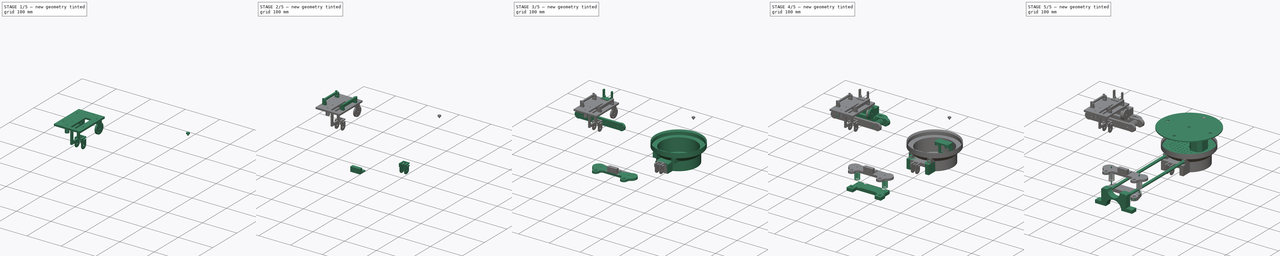
[diagram: build sequence overview — one tinted view per stage of 5, left to right]
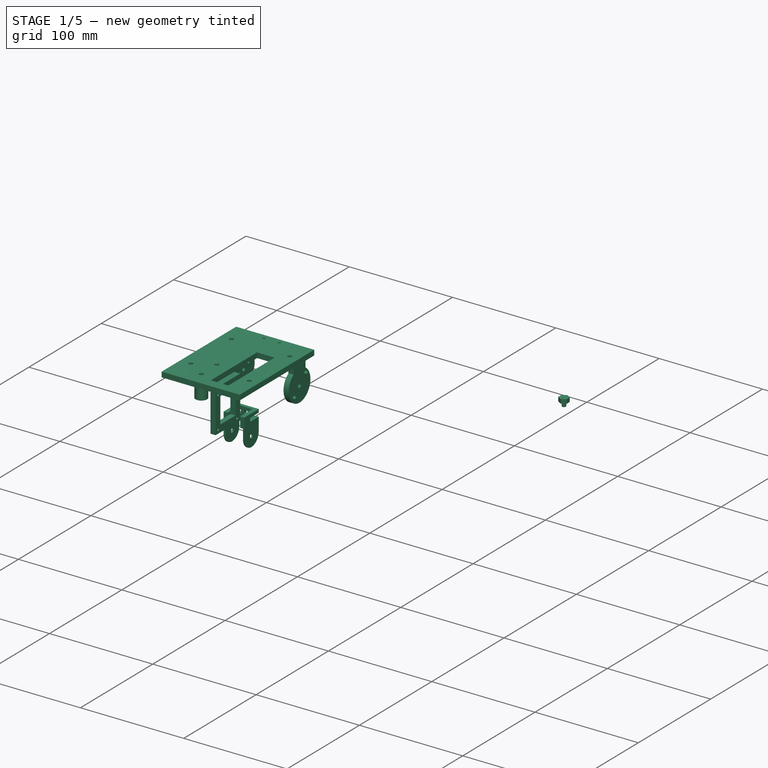
[diagram: stage 1 of 5 — iso view after this stage's code; geometry added in this stage tinted green]
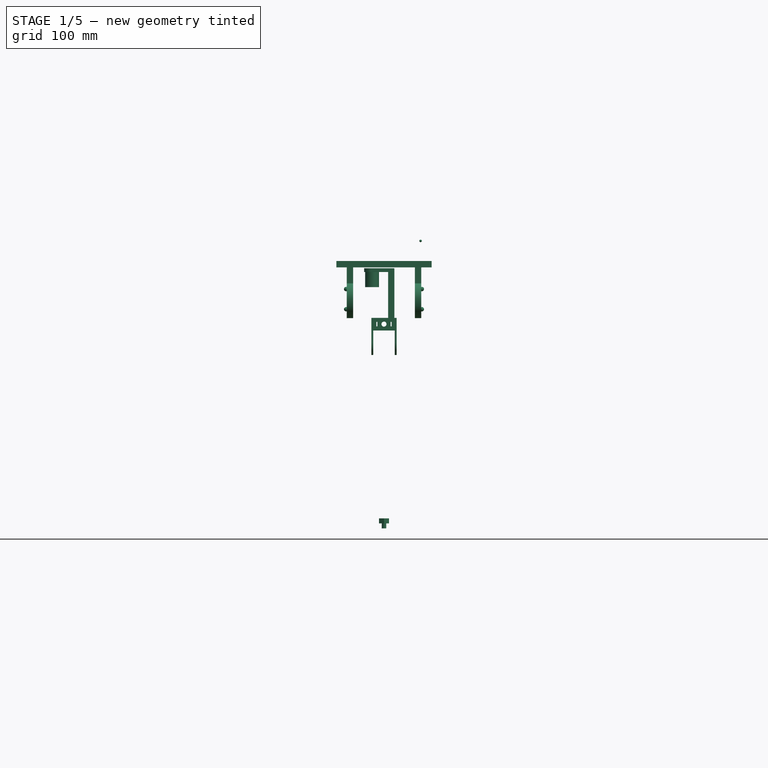
[diagram: stage 1 of 5 — front view after this stage's code; geometry added in this stage tinted green]
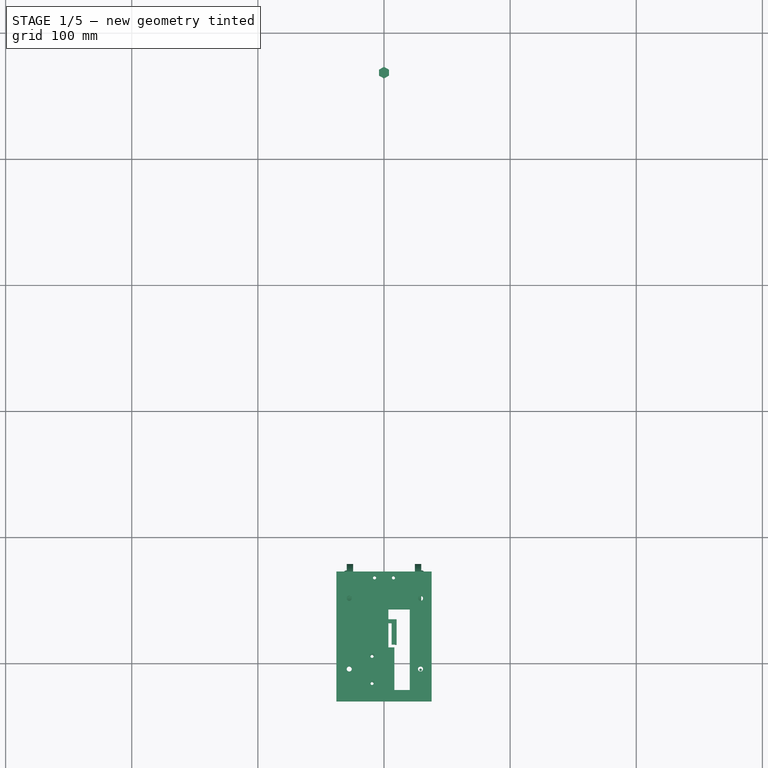
[diagram: stage 1 of 5 — top view after this stage's code; geometry added in this stage tinted green]
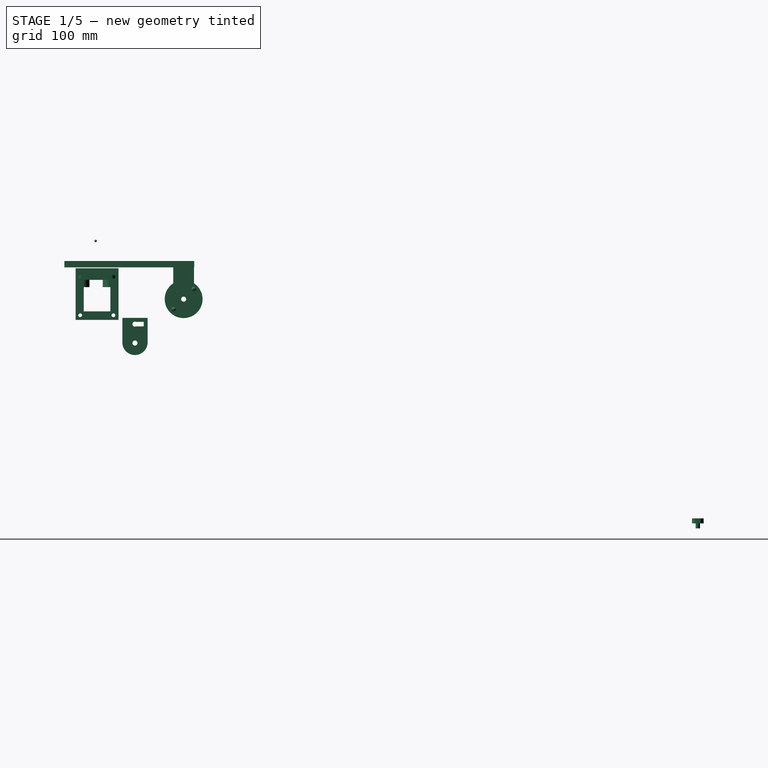
[diagram: stage 1 of 5 — right view after this stage's code; geometry added in this stage tinted green]
FCSTD DOCUMENT  (FreeCAD 0.16R6344 (Git))
Label: scanner3D
License: All rights reserved
LicenseURL: http://fr.wikipedia.org/wiki/<copyright redacted>
objects: Sketcher::SketchObject×111, PartDesign::Pad×64, App::DocumentObjectGroup×51, PartDesign::Pocket×47, Part::FeaturePython×28, Part::MultiFuse×18, Part::Cut×15, PartDesign::Fillet×11, Part::Sphere×10, Part::Feature×8, Part::Part2DObjectPython×8, PartDesign::Chamfer×5, PartDesign::Revolution×3, Part::Plane×1, Part::Mirroring×1
note: 444 computed .brp shape members not serialized (recipe doc carries the construction recipe); baked Part::Feature solids carry a one-line shape summary decoded from their .brp

FEATURE [App::DocumentObjectGroup] Groupe027  label="SGR_moveUpMid"
  Group = -> [Clone011,Pad034,Pad035,Pocket017]
FEATURE [Part::Sphere] Sphere001  label="Sphère001"
  Angle1 = -90
  Angle2 = 90
  Angle3 = 360
  Radius = 1.75
FEATURE [Part::FeaturePython] Array001  # Draft array (typed FeaturePython)
  Angle = 360
  ArrayType = 1
  Axis = (1,0,0)
  Base = -> Sphere001
  Center = (0,-8,-8)
  Fuse = false
  IntervalAxis = (0,0,0)
  IntervalX = (1,0,0)
  IntervalY = (0,1,0)
  IntervalZ = (0,0,0)
  NumberPolar = 2
  NumberX = 1
  NumberY = 1
  NumberZ = 1
  Placement = pos=(30,-331.2,257.8) rot=(0,0,1;0rad)
FEATURE [Part::FeaturePython] Clone018  label="Clone of Array001"  # Draft clone (typed FeaturePython)
  Objects = -> [Array001]
  Placement = pos=(-30,-331.2,257.8) rot=(0,0,1;0rad)
  Scale = (1,1,1)
FEATURE [Part::MultiFuse] Fusion007
  Shapes = -> [Array001,Clone018]
FEATURE [Sketcher::SketchObject] Sketch060
  Placement = pos=(0,0,275) rot=(0,0,1;0rad)
  sketch-geometry (4):
    g0: LineSegment StartX=-65 StartY=-330.721 StartZ=0 EndX=65 EndY=-330.721 EndZ=0
    g1: LineSegment StartX=65 StartY=-330.721 StartZ=0 EndX=65 EndY=-433.721 EndZ=0
    g2: LineSegment StartX=65 StartY=-433.721 StartZ=0 EndX=-65 EndY=-433.721 EndZ=0
    g3: LineSegment StartX=-65 StartY=-433.721 StartZ=0 EndX=-65 EndY=-330.721 EndZ=0
  constraints (12):
    c: Coincident(g0,g1)
    c: Coincident(g1,g2)
    c: Coincident(g2,g3)
    c: Coincident(g3,g0)
    c: Horizontal(g0)
    c: Horizontal(g2)
    c: Vertical(g1)
    c: Vertical(g3)
    c: Symmetric(g0,g0,g-2)
    c: Distance(g2) = 130
    c: Distance(g1) = 103
    c: DistanceY(g0) = -330.721
FEATURE [PartDesign::Pad] Pad040  label="supportRpi001"
  Length = 5
  Length2 = 100
  Placement = pos=(0,0,275) rot=(0,0,1;0rad)
  Sketch = -> Sketch060
  Type = 0
FEATURE [Sketcher::SketchObject] Sketch061
  Placement = pos=(29.5,0,0) rot=(0.57735,0.57735,0.57735;2.0944rad)
  sketch-geometry (5):
    g0: LineSegment StartX=-330.93 StartY=276 StartZ=0 EndX=-347.43 EndY=276 EndZ=0
    g1: LineSegment StartX=-347.43 StartY=276 StartZ=0 EndX=-347.43 EndY=262.3 EndZ=0
    g2: LineSegment StartX=-330.93 StartY=262.3 StartZ=0 EndX=-330.93 EndY=276 EndZ=0
    g3: ArcOfCircle CenterX=-339.18 CenterY=249.773 CenterZ=0 NormalX=0 NormalY=0 NormalZ=1 Radius=15 StartAngle=2.15316 EndAngle=7.27162
    g4: Circle CenterX=-339.18 CenterY=249.773 CenterZ=0 NormalX=0 NormalY=0 NormalZ=1 Radius=2
  constraints (15):
    c: Coincident(g0,g1)
    c: Coincident(g2,g0)
    c: Horizontal(g0)
    c: Vertical(g1)
    c: Vertical(g2)
    c: Distance(g0,g2) = 16.5
    c: Radius(g3) = 15
    c: Equal(g1,g2)
    c: DistanceX(g0) = -330.93
    c: DistanceY(g0) = 276
    c: Coincident(g3,g1)
    c: Coincident(g3,g2)
    c: DistanceY(g1) = -13.7
    c: Coincident(g4,g3)
    c: Radius(g4) = 2
FEATURE [PartDesign::Pad] Pad041
  Length = 59
  Length2 = 100
  Placement = pos=(29.5,0,0) rot=(0.57735,0.57735,0.57735;2.0944rad)
  Reversed = true
  Sketch = -> Sketch061
  Type = 0
FEATURE [Part::MultiFuse] Fusion008  label="supportRpi002"
  Shapes = -> [Pad040,Pad041]
FEATURE [Sketcher::SketchObject] Sketch062
  ExternalGeometry = -> [Fusion008]
  Placement = pos=(0,-433.721,0) rot=(1,0,0;1.5708rad)
  Support = -> Fusion008 [Face6]
  sketch-geometry (5):
    g0: GeomPoint [constr] X=0 Y=275 Z=0
    g1: LineSegment StartX=-24.5 StartY=275 StartZ=0 EndX=24.5 EndY=275 EndZ=0
    g2: LineSegment StartX=24.5 StartY=275 StartZ=0 EndX=24.5 EndY=205 EndZ=0
    g3: LineSegment StartX=24.5 StartY=205 StartZ=0 EndX=-24.5 EndY=205 EndZ=0
    g4: LineSegment StartX=-24.5 StartY=205 StartZ=0 EndX=-24.5 EndY=275 EndZ=0
  constraints (14):
    c: Symmetric(g-3,g-3,g0)
    c: Coincident(g1,g2)
    c: Coincident(g2,g3)
    c: Coincident(g3,g4)
    c: Coincident(g4,g1)
    c: Horizontal(g1)
    c: Horizontal(g3)
    c: Vertical(g2)
    c: Vertical(g4)
    c: PointOnObject(g1,g-3)
    c: Distance(g3) = 49
    c: Symmetric(g1,g1,g0)
    c: DistanceY(g1) = 275
    c: Distance(g4) = 70
FEATURE [PartDesign::Pocket] Pocket018  label="supportRpi003"
  Length = 5
  Sketch = -> Sketch062
  Type = 1
FEATURE [Part::MultiFuse] Fusion009  label="supportRpi004"
  Shapes = -> [Pocket018,Fusion007]
FEATURE [Sketcher::SketchObject] Sketch063
  ExternalGeometry = -> [Fusion009]
  Placement = pos=(0,0,280) rot=(0,0,1;0rad)
  Support = -> Fusion009 [Face4]
  sketch-geometry (8):
    g0: LineSegment StartX=-85.8035 StartY=-328.721 StartZ=0 EndX=-37.7776 EndY=-328.721 EndZ=0
    g1: LineSegment StartX=-37.7776 StartY=-328.721 StartZ=0 EndX=-37.7776 EndY=-448.721 EndZ=0
    g2: LineSegment StartX=-37.7776 StartY=-448.721 StartZ=0 EndX=-85.8035 EndY=-448.721 EndZ=0
    g3: LineSegment StartX=-85.8035 StartY=-448.721 StartZ=0 EndX=-85.8035 EndY=-328.721 EndZ=0
    g4: LineSegment StartX=85.8035 StartY=-328.721 StartZ=0 EndX=37.7776 EndY=-328.721 EndZ=0
    g5: LineSegment StartX=37.7776 StartY=-328.721 StartZ=0 EndX=37.7776 EndY=-448.721 EndZ=0
    g6: LineSegment StartX=37.7776 StartY=-448.721 StartZ=0 EndX=85.8035 EndY=-448.721 EndZ=0
    g7: LineSegment StartX=85.8035 StartY=-448.721 StartZ=0 EndX=85.8035 EndY=-328.721 EndZ=0
  constraints (22):
    c: Coincident(g0,g1)
    c: Coincident(g1,g2)
    c: Coincident(g2,g3)
    c: Coincident(g3,g0)
    c: Horizontal(g0)
    c: Horizontal(g2)
    c: Vertical(g1)
    c: Vertical(g3)
    c: Coincident(g4,g5)
    c: Coincident(g5,g6)
    c: Coincident(g6,g7)
    c: Coincident(g7,g4)
    c: Horizontal(g4)
    c: Horizontal(g6)
    c: Vertical(g5)
    c: Vertical(g7)
    c: PointOnObject(g4,g0)
    c: Symmetric(g0,g4,g-2)
    c: Equal(g1,g5)
    c: Equal(g0,g4)
    c: Distance(g0,g-3) = 2
    c: Distance(g1) = 120
FEATURE [PartDesign::Pocket] Pocket019  label="supportRpi005"
  Length = 5
  Sketch = -> Sketch063
  Type = 1
FEATURE [Sketcher::SketchObject] Sketch072
  Placement = pos=(0,0,280.017) rot=(1,0,0;3.14159rad)
  sketch-geometry (2):
    g0: Circle CenterX=28.9698 CenterY=408 CenterZ=0 NormalX=0 NormalY=0 NormalZ=1 Radius=2
    g1: Circle CenterX=28.9698 CenterY=352 CenterZ=0 NormalX=0 NormalY=0 NormalZ=1 Radius=2
  constraints (6):
    c: Radius(g0) = 2
    c: Equal(g0,g1)
    c: DistanceX(g1) = 28.9698
    c: DistanceY(g1) = 352
    c: DistanceX(g0) = 28.9698
    c: DistanceY(g0) = 408
FEATURE [Sketcher::SketchObject] Sketch073
  Placement = pos=(1.4,0,280.017) rot=(1,0,0;3.14159rad)
  sketch-geometry (2):
    g0: Circle CenterX=-28.9698 CenterY=408 CenterZ=0 NormalX=0 NormalY=0 NormalZ=1 Radius=2
    g1: Circle CenterX=-28.9698 CenterY=352 CenterZ=0 NormalX=0 NormalY=0 NormalZ=1 Radius=2
  constraints (6):
    c: DistanceX(g1) = -28.9698
    c: DistanceY(g1) = 352
    c: DistanceX(g0) = -28.9698
    c: DistanceY(g0) = 408
    c: Radius(g1) = 2
    c: Equal(g1,g0)
FEATURE [PartDesign::Pad] Pad047
  Length = 30
  Length2 = 100
  Midplane = true
  Placement = pos=(0,0,280.017) rot=(1,0,0;3.14159rad)
  Sketch = -> Sketch072
  Type = 0
FEATURE [PartDesign::Pad] Pad048
  Length = 30
  Length2 = 100
  Midplane = true
  Placement = pos=(1.4,0,280.017) rot=(1,0,0;3.14159rad)
  Sketch = -> Sketch073
  Type = 0
FEATURE [Part::MultiFuse] Fusion014  label="trouDeVis"
  Shapes = -> [Pad047,Pad048]
FEATURE [Part::Cut] Cut012  label="supportRpi006"
  Base = -> Pocket019
  Tool = -> Fusion014
FEATURE [Sketcher::SketchObject] Sketch080
  Placement = pos=(0,0,283) rot=(0,0,1;0rad)
  sketch-geometry (2):
    g0: Circle CenterX=-7.5 CenterY=-335.722 CenterZ=0 NormalX=0 NormalY=0 NormalZ=1 Radius=1.25
    g1: Circle CenterX=7.5 CenterY=-335.722 CenterZ=0 NormalX=0 NormalY=0 NormalZ=1 Radius=1.25
  constraints (6):
    c: Radius(g1) = 1.25
    c: Equal(g1,g0)
    c: DistanceX(g0) = -7.5
    c: DistanceY(g0) = -335.722
    c: DistanceX(g1) = 7.5
    c: DistanceY(g1) = -335.722
FEATURE [PartDesign::Pad] Pad052
  Length = 30
  Length2 = 100
  Midplane = true
  Placement = pos=(0,0,283) rot=(0,0,1;0rad)
  Sketch = -> Sketch080
  Type = 0
FEATURE [Part::Cut] Cut014  label="supportRpi007"
  Base = -> Cut012
  Tool = -> Pad052
FEATURE [Part::Sphere] Sphere009  label="Sphère009"
  Angle1 = -90
  Angle2 = 90
  Angle3 = 360
  Placement = pos=(29,-409,296) rot=(0,0,1;0rad)
  Radius = 1
FEATURE [App::DocumentObjectGroup] Groupe033  label="SGR_fixRpiDte"
  Group = -> [Pad042,Fusion011,Pad044,Fusion013,Pocket020,Pad046,Pocket022,Chamfer003,Pocket024,Pocket029,Fusion018]
FEATURE [Part::Feature] Part__Feature008  label="MayonBas001"
  Placement = pos=(-9.892e-09,-186.507,0) rot=(0,0,1;0rad)
  shape: bbox 50.65 x 20.2 x 21.65 mm, 62 faces (baked)
FEATURE [Sketcher::SketchObject] Sketch102
  Placement = pos=(-9.892e-09,-186.507,10) rot=(0,0,1;0rad)
  Support = -> Part__Feature008 [Face15]
  sketch-geometry (1):
    g0: Circle CenterX=0 CenterY=0 CenterZ=0 NormalX=0 NormalY=0 NormalZ=1 Radius=2
  constraints (3):
    c: PointOnObject(g0,g-1)
    c: PointOnObject(g0,g-2)
    c: Radius(g0) = 2
FEATURE [PartDesign::Pocket] Pocket039  label="MayonBas002"
  Length = 5
  Placement = pos=(-9.892e-09,-186.507,0) rot=(0,0,1;0rad)
  Sketch = -> Sketch102
  Type = 0
FEATURE [Sketcher::SketchObject] Sketch103
  Placement = pos=(-9.892e-09,-186.507,10) rot=(0,0,1;0rad)
  Support = -> Pocket039 [Face10]
  sketch-geometry (8):
    g0: LineSegment StartX=-1.75 StartY=15.2261 StartZ=0 EndX=1.75 EndY=15.2261 EndZ=0
    g1: LineSegment StartX=1.75 StartY=15.2261 StartZ=0 EndX=1.75 EndY=5.22606 EndZ=0
    g2: LineSegment StartX=1.75 StartY=5.22606 StartZ=0 EndX=-1.75 EndY=5.22606 EndZ=0
    g3: LineSegment StartX=-1.75 StartY=5.22606 StartZ=0 EndX=-1.75 EndY=15.2261 EndZ=0
    g4: LineSegment StartX=1.75 StartY=-15.2261 StartZ=0 EndX=-1.75 EndY=-15.2261 EndZ=0
    g5: LineSegment StartX=-1.75 StartY=-15.2261 StartZ=0 EndX=-1.75 EndY=-5.22606 EndZ=0
    g6: LineSegment StartX=-1.75 StartY=-5.22606 StartZ=0 EndX=1.75 EndY=-5.22606 EndZ=0
    g7: LineSegment StartX=1.75 StartY=-5.22606 StartZ=0 EndX=1.75 EndY=-15.2261 EndZ=0
  constraints (23):
    c: Coincident(g0,g1)
    c: Coincident(g1,g2)
    c: Coincident(g2,g3)
    c: Coincident(g3,g0)
    c: Horizontal(g0)
    c: Horizontal(g2)
    c: Vertical(g1)
    c: Vertical(g3)
    c: Coincident(g4,g5)
    c: Coincident(g5,g6)
    c: Coincident(g6,g7)
    c: Coincident(g7,g4)
    c: Horizontal(g4)
    c: Horizontal(g6)
    c: Vertical(g5)
    c: Vertical(g7)
    c: Symmetric(g5,g6,g-2)
    c: Symmetric(g2,g1,g-2)
    c: Symmetric(g5,g2,g-1)
    c: Equal(g2,g6)
    c: Distance(g0) = 3.5
    c: Equal(g1,g7)
    c: Distance(g1) = 10
FEATURE [PartDesign::Pocket] Pocket040  label="MayonBas003"
  Length = 10
  Placement = pos=(-9.892e-09,-186.507,0) rot=(0,0,1;0rad)
  Sketch = -> Sketch103
  Type = 0
FEATURE [Sketcher::SketchObject] Sketch104  label="MayonBas004"
  ExternalGeometry = -> [Pocket040]
  Placement = pos=(-5,-186.507,0) rot=(0.57735,-0.57735,-0.57735;2.0944rad)
  Support = -> Pocket040 [Face7]
  sketch-geometry (4):
    g0: LineSegment StartX=-6 StartY=-3.96509 StartZ=0 EndX=6 EndY=-3.96509 EndZ=0
    g1: LineSegment StartX=6 StartY=-3.96509 StartZ=0 EndX=6 EndY=-23.0273 EndZ=0
    g2: LineSegment StartX=6 StartY=-23.0273 StartZ=0 EndX=-6 EndY=-23.0273 EndZ=0
    g3: LineSegment StartX=-6 StartY=-23.0273 StartZ=0 EndX=-6 EndY=-3.96509 EndZ=0
  constraints (10):
    c: Coincident(g0,g1)
    c: Coincident(g1,g2)
    c: Coincident(g2,g3)
    c: Coincident(g3,g0)
    c: Horizontal(g0)
    c: Horizontal(g2)
    c: Vertical(g1)
    c: Vertical(g3)
    c: PointOnObject(g0,g-4)
    c: PointOnObject(g0,g-3)
FEATURE [PartDesign::Pocket] Pocket041  label="MayonBas005"
  Length = 5
  Placement = pos=(-9.892e-09,-186.507,0) rot=(0,0,1;0rad)
  Sketch = -> Sketch104
  Type = 1
FEATURE [App::DocumentObjectGroup] Groupe041  label="SGR_equerreTransition"
  Group = -> [Pad062,Pad063,Pocket043]
FEATURE [Part::FeaturePython] Clone020  label="mayonTransition001"  # Draft clone (typed FeaturePython)
  Objects = -> [Pocket041]
  Placement = pos=(0.000309453,-320.57,63) rot=(0.57735,0.57735,0.57735;4.18879rad)
  Scale = (1,1,1)
FEATURE [Sketcher::SketchObject] Sketch109
  ExternalGeometry = -> [Clone020]
  Placement = pos=(0.000309453,-330.57,63) rot=(0.57735,-0.57735,0.57735;2.0944rad)
  Support = -> Clone020 [Face49]
  sketch-geometry (4):
    g0: LineSegment StartX=-25 StartY=6 StartZ=0 EndX=-5 EndY=6 EndZ=0
    g1: LineSegment StartX=-5 StartY=6 StartZ=0 EndX=-5 EndY=-6 EndZ=0
    g2: LineSegment StartX=-5 StartY=-6 StartZ=0 EndX=-25 EndY=-6 EndZ=0
    g3: LineSegment StartX=-25 StartY=-6 StartZ=0 EndX=-25 EndY=6 EndZ=0
  constraints (11):
    c: Coincident(g0,g1)
    c: Coincident(g1,g2)
    c: Coincident(g2,g3)
    c: Coincident(g3,g0)
    c: Horizontal(g0)
    c: Horizontal(g2)
    c: Vertical(g1)
    c: Vertical(g3)
    c: Coincident(g0,g-3)
    c: Coincident(g1,g-4)
    c: Distance(g0) = 20
FEATURE [PartDesign::Pocket] Pocket044  label="mayonTransition002"
  Length = 5
  Placement = pos=(0.000309453,-320.57,63) rot=(0.57735,0.57735,0.57735;4.18879rad)
  Sketch = -> Sketch109
  Type = 1
FEATURE [App::DocumentObjectGroup] Groupe042  label="SGR_mayonTransition"
  Group = -> [Clone020,Pocket044]
FEATURE [App::DocumentObjectGroup] Groupe043  label="GR_fixRpi"
  Group = -> [Groupe034,Groupe033]
FEATURE [Part::Feature] Part__Feature009  label="RJ9_PCB"
  Placement = pos=(-28.5183,-15.8435,-24.6436) rot=(0.57735,0.57735,0.57735;2.0944rad)
  shape: bbox 15.42 x 31.22 x 35.39 mm, 516 faces (baked)
FEATURE [App::DocumentObjectGroup] Groupe044  label="GR_RJ9_PCB"
  Group = -> [Part__Feature009]
FEATURE [App::DocumentObjectGroup] Groupe  label="accessoires"
  Group = -> [Groupe007,Groupe008,Groupe014,Groupe016,Groupe019,Groupe021,Groupe022,Groupe023,Groupe031,Groupe035,Groupe044]
FEATURE [Sketcher::SketchObject] Sketch110
  Placement = pos=(0,0,15.1) rot=(1,0,0;3.14159rad)
  sketch-geometry (6):
    g0: LineSegment StartX=-52 StartY=17 StartZ=0 EndX=-28 EndY=17 EndZ=0
    g1: LineSegment StartX=-28 StartY=17 StartZ=0 EndX=-28 EndY=-17 EndZ=0
    g2: LineSegment StartX=-28 StartY=-17 StartZ=0 EndX=-52 EndY=-17 EndZ=0
    g3: LineSegment StartX=-52 StartY=-17 StartZ=0 EndX=-52 EndY=17 EndZ=0
    g4: Circle CenterX=-45.73 CenterY=11.54 CenterZ=0 NormalX=0 NormalY=0 NormalZ=1 Radius=1.25
    g5: Circle CenterX=-45.73 CenterY=-9.98 CenterZ=0 NormalX=0 NormalY=0 NormalZ=1 Radius=1.25
  constraints (18):
    c: Coincident(g0,g1)
    c: Coincident(g1,g2)
    c: Coincident(g2,g3)
    c: Coincident(g3,g0)
    c: Horizontal(g0)
    c: Horizontal(g2)
    c: Vertical(g1)
    c: Vertical(g3)
    c: Symmetric(g2,g0,g-1)
    c: Distance(g0) = 24
    c: Distance(g3) = 34
    c: DistanceX(g-2,g0) = -28
    c: DistanceX(g5) = -45.73
    c: DistanceY(g5) = -9.98
    c: DistanceX(g4) = -45.73
    c: DistanceY(g4) = 11.54
    c: Radius(g4) = 1.25
    c: Equal(g4,g5)
FEATURE [PartDesign::Pad] Pad064  label="fixRJ9brd_001"
  Length = 3
  Length2 = 100
  Placement = pos=(0,0,15.1) rot=(1,0,0;3.14159rad)
  Sketch = -> Sketch110
  Type = 0
FEATURE [Sketcher::SketchObject] Sketch111
  ExternalGeometry = -> [Pad064]
  Placement = pos=(0,0,12.1) rot=(1,0,0;3.14159rad)
  Support = -> Pad064 [Face8]
  sketch-geometry (4):
    g0: LineSegment StartX=-28 StartY=17 StartZ=0 EndX=-33 EndY=17 EndZ=0
    g1: LineSegment StartX=-33 StartY=17 StartZ=0 EndX=-33 EndY=-17 EndZ=0
    g2: LineSegment StartX=-33 StartY=-17 StartZ=0 EndX=-28 EndY=-17 EndZ=0
    g3: LineSegment StartX=-28 StartY=-17 StartZ=0 EndX=-28 EndY=17 EndZ=0
  constraints (11):
    c: Coincident(g0,g1)
    c: Coincident(g1,g2)
    c: Coincident(g2,g3)
    c: Coincident(g3,g0)
    c: Horizontal(g0)
    c: Horizontal(g2)
    c: Vertical(g1)
    c: Vertical(g3)
    c: Coincident(g0,g-3)
    c: Coincident(g2,g-4)
    c: Distance(g0,g0) = 5
FEATURE [PartDesign::Pad] Pad065  label="fixRJ9brd_002"
  Length = 38
  Length2 = 100
  Placement = pos=(0,0,15.1) rot=(1,0,0;3.14159rad)
  Sketch = -> Sketch111
  Type = 0
FEATURE [Sketcher::SketchObject] Sketch112
  ExternalGeometry = -> [Pad065]
  Placement = pos=(0,0,12.1) rot=(1,0,0;3.14159rad)
  Support = -> Pad065 [Face5]
  sketch-geometry (4):
    g0: Circle CenterX=-45.73 CenterY=11.54 CenterZ=0 NormalX=0 NormalY=0 NormalZ=1 Radius=5.5
    g1: Circle CenterX=-45.73 CenterY=-9.98 CenterZ=0 NormalX=0 NormalY=0 NormalZ=1 Radius=5.5
    g2: Circle CenterX=-45.73 CenterY=11.54 CenterZ=0 NormalX=0 NormalY=0 NormalZ=1 Radius=1.25
    g3: Circle CenterX=-45.73 CenterY=-9.98 CenterZ=0 NormalX=0 NormalY=0 NormalZ=1 Radius=1.25
  constraints (8):
    c: Coincident(g1,g-4)
    c: Coincident(g0,g-3)
    c: Radius(g0) = 5.5
    c: Equal(g0,g1)
    c: Coincident(g3,g1)
    c: Coincident(g2,g0)
    c: Equal(g2,g-3)
    c: Equal(g-3,g3)
FEATURE [PartDesign::Pad] Pad066  label="fixRJ9brd_003"
  Length = 12
  Length2 = 100
  Placement = pos=(0,0,15.1) rot=(1,0,0;3.14159rad)
  Sketch = -> Sketch112
  Type = 0
FEATURE [PartDesign::Fillet] Fillet010  label="fixRJ9brd_004"
  Base = -> Pad066 [Edge2,Edge1]
  Placement = pos=(0,0,15.1) rot=(1,0,0;3.14159rad)
  Radius = 5.6
FEATURE [Sketcher::SketchObject] Sketch113
  Placement = pos=(-28,0,15.1) rot=(0.57735,-0.57735,0.57735;4.18879rad)
  Support = -> Fillet010 [Face17]
  sketch-geometry (4):
    g0: LineSegment StartX=-10.5449 StartY=34.1942 StartZ=0 EndX=10.5449 EndY=34.1942 EndZ=0
    g1: LineSegment StartX=10.5449 StartY=34.1942 StartZ=0 EndX=10.5449 EndY=9.19416 EndZ=0
    g2: LineSegment StartX=10.5449 StartY=9.19416 StartZ=0 EndX=-10.5449 EndY=9.19416 EndZ=0
    g3: LineSegment StartX=-10.5449 StartY=9.19416 StartZ=0 EndX=-10.5449 EndY=34.1942 EndZ=0
  constraints (12):
    c: Coincident(g0,g1)
    c: Coincident(g1,g2)
    c: Coincident(g2,g3)
    c: Coincident(g3,g0)
    c: Horizontal(g0)
    c: Horizontal(g2)
    c: Vertical(g1)
    c: Vertical(g3)
    c: Symmetric(g0,g0,g-2)
    c: DistanceX(g2) = -10.5449
    c: DistanceY(g2) = 9.19416
    c: Distance(g3) = 25
FEATURE [PartDesign::Pocket] Pocket045  label="fixRJ9brd_005"
  Length = 5
  Placement = pos=(0,0,15.1) rot=(1,0,0;3.14159rad)
  Sketch = -> Sketch113
  Type = 0
FEATURE [Sketcher::SketchObject] Sketch114
  Placement = pos=(-26.8883,-15.8435,-24.6436) rot=(0.57735,0.57735,0.57735;2.0944rad)
  sketch-geometry (4):
    g0: Circle CenterX=2.45 CenterY=32.94 CenterZ=0 NormalX=0 NormalY=0 NormalZ=1 Radius=1.5
    g1: Circle CenterX=2.45 CenterY=2.45 CenterZ=0 NormalX=0 NormalY=0 NormalZ=1 Radius=1.5
    g2: Circle CenterX=28.77 CenterY=2.45 CenterZ=0 NormalX=0 NormalY=0 NormalZ=1 Radius=1.5
    g3: Circle CenterX=28.77 CenterY=32.94 CenterZ=0 NormalX=0 NormalY=0 NormalZ=1 Radius=1.5
  constraints (12):
    c: Radius(g0) = 1.5
    c: Equal(g0,g3)
    c: Equal(g0,g2)
    c: Equal(g0,g1)
    c: DistanceX(g0) = 2.45
    c: DistanceY(g0) = 32.94
    c: DistanceX(g3) = 28.77
    c: DistanceY(g3) = 32.94
    c: DistanceX(g2) = 28.77
    c: DistanceY(g2) = 2.45
    c: DistanceX(g1) = 2.45
    c: DistanceY(g1) = 2.45
FEATURE [PartDesign::Pad] Pad067
  Length = 25
  Length2 = 100
  Midplane = true
  Placement = pos=(-26.8883,-15.8435,-24.6436) rot=(0.57735,0.57735,0.57735;2.0944rad)
  Sketch = -> Sketch114
  Type = 0
FEATURE [Part::Cut] Cut016  label="fixRJ9brd_006"
  Base = -> Pocket045
  Tool = -> Pad067
FEATURE [Part::FeaturePython] Clone021  label="Clone of fixRJ9brd_006"  # Draft clone (typed FeaturePython)
  Objects = -> [Cut016]
  Placement = pos=(36.2656,-407.81,259.201) rot=(0,0,1;0rad)
  Scale = (1,1,1)
FEATURE [Sketcher::SketchObject] Sketch115
  ExternalGeometry = -> [Cut014]
  Placement = pos=(0,0,275) rot=(1,0,0;3.14159rad)
  Support = -> Cut014 [Face10]
  sketch-geometry (4):
    g0: LineSegment StartX=3.44814 StartY=424.712 StartZ=0 EndX=20.4481 EndY=424.712 EndZ=0
    g1: LineSegment StartX=20.4481 StartY=424.712 StartZ=0 EndX=20.4481 EndY=360.712 EndZ=0
    g2: LineSegment StartX=20.4481 StartY=360.712 StartZ=0 EndX=3.44814 EndY=360.712 EndZ=0
    g3: LineSegment StartX=3.44814 StartY=360.712 StartZ=0 EndX=3.44814 EndY=424.712 EndZ=0
  constraints (12):
    c: Coincident(g0,g1)
    c: Coincident(g1,g2)
    c: Coincident(g2,g3)
    c: Coincident(g3,g0)
    c: Horizontal(g0)
    c: Horizontal(g2)
    c: Vertical(g1)
    c: Vertical(g3)
    c: DistanceX(g2) = 3.44814
    c: DistanceY(g2) = 360.712
    c: Distance(g2) = 17
    c: Distance(g1) = 64
FEATURE [PartDesign::Pocket] Pocket046  label="supportRpi008"
  Length = 5
  Sketch = -> Sketch115
  Type = 1
FEATURE [Sketcher::SketchObject] Sketch116
  Placement = pos=(36.2656,-407.81,259.301) rot=(1,0,0;3.14159rad)
  sketch-geometry (2):
    g0: Circle CenterX=-45.73 CenterY=11.54 CenterZ=0 NormalX=0 NormalY=0 NormalZ=1 Radius=2
    g1: Circle CenterX=-45.73 CenterY=-9.98 CenterZ=0 NormalX=0 NormalY=0 NormalZ=1 Radius=2
  constraints (6):
    c: Radius(g0) = 2
    c: Equal(g0,g1)
    c: DistanceX(g0) = -45.73
    c: DistanceY(g0) = 11.54
    c: DistanceX(g1) = -45.73
    c: DistanceY(g1) = -9.98
FEATURE [PartDesign::Pad] Pad068
  Length = 50
  Length2 = 100
  Midplane = true
  Placement = pos=(36.2656,-407.81,259.301) rot=(1,0,0;3.14159rad)
  Sketch = -> Sketch116
  Type = 0
FEATURE [Part::Cut] Cut017  label="supportRpi009"
  Base = -> Pocket046
  Tool = -> Pad068
FEATURE [App::DocumentObjectGroup] Groupe032  label="GR_supportRpi"
  Group = -> [Fusion008,Fusion009,Cut014,Cut017]
FEATURE [App::DocumentObjectGroup] Groupe046  label="SGR_fixRJ9brdBase"
  Group = -> [Pad064,Pad065,Pad066,Fillet010,Cut016]
FEATURE [App::DocumentObjectGroup] Groupe047  label="SGR_fixRJ9Pi"
  Group = -> [Clone021]
FEATURE [App::DocumentObjectGroup] Groupe045  label="GR_fixRJ9brd"
  Group = -> [Groupe046,Groupe047]
FEATURE [Part::FeaturePython] Clone022  label="mayonTransitionHaut001"  # Draft clone (typed FeaturePython)
  Objects = -> [Pocket044]
  Placement = pos=(6.35077e-05,-377.778,229.965) rot=(0.57735,0.57735,0.57735;4.18879rad)
  Scale = (1,1,1)
FEATURE [Sketcher::SketchObject] Sketch117
  ExternalGeometry = -> [Clone022]
  Placement = pos=(6.35077e-05,-387.778,229.965) rot=(0.57735,-0.57735,0.57735;2.0944rad)
  Support = -> Clone022 [Face15]
  sketch-geometry (4):
    g0: LineSegment StartX=5 StartY=17.5 StartZ=0 EndX=25 EndY=17.5 EndZ=0
    g1: LineSegment StartX=25 StartY=17.5 StartZ=0 EndX=25 EndY=-17.5 EndZ=0
    g2: LineSegment StartX=25 StartY=-17.5 StartZ=0 EndX=5 EndY=-17.5 EndZ=0
    g3: LineSegment StartX=5 StartY=-17.5 StartZ=0 EndX=5 EndY=17.5 EndZ=0
  constraints (12):
    c: Coincident(g0,g1)
    c: Coincident(g1,g2)
    c: Coincident(g2,g3)
    c: Coincident(g3,g0)
    c: Horizontal(g0)
    c: Horizontal(g2)
    c: Vertical(g1)
    c: Vertical(g3)
    c: PointOnObject(g-3,g3)
    c: Symmetric(g0,g1,g-1)
    c: Distance(g1) = 35
    c: Distance(g0) = 20
FEATURE [PartDesign::Pocket] Pocket047  label="mayonTransitionHaut002"
  Length = 5
  Placement = pos=(6.35077e-05,-377.778,229.965) rot=(0.57735,0.57735,0.57735;4.18879rad)
  Sketch = -> Sketch117
  Type = 1
FEATURE [App::DocumentObjectGroup] Groupe048  label="SGR_mayonTransitionHaut"
  Group = -> [Clone022,Pocket047]
FEATURE [App::DocumentObjectGroup] Groupe038  label="GR_mayon"
  Group = -> [Groupe039,Groupe040,Groupe041,Groupe042,Groupe048]
FEATURE [Sketcher::SketchObject] Sketch118
  Placement = pos=(0,0,72) rot=(0,0,1;0rad)
  sketch-geometry (1):
    g0: Circle CenterX=0 CenterY=68.5 CenterZ=0 NormalX=0 NormalY=0 NormalZ=1 Radius=1.75
  constraints (3):
    c: DistanceX(g0) = 0
    c: DistanceY(g0) = 68.5
    c: Radius(g0) = 1.75
FEATURE [PartDesign::Pad] Pad069  label="pivotTaquet001"
  Length = 4
  Length2 = 100
  Placement = pos=(0,0,72) rot=(0,0,1;0rad)
  Reversed = true
  Sketch = -> Sketch118
  Type = 0
FEATURE [Part::FeaturePython] Clone023  label="taquetNoir001"  # Draft clone (typed FeaturePython)
  Objects = -> [Pad069]
  Placement = pos=(0,0,72) rot=(0,0,1;0rad)
  Scale = (1,1,1)
FEATURE [Part::FeaturePython] Clone024  label="taquetBlanc001"  # Draft clone (typed FeaturePython)
  Objects = -> [Pad069]
  Placement = pos=(0,0,72) rot=(0,0,1;0rad)
  Scale = (1,1,1)
FEATURE [Sketcher::SketchObject] Sketch119
  ExternalGeometry = -> [Clone023]
  Placement = pos=(0,0,72) rot=(0,0,1;0rad)
  Support = -> Clone023 [Face2]
  sketch-geometry (7):
    g0: LineSegment StartX=-3.98372 StartY=66.2 StartZ=0 EndX=0 EndY=63.9 EndZ=0
    g1: LineSegment StartX=0 StartY=63.9 StartZ=0 EndX=3.98372 EndY=66.2 EndZ=0
    g2: LineSegment StartX=3.98372 StartY=66.2 StartZ=0 EndX=3.98372 EndY=70.8 EndZ=0
    g3: LineSegment StartX=3.98372 StartY=70.8 StartZ=0 EndX=0 EndY=73.1 EndZ=0
    g4: LineSegment StartX=0 StartY=73.1 StartZ=0 EndX=-3.98372 EndY=70.8 EndZ=0
    g5: LineSegment StartX=-3.98372 StartY=70.8 StartZ=0 EndX=-3.98372 EndY=66.2 EndZ=0
    g6: Circle [constr] CenterX=0 CenterY=68.5 CenterZ=0 NormalX=0 NormalY=0 NormalZ=1 Radius=4.6
  constraints (16):
    c: Coincident(g0,g1)
    c: Coincident(g1,g2)
    c: Coincident(g2,g3)
    c: Coincident(g3,g4)
    c: Coincident(g4,g5)
    c: Coincident(g5,g0)
    c: Equal(g0, g1-g5) x5
    c: PointOnObject(g0,g6)
    c: PointOnObject(g1,g6)
    c: PointOnObject(g2,g6)
    c: PointOnObject(g3,g6)
    c: PointOnObject(g4,g6)
    c: PointOnObject(g5,g6)
    c: Vertical(g5)
    c: Coincident(g6,g-3)
    c: Radius(g6) = 4.6
FEATURE [PartDesign::Pad] Pad070  label="taquetNoir002"
  Length = 4
  Length2 = 100
  Placement = pos=(0,0,72) rot=(0,0,1;0rad)
  Sketch = -> Sketch119
  Type = 0
FEATURE [App::DocumentObjectGroup] Groupe050  label="SGR_taquetNoir"
  Group = -> [Clone023,Pad070]
FEATURE [Sketcher::SketchObject] Sketch120
  ExternalGeometry = -> [Clone024]
  Placement = pos=(0,0,72) rot=(0,0,1;0rad)
  Support = -> Clone024 [Face2]
  sketch-geometry (7):
    g0: LineSegment StartX=0 StartY=63.9 StartZ=0 EndX=3.98372 EndY=66.2 EndZ=0
    g1: LineSegment StartX=3.98372 StartY=66.2 StartZ=0 EndX=3.98372 EndY=70.8 EndZ=0
    g2: LineSegment StartX=3.98372 StartY=70.8 StartZ=0 EndX=0 EndY=73.1 EndZ=0
    g3: LineSegment StartX=0 StartY=73.1 StartZ=0 EndX=-3.98372 EndY=70.8 EndZ=0
    g4: LineSegment StartX=-3.98372 StartY=70.8 StartZ=0 EndX=-3.98372 EndY=66.2 EndZ=0
    g5: LineSegment StartX=-3.98372 StartY=66.2 StartZ=0 EndX=0 EndY=63.9 EndZ=0
    g6: Circle [constr] CenterX=0 CenterY=68.5 CenterZ=0 NormalX=0 NormalY=0 NormalZ=1 Radius=4.6
  constraints (16):
    c: Coincident(g0,g1)
    c: Coincident(g1,g2)
    c: Coincident(g2,g3)
    c: Coincident(g3,g4)
    c: Coincident(g4,g5)
    c: Coincident(g5,g0)
    c: Equal(g0, g1-g5) x5
    c: PointOnObject(g0,g6)
    c: PointOnObject(g1,g6)
    c: PointOnObject(g2,g6)
    c: PointOnObject(g3,g6)
    c: PointOnObject(g4,g6)
    c: PointOnObject(g5,g6)
    c: Coincident(g6,g-3)
    c: PointOnObject(g2,g-2)
    c: Radius(g6) = 4.6
FEATURE [PartDesign::Pad] Pad071  label="taquetBlanc002"
  Length = 2.85
  Length2 = 100
  Placement = pos=(0,0,72) rot=(0,0,1;0rad)
  Sketch = -> Sketch120
  Type = 0
FEATURE [App::DocumentObjectGroup] Groupe051  label="SGR_taquetBlanc"
  Group = -> [Clone024,Pad071]
FEATURE [App::DocumentObjectGroup] Groupe049  label="GR_taquet"
  Group = -> [Groupe050,Groupe051,Pad069]
FEATURE [App::DocumentObjectGroup] Groupe001  label="pieces"
  Group = -> [Groupe002,Groupe003,Groupe004,Groupe005,Groupe006,Groupe011,Groupe009,Groupe012,Groupe015,Groupe025,Groupe026,Groupe032,Groupe036,Groupe038,Groupe043,Groupe045,Groupe049]
FEATURE [Part::Part2DObjectPython] Shape2DView004  # Draft 2D object (typed FeaturePython)
  Base = -> Clone021
  HiddenLines = false
  Projection = (1,0,0)
  ProjectionMode = 0
  SegmentLength = 0.05
  Tessellation = false
FEATURE [App::DocumentObjectGroup] Groupe010  label="projection(DXF)"
  Group = -> [Shape2DView,Shape2DView001,Shape2DView002,Shape2DView003,Shape2DView004]
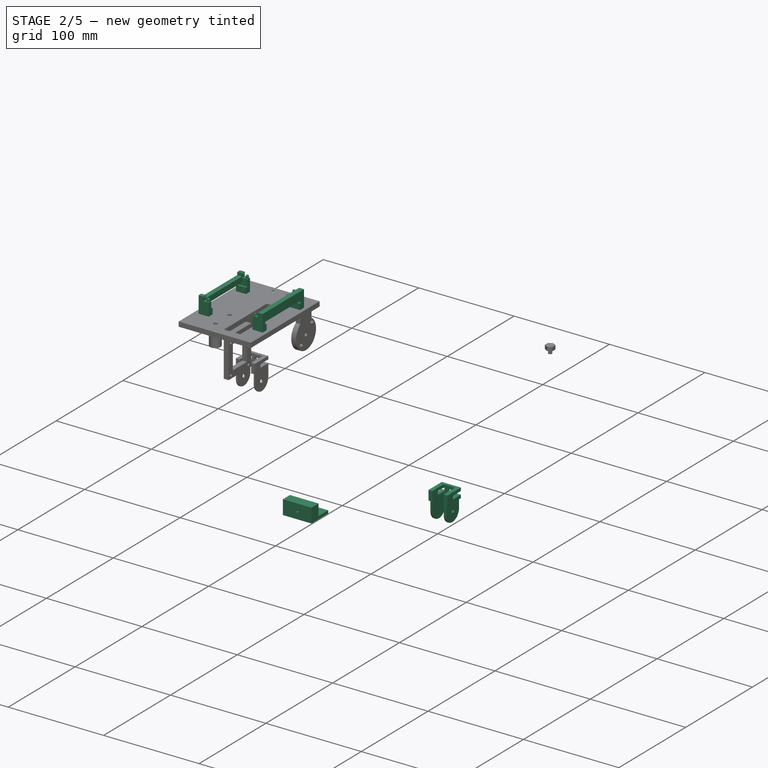
[diagram: stage 2 of 5 — iso view after this stage's code; geometry added in this stage tinted green]
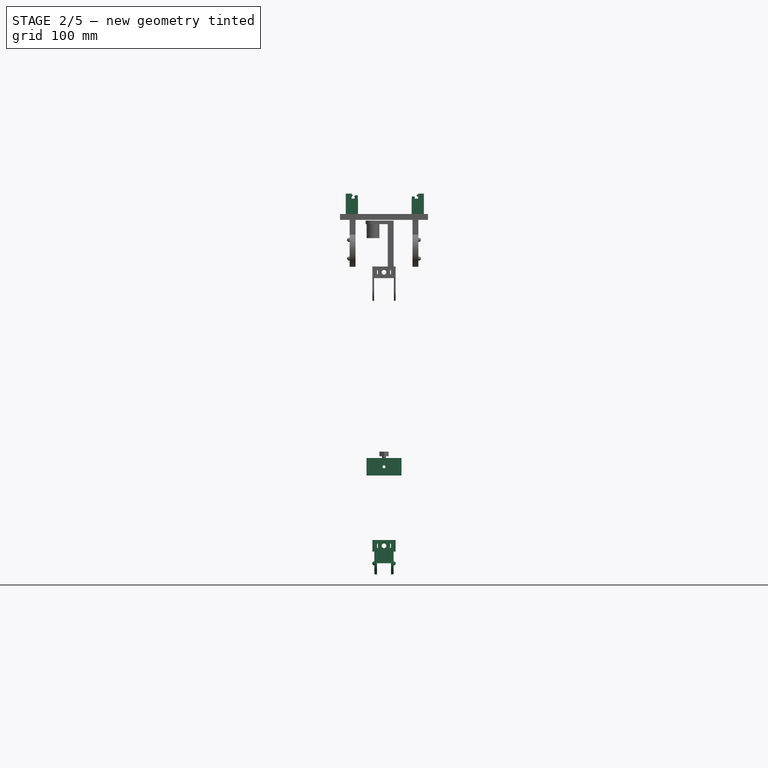
[diagram: stage 2 of 5 — front view after this stage's code; geometry added in this stage tinted green]
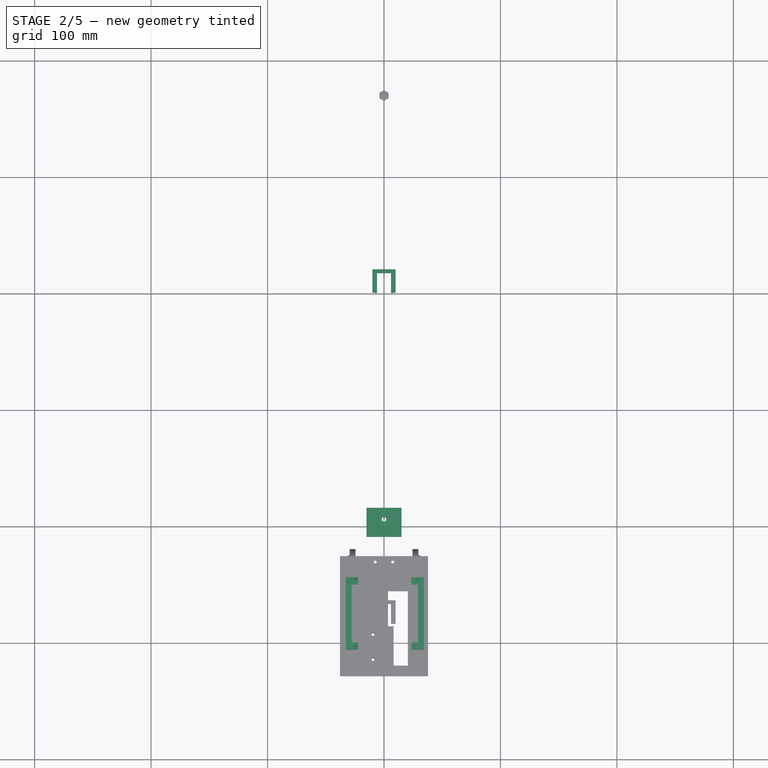
[diagram: stage 2 of 5 — top view after this stage's code; geometry added in this stage tinted green]
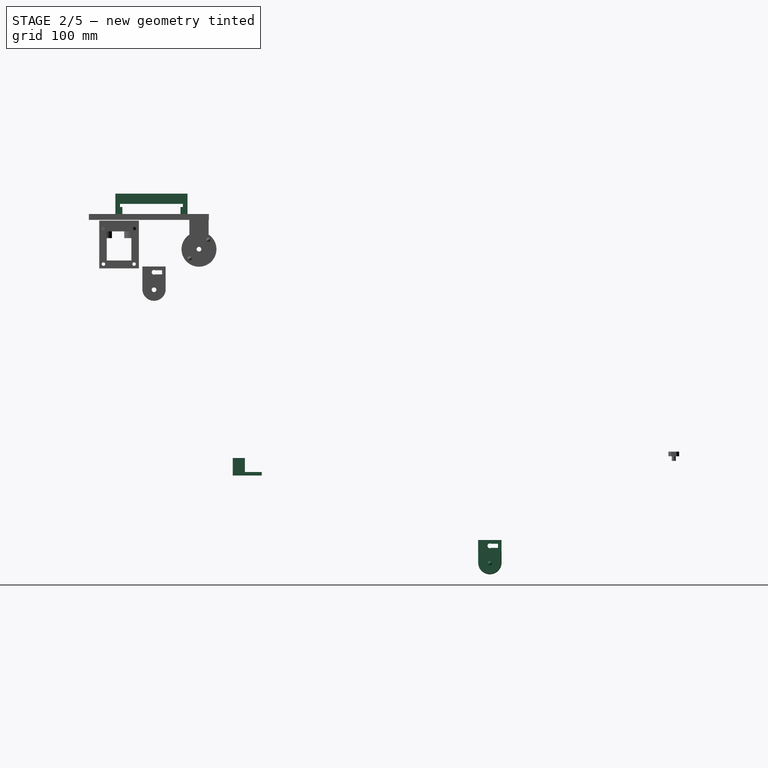
[diagram: stage 2 of 5 — right view after this stage's code; geometry added in this stage tinted green]
FEATURE [Sketcher::SketchObject] Sketch064
  Placement = pos=(14.25,-390,295) rot=(0,0,1;3.14159rad)
  sketch-geometry (4):
    g0: Circle CenterX=38.0739 CenterY=19 CenterZ=0 NormalX=0 NormalY=0 NormalZ=1 Radius=1.25
    g1: Circle CenterX=38.0739 CenterY=-39 CenterZ=0 NormalX=0 NormalY=0 NormalZ=1 Radius=1.25
    g2: Circle CenterX=-10.9261 CenterY=19 CenterZ=0 NormalX=0 NormalY=0 NormalZ=1 Radius=1.25
    g3: Circle CenterX=-10.9261 CenterY=-39 CenterZ=0 NormalX=0 NormalY=0 NormalZ=1 Radius=1.25
  constraints (12):
    c: Radius(g2) = 1.25
    c: Equal(g2,g0)
    c: Equal(g2,g1)
    c: Equal(g2,g3)
    c: DistanceX(g2) = -10.9261
    c: DistanceY(g2) = 19
    c: DistanceX(g0) = 38.0739
    c: DistanceY(g0) = 19
    c: DistanceX(g3) = -10.9261
    c: DistanceY(g3) = -39
    c: DistanceX(g1) = 38.0739
    c: DistanceY(g1) = -39
FEATURE [PartDesign::Pad] Pad042
  Length = 15
  Length2 = 100
  Placement = pos=(14.25,-390,295) rot=(0,0,1;3.14159rad)
  Reversed = true
  Sketch = -> Sketch064
  Type = 0
FEATURE [Part::Sphere] Sphere002  label="Sphère002"
  Angle1 = -90
  Angle2 = 90
  Angle3 = 360
  Placement = pos=(25.18,-409,295) rot=(0,0,1;0rad)
  Radius = 1.5
FEATURE [Part::Sphere] Sphere003  label="Sphère003"
  Angle1 = -90
  Angle2 = 90
  Angle3 = 360
  Placement = pos=(-23.82,-351,295) rot=(0,0,1;0rad)
  Radius = 1.5
FEATURE [Part::Sphere] Sphere004  label="Sphère004"
  Angle1 = -90
  Angle2 = 90
  Angle3 = 360
  Placement = pos=(-23.82,-409,295) rot=(0,0,1;0rad)
  Radius = 1.5
FEATURE [Part::Sphere] Sphere005  label="Sphère005"
  Angle1 = -90
  Angle2 = 90
  Angle3 = 360
  Placement = pos=(25.18,-351,295) rot=(0,0,1;0rad)
  Radius = 1.5
FEATURE [Part::MultiFuse] Fusion010  label="plotDte"
  Shapes = -> [Sphere002,Sphere005]
FEATURE [Part::MultiFuse] Fusion011  label="plotGhe"
  Shapes = -> [Sphere003,Sphere004]
FEATURE [Sketcher::SketchObject] Sketch065
  Placement = pos=(14.25,-390,293.717) rot=(1,0,0;3.14159rad)
  sketch-geometry (9):
    g0: LineSegment StartX=9.43954 StartY=21 StartZ=0 EndX=20 EndY=21 EndZ=0
    g1: LineSegment StartX=20 StartY=21 StartZ=0 EndX=20 EndY=17 EndZ=0
    g2: LineSegment StartX=15 StartY=17 StartZ=0 EndX=9.43954 EndY=17 EndZ=0
    g3: LineSegment StartX=9.43954 StartY=17 StartZ=0 EndX=9.43954 EndY=21 EndZ=0
    g4: LineSegment StartX=9.43954 StartY=-37 StartZ=0 EndX=15 EndY=-37 EndZ=0
    g5: LineSegment StartX=20 StartY=-41 StartZ=0 EndX=9.43954 EndY=-41 EndZ=0
    g6: LineSegment StartX=9.43954 StartY=-41 StartZ=0 EndX=9.43954 EndY=-37 EndZ=0
    g7: LineSegment StartX=15 StartY=17 StartZ=0 EndX=15 EndY=-37 EndZ=0
    g8: LineSegment StartX=20 StartY=-41 StartZ=0 EndX=20 EndY=17 EndZ=0
  constraints (29):
    c: Coincident(g0,g1)
    c: Coincident(g2,g3)
    c: Coincident(g3,g0)
    c: Horizontal(g0)
    c: Horizontal(g2)
    c: Vertical(g1)
    c: Vertical(g3)
    c: Coincident(g5,g6)
    c: Coincident(g6,g4)
    c: Horizontal(g4)
    c: Horizontal(g5)
    c: Vertical(g6)
    c: Equal(g3,g6)
    c: Distance(g3) = 4
    c: PointOnObject(g0,g6)
    c: Vertical(g7)
    c: PointOnObject(g7,g2)
    c: DistanceX(g0) = 9.43954
    c: DistanceY(g0) = 21
    c: Distance(g2,g4) = 54
    c: PointOnObject(g2,g7)
    c: PointOnObject(g4,g7)
    c: PointOnObject(g1,g2)
    c: Coincident(g7,g4)
    c: DistanceX(g-2,g2) = 15
    c: DistanceX(g-2,g0) = 20
    c: Coincident(g8,g1)
    c: Coincident(g8,g5)
    c: Vertical(g8)
FEATURE [Sketcher::SketchObject] Sketch066
  Placement = pos=(14.25,-390,295.5) rot=(1,0,0;3.14159rad)
  sketch-geometry (9):
    g0: LineSegment StartX=9.43954 StartY=21 StartZ=0 EndX=20 EndY=21 EndZ=0
    g1: LineSegment StartX=20 StartY=21 StartZ=0 EndX=20 EndY=17 EndZ=0
    g2: LineSegment StartX=15 StartY=17 StartZ=0 EndX=9.43954 EndY=17 EndZ=0
    g3: LineSegment StartX=9.43954 StartY=17 StartZ=0 EndX=9.43954 EndY=21 EndZ=0
    g4: LineSegment StartX=9.43954 StartY=-37 StartZ=0 EndX=15 EndY=-37 EndZ=0
    g5: LineSegment StartX=20 StartY=-41 StartZ=0 EndX=9.43954 EndY=-41 EndZ=0
    g6: LineSegment StartX=9.43954 StartY=-41 StartZ=0 EndX=9.43954 EndY=-37 EndZ=0
    g7: LineSegment StartX=15 StartY=17 StartZ=0 EndX=15 EndY=-37 EndZ=0
    g8: LineSegment StartX=20 StartY=-41 StartZ=0 EndX=20 EndY=17 EndZ=0
  constraints (29):
    c: Coincident(g0,g1)
    c: Coincident(g2,g3)
    c: Coincident(g3,g0)
    c: Horizontal(g0)
    c: Horizontal(g2)
    c: Vertical(g1)
    c: Vertical(g3)
    c: Coincident(g5,g6)
    c: Coincident(g6,g4)
    c: Horizontal(g4)
    c: Horizontal(g5)
    c: Vertical(g6)
    c: Equal(g3,g6)
    c: Distance(g3) = 4
    c: PointOnObject(g0,g6)
    c: Vertical(g7)
    c: PointOnObject(g7,g2)
    c: DistanceX(g0) = 9.43954
    c: DistanceY(g0) = 21
    c: Distance(g2,g4) = 54
    c: PointOnObject(g2,g7)
    c: PointOnObject(g4,g7)
    c: PointOnObject(g1,g2)
    c: Coincident(g7,g4)
    c: DistanceX(g-2,g2) = 15
    c: DistanceX(g-2,g0) = 20
    c: Coincident(g8,g1)
    c: Coincident(g8,g5)
    c: Vertical(g8)
FEATURE [PartDesign::Pad] Pad043
  Length = 2
  Length2 = 100
  Placement = pos=(14.25,-390,295.5) rot=(1,0,0;3.14159rad)
  Reversed = true
  Sketch = -> Sketch066
  Type = 0
FEATURE [Part::MultiFuse] Fusion012  label="fixRpiHaut001"
  Shapes = -> [Fusion010,Pad043]
FEATURE [PartDesign::Pad] Pad044  label="fixRpiBas001"
  Length = 13.7
  Length2 = 100
  Placement = pos=(14.25,-390,293.717) rot=(1,0,0;3.14159rad)
  Sketch = -> Sketch065
  Type = 0
FEATURE [Sketcher::SketchObject] Sketch067
  ExternalGeometry = -> [Pad044]
  Placement = pos=(34.25,-390,293.717) rot=(-0.57735,0.57735,-0.57735;2.0944rad)
  Support = -> Pad044 [Face5]
  sketch-geometry (4):
    g0: LineSegment StartX=-41 StartY=5.2 StartZ=0 EndX=21 EndY=5.2 EndZ=0
    g1: LineSegment StartX=21 StartY=5.2 StartZ=0 EndX=21 EndY=-3.3 EndZ=0
    g2: LineSegment StartX=21 StartY=-3.3 StartZ=0 EndX=-41 EndY=-3.3 EndZ=0
    g3: LineSegment StartX=-41 StartY=-3.3 StartZ=0 EndX=-41 EndY=5.2 EndZ=0
  constraints (12):
    c: Coincident(g0,g1)
    c: Coincident(g1,g2)
    c: Coincident(g2,g3)
    c: Coincident(g3,g0)
    c: Horizontal(g0)
    c: Horizontal(g2)
    c: Vertical(g1)
    c: Vertical(g3)
    c: PointOnObject(g0,g-4)
    c: PointOnObject(g0,g-3)
    c: Distance(g1) = 8.5
    c: Distance(g0,g-4) = 8.5
FEATURE [PartDesign::Pad] Pad045  label="fixRpiBas002"
  Length = 5
  Length2 = 100
  Placement = pos=(14.25,-390,293.717) rot=(1,0,0;3.14159rad)
  Reversed = true
  Sketch = -> Sketch067
  Type = 3
  UpToFace = -> Pad044 [Face9]
FEATURE [Part::MultiFuse] Fusion013  label="fixRpi001"
  Shapes = -> [Pad045,Fusion012]
FEATURE [Sketcher::SketchObject] Sketch068
  ExternalGeometry = -> [Fusion013]
  Placement = pos=(34.25,0,0) rot=(0.57735,0.57735,0.57735;2.0944rad)
  Support = -> Fusion013 [Face12]
  sketch-geometry (6):
    g0: LineSegment [constr] StartX=-411 StartY=288.717 StartZ=0 EndX=-349 EndY=288.717 EndZ=0
    g1: LineSegment [constr] StartX=-380 StartY=288.717 StartZ=0 EndX=-380 EndY=278.717 EndZ=0
    g2: LineSegment StartX=-407 StartY=288.717 StartZ=0 EndX=-353 EndY=288.717 EndZ=0
    g3: LineSegment StartX=-353 StartY=288.717 StartZ=0 EndX=-353 EndY=278.717 EndZ=0
    g4: LineSegment StartX=-353 StartY=278.717 StartZ=0 EndX=-407 EndY=278.717 EndZ=0
    g5: LineSegment StartX=-407 StartY=278.717 StartZ=0 EndX=-407 EndY=288.717 EndZ=0
  constraints (20):
    c: Horizontal(g0)
    c: PointOnObject(g0,g-4)
    c: PointOnObject(g0,g-3)
    c: PointOnObject(g1,g0)
    c: Vertical(g1)
    c: Symmetric(g0,g0,g1)
    c: Coincident(g2,g3)
    c: Coincident(g3,g4)
    c: Coincident(g4,g5)
    c: Coincident(g5,g2)
    c: Horizontal(g2)
    c: Horizontal(g4)
    c: Vertical(g3)
    c: Vertical(g5)
    c: PointOnObject(g2,g0)
    c: Symmetric(g2,g2,g1)
    c: PointOnObject(g1,g4)
    c: Distance(g2,g-3) = 4
    c: Distance(g-3,g0) = 5
    c: Distance(g3) = 10
FEATURE [PartDesign::Pocket] Pocket020  label="fixRpi002"
  Length = 5
  Sketch = -> Sketch068
  Type = 1
FEATURE [Sketcher::SketchObject] Sketch069
  ExternalGeometry = -> [Pocket020]
  Placement = pos=(0,0,280.017) rot=(1,0,0;3.14159rad)
  Support = -> Pocket020 [Face6]
  sketch-geometry (8):
    g0: LineSegment StartX=23.6895 StartY=411 StartZ=0 EndX=34.25 EndY=411 EndZ=0
    g1: LineSegment StartX=34.25 StartY=411 StartZ=0 EndX=34.25 EndY=405 EndZ=0
    g2: LineSegment StartX=34.25 StartY=405 StartZ=0 EndX=23.6895 EndY=405 EndZ=0
    g3: LineSegment StartX=23.6895 StartY=405 StartZ=0 EndX=23.6895 EndY=411 EndZ=0
    g4: LineSegment StartX=34.25 StartY=349 StartZ=0 EndX=23.6895 EndY=349 EndZ=0
    g5: LineSegment StartX=23.6895 StartY=349 StartZ=0 EndX=23.6895 EndY=355 EndZ=0
    g6: LineSegment StartX=23.6895 StartY=355 StartZ=0 EndX=34.25 EndY=355 EndZ=0
    g7: LineSegment StartX=34.25 StartY=355 StartZ=0 EndX=34.25 EndY=349 EndZ=0
  constraints (22):
    c: Coincident(g0,g1)
    c: Coincident(g1,g2)
    c: Coincident(g2,g3)
    c: Coincident(g3,g0)
    c: Horizontal(g0)
    c: Horizontal(g2)
    c: Vertical(g1)
    c: Vertical(g3)
    c: Coincident(g4,g5)
    c: Coincident(g5,g6)
    c: Coincident(g6,g7)
    c: Coincident(g7,g4)
    c: Horizontal(g4)
    c: Horizontal(g6)
    c: Vertical(g5)
    c: Vertical(g7)
    c: Coincident(g0,g-3)
    c: Coincident(g0,g-3)
    c: Coincident(g4,g-4)
    c: Coincident(g4,g-4)
    c: Equal(g3,g5)
    c: Distance(g3) = 6
FEATURE [PartDesign::Pad] Pad046  label="fixRpi003"
  Length = 6
  Length2 = 100
  Reversed = true
  Sketch = -> Sketch069
  Type = 0
FEATURE [Sketcher::SketchObject] Sketch070
  ExternalGeometry = -> [Pad046]
  Placement = pos=(0,0,280.017) rot=(1,0,0;3.14159rad)
  Support = -> Pad046 [Face56]
  sketch-geometry (6):
    g0: LineSegment [constr] StartX=23.6895 StartY=408 StartZ=0 EndX=34.25 EndY=408 EndZ=0
    g1: LineSegment [constr] StartX=28.9698 StartY=411 StartZ=0 EndX=28.9698 EndY=405 EndZ=0
    g2: LineSegment [constr] StartX=23.6895 StartY=352 StartZ=0 EndX=34.25 EndY=352 EndZ=0
    g3: LineSegment [constr] StartX=28.9698 StartY=355 StartZ=0 EndX=28.9698 EndY=349 EndZ=0
    g4: Circle CenterX=28.9698 CenterY=408 CenterZ=0 NormalX=0 NormalY=0 NormalZ=1 Radius=1.25
    g5: Circle CenterX=28.9698 CenterY=352 CenterZ=0 NormalX=0 NormalY=0 NormalZ=1 Radius=1.25
  constraints (22):
    c: Horizontal(g0)
    c: Vertical(g1)
    c: PointOnObject(g0,g-8)
    c: PointOnObject(g0,g-7)
    c: Symmetric(g-7,g-5,g0)
    c: PointOnObject(g1,g-3)
    c: PointOnObject(g1,g-5)
    c: Symmetric(g-7,g-8,g1)
    c: Horizontal(g2)
    c: Vertical(g3)
    c: PointOnObject(g3,g-6)
    c: PointOnObject(g3,g-4)
    c: PointOnObject(g2,g-9)
    c: PointOnObject(g2,g-10)
    c: Symmetric(g-6,g-6,g3)
    c: Symmetric(g-6,g-9,g2)
    c: PointOnObject(g4,g1)
    c: PointOnObject(g4,g0)
    c: PointOnObject(g5,g3)
    c: PointOnObject(g5,g2)
    c: Radius(g4) = 1.25
    c: Equal(g4,g5)
FEATURE [PartDesign::Pocket] Pocket021  label="fixRpi004"
  Length = 8.5
  Sketch = -> Sketch070
  Type = 0
FEATURE [Part::Part2DObjectPython] Line  # Draft 2D object (typed FeaturePython)
  ChamferSize = 0
  Closed = false
  End = (0,-445,0)
  FilletRadius = 0
  Length = 102
  MakeFace = true
  Points = (2) [(0,-343,0),(0,-445,0)]
  Start = (0,-343,0)
  Subdivisions = 0
FEATURE [App::DocumentObjectGroup] Construction
  Group = -> [Line]
FEATURE [Part::Mirroring] mirror  label="fixRpiGauche001"
  Base = (0,-343,0)
  Normal = (-1,0,0)
  Placement = pos=(1.4,0,0) rot=(0,0,1;0rad)
  Source = -> Pocket021
FEATURE [PartDesign::Pocket] Pocket022  label="fixRpi005"
  Length = 8.5
  Sketch = -> Sketch070
  Type = 0
FEATURE [Sketcher::SketchObject] Sketch071
  ExternalGeometry = -> [mirror]
  Placement = pos=(-32.85,0,0) rot=(0.57735,-0.57735,-0.57735;2.0944rad)
  Support = -> mirror [Face47]
  sketch-geometry (4):
    g0: LineSegment StartX=353 StartY=304.5 StartZ=0 EndX=407 EndY=304.5 EndZ=0
    g1: LineSegment StartX=407 StartY=304.5 StartZ=0 EndX=407 EndY=294.5 EndZ=0
    g2: LineSegment StartX=407 StartY=294.5 StartZ=0 EndX=353 EndY=294.5 EndZ=0
    g3: LineSegment StartX=353 StartY=294.5 StartZ=0 EndX=353 EndY=304.5 EndZ=0
  constraints (12):
    c: Coincident(g0,g1)
    c: Coincident(g1,g2)
    c: Coincident(g2,g3)
    c: Coincident(g3,g0)
    c: Horizontal(g0)
    c: Horizontal(g2)
    c: Vertical(g1)
    c: Vertical(g3)
    c: PointOnObject(g-3,g1)
    c: Distance(g-3,g3) = 4
    c: Distance(g2,g-3) = 3
    c: Distance(g3) = 10
FEATURE [PartDesign::Pocket] Pocket023  label="fixRpiGauche002"
  Length = 5
  Placement = pos=(1.4,0,0) rot=(0,0,1;0rad)
  Sketch = -> Sketch071
  Type = 1
FEATURE [PartDesign::Chamfer] Chamfer003  label="fixRpi006"
  Base = -> Pocket022 [Edge36,Edge3]
  Size = 0.7
FEATURE [PartDesign::Chamfer] Chamfer004  label="fixRpi007"
  Base = -> Pocket023 [Edge3,Edge35]
  Placement = pos=(1.4,0,0) rot=(0,0,1;0rad)
  Size = 0.7
FEATURE [Sketcher::SketchObject] Sketch074
  ExternalGeometry = -> [Chamfer003]
  Placement = pos=(0,-411,0) rot=(1,0,0;1.5708rad)
  Support = -> Chamfer003 [Face5]
  sketch-geometry (4):
    g0: LineSegment StartX=22.25 StartY=294.217 StartZ=0 EndX=27.25 EndY=294.217 EndZ=0
    g1: LineSegment StartX=27.25 StartY=294.217 StartZ=0 EndX=27.25 EndY=293.717 EndZ=0
    g2: LineSegment StartX=27.25 StartY=293.717 StartZ=0 EndX=22.25 EndY=293.717 EndZ=0
    g3: LineSegment StartX=22.25 StartY=293.717 StartZ=0 EndX=22.25 EndY=294.217 EndZ=0
  constraints (12):
    c: Coincident(g0,g1)
    c: Coincident(g1,g2)
    c: Coincident(g2,g3)
    c: Coincident(g3,g0)
    c: Horizontal(g0)
    c: Horizontal(g2)
    c: Vertical(g1)
    c: Vertical(g3)
    c: PointOnObject(g1,g-3)
    c: Distance(g1,g-3) = 2
    c: Distance(g3) = 0.5
    c: Distance(g0) = 5
FEATURE [PartDesign::Pocket] Pocket024  label="fixRpi008"
  Length = 5
  Sketch = -> Sketch074
  Type = 1
FEATURE [Sketcher::SketchObject] Sketch075
  ExternalGeometry = -> [Chamfer004]
  Placement = pos=(1.4,-411,0) rot=(1,0,0;1.5708rad)
  Support = -> Chamfer004 [Face5]
  sketch-geometry (4):
    g0: LineSegment StartX=-27.25 StartY=294.217 StartZ=0 EndX=-22.25 EndY=294.217 EndZ=0
    g1: LineSegment StartX=-22.25 StartY=294.217 StartZ=0 EndX=-22.25 EndY=293.717 EndZ=0
    g2: LineSegment StartX=-22.25 StartY=293.717 StartZ=0 EndX=-27.25 EndY=293.717 EndZ=0
    g3: LineSegment StartX=-27.25 StartY=293.717 StartZ=0 EndX=-27.25 EndY=294.217 EndZ=0
  constraints (12):
    c: Coincident(g0,g1)
    c: Coincident(g1,g2)
    c: Coincident(g2,g3)
    c: Coincident(g3,g0)
    c: Horizontal(g0)
    c: Horizontal(g2)
    c: Vertical(g1)
    c: Vertical(g3)
    c: PointOnObject(g2,g-3)
    c: Distance(g2,g-3) = 2
    c: Distance(g1) = 0.5
    c: Distance(g0) = 5
FEATURE [PartDesign::Pocket] Pocket025  label="fixRpi009"
  Length = 5
  Placement = pos=(1.4,0,0) rot=(0,0,1;0rad)
  Sketch = -> Sketch075
  Type = 1
FEATURE [App::DocumentObjectGroup] Groupe012  label="GR_fixDriver"
  Group = -> [Pad009,Cut015,Pad057,Fillet]
FEATURE [Sketcher::SketchObject] Sketch087
  ExternalGeometry = -> [Pocket025]
  Placement = pos=(1.4,-411,0) rot=(1,0,0;1.5708rad)
  Support = -> Pocket025 [Face4]
  sketch-geometry (4):
    g0: LineSegment StartX=-29.25 StartY=293.717 StartZ=0 EndX=-23.25 EndY=293.717 EndZ=0
    g1: LineSegment StartX=-23.25 StartY=293.717 StartZ=0 EndX=-23.25 EndY=293.217 EndZ=0
    g2: LineSegment StartX=-23.25 StartY=293.217 StartZ=0 EndX=-29.25 EndY=293.217 EndZ=0
    g3: LineSegment StartX=-29.25 StartY=293.217 StartZ=0 EndX=-29.25 EndY=293.717 EndZ=0
  constraints (11):
    c: Coincident(g0,g1)
    c: Coincident(g1,g2)
    c: Coincident(g2,g3)
    c: Coincident(g3,g0)
    c: Horizontal(g0)
    c: Horizontal(g2)
    c: Vertical(g1)
    c: Vertical(g3)
    c: Coincident(g0,g-3)
    c: Distance(g1) = 0.5
    c: Distance(g2) = 6
FEATURE [PartDesign::Pocket] Pocket028  label="fixRpi010"
  Length = 5
  Placement = pos=(1.4,0,0) rot=(0,0,1;0rad)
  Sketch = -> Sketch087
  Type = 1
FEATURE [Sketcher::SketchObject] Sketch088
  ExternalGeometry = -> [Pocket024]
  Placement = pos=(0,-411,0) rot=(1,0,0;1.5708rad)
  Support = -> Pocket024 [Face4]
  sketch-geometry (4):
    g0: LineSegment StartX=29.25 StartY=293.717 StartZ=0 EndX=23.25 EndY=293.717 EndZ=0
    g1: LineSegment StartX=23.25 StartY=293.717 StartZ=0 EndX=23.25 EndY=293.217 EndZ=0
    g2: LineSegment StartX=23.25 StartY=293.217 StartZ=0 EndX=29.25 EndY=293.217 EndZ=0
    g3: LineSegment StartX=29.25 StartY=293.217 StartZ=0 EndX=29.25 EndY=293.717 EndZ=0
  constraints (11):
    c: Coincident(g0,g1)
    c: Coincident(g1,g2)
    c: Coincident(g2,g3)
    c: Coincident(g3,g0)
    c: Horizontal(g0)
    c: Horizontal(g2)
    c: Vertical(g1)
    c: Vertical(g3)
    c: Coincident(g0,g-3)
    c: Distance(g1) = 0.5
    c: Distance(g2) = 6
FEATURE [PartDesign::Pocket] Pocket029  label="fixRpi011"
  Length = 5
  Sketch = -> Sketch088
  Type = 1
FEATURE [App::DocumentObjectGroup] Groupe036  label="GR_supportCam"
  Group = -> [Pad049,Pad050,Pocket026,Pocket030,Pocket031,Pocket036]
FEATURE [Sketcher::SketchObject] Sketch098
  ExternalGeometry = -> [Pocket029]
  Placement = pos=(0,-411,0) rot=(1,0,0;1.5708rad)
  Support = -> Pocket029 [Face24]
  sketch-geometry (4):
    g0: LineSegment StartX=19.25 StartY=303.217 StartZ=0 EndX=29.25 EndY=303.217 EndZ=0
    g1: LineSegment StartX=29.25 StartY=303.217 StartZ=0 EndX=29.25 EndY=293.217 EndZ=0
    g2: LineSegment StartX=29.25 StartY=293.217 StartZ=0 EndX=19.25 EndY=293.217 EndZ=0
    g3: LineSegment StartX=19.25 StartY=293.217 StartZ=0 EndX=19.25 EndY=303.217 EndZ=0
  constraints (11):
    c: Coincident(g0,g1)
    c: Coincident(g1,g2)
    c: Coincident(g2,g3)
    c: Coincident(g3,g0)
    c: Horizontal(g0)
    c: Horizontal(g2)
    c: Vertical(g1)
    c: Vertical(g3)
    c: Coincident(g1,g-4)
    c: Distance(g0) = 10
    c: Distance(g3) = 10
FEATURE [PartDesign::Pocket] Pocket037  label="fixRpi013"
  Length = 5
  Sketch = -> Sketch098
  Type = 1
FEATURE [Sketcher::SketchObject] Sketch099
  ExternalGeometry = -> [Pocket028]
  Placement = pos=(1.4,-411,0) rot=(1,0,0;1.5708rad)
  Support = -> Pocket028 [Face29]
  sketch-geometry (4):
    g0: LineSegment StartX=-29.25 StartY=303.217 StartZ=0 EndX=-19.25 EndY=303.217 EndZ=0
    g1: LineSegment StartX=-19.25 StartY=303.217 StartZ=0 EndX=-19.25 EndY=293.217 EndZ=0
    g2: LineSegment StartX=-19.25 StartY=293.217 StartZ=0 EndX=-29.25 EndY=293.217 EndZ=0
    g3: LineSegment StartX=-29.25 StartY=293.217 StartZ=0 EndX=-29.25 EndY=303.217 EndZ=0
  constraints (11):
    c: Coincident(g0,g1)
    c: Coincident(g1,g2)
    c: Coincident(g2,g3)
    c: Coincident(g3,g0)
    c: Horizontal(g0)
    c: Horizontal(g2)
    c: Vertical(g1)
    c: Vertical(g3)
    c: Coincident(g2,g-3)
    c: Distance(g0) = 10
    c: Distance(g1) = 10
FEATURE [PartDesign::Pocket] Pocket038  label="fixRpi012"
  Length = 5
  Placement = pos=(1.4,0,0) rot=(0,0,1;0rad)
  Sketch = -> Sketch099
  Type = 1
FEATURE [Sketcher::SketchObject] Sketch100
  Placement = pos=(14.25,-390,295.017) rot=(0,0,1;3.14159rad)
  sketch-geometry (2):
    g0: Circle CenterX=38.0739 CenterY=19 CenterZ=0 NormalX=0 NormalY=0 NormalZ=1 Radius=1.25
    g1: Circle CenterX=38.0739 CenterY=-39 CenterZ=0 NormalX=0 NormalY=0 NormalZ=1 Radius=1.25
  constraints (6):
    c: Radius(g0) = 1.25
    c: Equal(g0,g1)
    c: DistanceX(g0) = 38.0739
    c: DistanceY(g0) = 19
    c: DistanceX(g1) = 38.0739
    c: DistanceY(g1) = -39
FEATURE [PartDesign::Pad] Pad060
  Length = 3
  Length2 = 100
  Placement = pos=(14.25,-390,295.017) rot=(0,0,1;3.14159rad)
  Reversed = true
  Sketch = -> Sketch100
  Type = 0
FEATURE [Part::MultiFuse] Fusion015  label="fixRpiGauche003"
  Shapes = -> [Pocket038,Pad060]
FEATURE [Sketcher::SketchObject] Sketch101
  Placement = pos=(14.25,-390,295.017) rot=(0,0,1;3.14159rad)
  sketch-geometry (2):
    g0: Circle CenterX=-10.9261 CenterY=19 CenterZ=0 NormalX=0 NormalY=0 NormalZ=1 Radius=1.25
    g1: Circle CenterX=-10.9261 CenterY=-39 CenterZ=0 NormalX=0 NormalY=0 NormalZ=1 Radius=1.25
  constraints (6):
    c: Radius(g0) = 1.25
    c: Equal(g0,g1)
    c: DistanceX(g0) = -10.9261
    c: DistanceY(g0) = 19
    c: DistanceX(g1) = -10.9261
    c: DistanceY(g1) = -39
FEATURE [PartDesign::Pad] Pad061
  Length = 3
  Length2 = 100
  Placement = pos=(14.25,-390,295.017) rot=(0,0,1;3.14159rad)
  Reversed = true
  Sketch = -> Sketch101
  Type = 0
FEATURE [Part::MultiFuse] Fusion016  label="fixRpi014"
  Shapes = -> [Pocket037,Pad061]
FEATURE [Part::Sphere] Sphere006  label="Sphère006"
  Angle1 = -90
  Angle2 = 90
  Angle3 = 360
  Placement = pos=(-27.9,-351,296) rot=(0,0,1;0rad)
  Radius = 1
FEATURE [Part::Sphere] Sphere007  label="Sphère007"
  Angle1 = -90
  Angle2 = 90
  Angle3 = 360
  Placement = pos=(-27.9,-409,296) rot=(0,0,1;0rad)
  Radius = 1
FEATURE [Part::MultiFuse] Fusion017  label="fixRpiGauche004"
  Shapes = -> [Fusion015,Sphere006,Sphere007]
FEATURE [App::DocumentObjectGroup] Groupe034  label="SGR_fixRpiGauche"
  Group = -> [Construction,mirror,Pocket021,Pocket023,Chamfer004,Pocket025,Pocket028,Fusion017]
FEATURE [Part::Sphere] Sphere008  label="Sphère008"
  Angle1 = -90
  Angle2 = 90
  Angle3 = 360
  Placement = pos=(29.1,-351,296) rot=(0,0,1;0rad)
  Radius = 1
FEATURE [Part::MultiFuse] Fusion018  label="fixRpiDte015"
  Shapes = -> [Fusion016,Sphere009,Sphere008]
FEATURE [App::DocumentObjectGroup] Groupe039  label="SGR_MayonBas"
  Group = -> [Part__Feature008,Pocket039,Pocket040,Pocket041]
FEATURE [Part::FeaturePython] Clone019  label="mayonBase001"  # Draft clone (typed FeaturePython)
  Objects = -> [Pocket041]
  Placement = pos=(7.84571e-05,-89.4366,-4.9) rot=(0.57735,-0.57735,-0.57735;4.18879rad)
  Scale = (1,1,1)
FEATURE [Sketcher::SketchObject] Sketch105
  ExternalGeometry = -> [Clone019]
  Placement = pos=(7.84571e-05,-99.4366,-4.9) rot=(-0.57735,-0.57735,0.57735;4.18879rad)
  Support = -> Clone019 [Face15]
  sketch-geometry (4):
    g0: LineSegment StartX=-35 StartY=15 StartZ=0 EndX=-5 EndY=15 EndZ=0
    g1: LineSegment StartX=-5 StartY=15 StartZ=0 EndX=-5 EndY=-15 EndZ=0
    g2: LineSegment StartX=-5 StartY=-15 StartZ=0 EndX=-35 EndY=-15 EndZ=0
    g3: LineSegment StartX=-35 StartY=-15 StartZ=0 EndX=-35 EndY=15 EndZ=0
  constraints (12):
    c: Coincident(g0,g1)
    c: Coincident(g1,g2)
    c: Coincident(g2,g3)
    c: Coincident(g3,g0)
    c: Horizontal(g0)
    c: Horizontal(g2)
    c: Vertical(g1)
    c: Vertical(g3)
    c: PointOnObject(g-3,g1)
    c: Symmetric(g0,g2,g-1)
    c: Distance(g3) = 30
    c: Distance(g0) = 30
FEATURE [PartDesign::Pocket] Pocket042  label="mayonBase002"
  Length = 5
  Placement = pos=(7.84571e-05,-89.4366,-4.9) rot=(0.57735,-0.57735,-0.57735;4.18879rad)
  Sketch = -> Sketch105
  Type = 1
FEATURE [App::DocumentObjectGroup] Groupe040  label="SGR_mayonBase"
  Group = -> [Clone019,Pocket042]
FEATURE [Sketcher::SketchObject] Sketch106  label="equerreTransition001"
  Placement = pos=(0,0,55.5) rot=(0,0,1;0rad)
  sketch-geometry (5):
    g0: LineSegment StartX=-15 StartY=-285.232 StartZ=0 EndX=15 EndY=-285.232 EndZ=0
    g1: LineSegment StartX=15 StartY=-285.232 StartZ=0 EndX=15 EndY=-310.232 EndZ=0
    g2: LineSegment StartX=15 StartY=-310.232 StartZ=0 EndX=-15 EndY=-310.232 EndZ=0
    g3: LineSegment StartX=-15 StartY=-310.232 StartZ=0 EndX=-15 EndY=-285.232 EndZ=0
    g4: Circle CenterX=0 CenterY=-295.297 CenterZ=0 NormalX=0 NormalY=0 NormalZ=1 Radius=2
  constraints (15):
    c: Coincident(g0,g1)
    c: Coincident(g1,g2)
    c: Coincident(g2,g3)
    c: Coincident(g3,g0)
    c: Horizontal(g0)
    c: Horizontal(g2)
    c: Vertical(g1)
    c: Vertical(g3)
    c: Symmetric(g0,g0,g-2)
    c: DistanceX(g-2,g2) = -15
    c: Radius(g4) = 2
    c: DistanceX(g4) = 0
    c: DistanceY(g4) = -295.297
    c: Distance(g1) = 25
    c: DistanceY(g0) = -285.232
FEATURE [PartDesign::Pad] Pad062  label="equerreTransition002"
  Length = 3
  Length2 = 100
  Placement = pos=(0,0,55.5) rot=(0,0,1;0rad)
  Sketch = -> Sketch106
  Type = 0
FEATURE [Sketcher::SketchObject] Sketch107
  ExternalGeometry = -> [Pad062]
  Placement = pos=(0,0,58.5) rot=(0,0,1;0rad)
  Support = -> Pad062 [Face7]
  sketch-geometry (4):
    g0: LineSegment StartX=-15 StartY=-299.732 StartZ=0 EndX=15 EndY=-299.732 EndZ=0
    g1: LineSegment StartX=15 StartY=-299.732 StartZ=0 EndX=15 EndY=-310.232 EndZ=0
    g2: LineSegment StartX=15 StartY=-310.232 StartZ=0 EndX=-15 EndY=-310.232 EndZ=0
    g3: LineSegment StartX=-15 StartY=-310.232 StartZ=0 EndX=-15 EndY=-299.732 EndZ=0
  constraints (11):
    c: Coincident(g0,g1)
    c: Coincident(g1,g2)
    c: Coincident(g2,g3)
    c: Coincident(g3,g0)
    c: Horizontal(g0)
    c: Horizontal(g2)
    c: Vertical(g1)
    c: Vertical(g3)
    c: Coincident(g1,g-4)
    c: Distance(g3) = 10.5
    c: Coincident(g2,g-3)
FEATURE [PartDesign::Pad] Pad063  label="equerreTransition003"
  Length = 12
  Length2 = 100
  Placement = pos=(0,0,55.5) rot=(0,0,1;0rad)
  Sketch = -> Sketch107
  Type = 0
FEATURE [Sketcher::SketchObject] Sketch108
  Placement = pos=(0,-310.232,55.5) rot=(1,0,0;1.5708rad)
  Support = -> Pad063 [Face11]
  sketch-geometry (1):
    g0: Circle CenterX=0 CenterY=7.5 CenterZ=0 NormalX=0 NormalY=0 NormalZ=1 Radius=1.25
  constraints (3):
    c: PointOnObject(g0,g-2)
    c: Distance(g-1,g0) = 7.5
    c: Radius(g0) = 1.25
FEATURE [PartDesign::Pocket] Pocket043  label="equerreTransition004"
  Length = 5
  Placement = pos=(0,0,55.5) rot=(0,0,1;0rad)
  Sketch = -> Sketch108
  Type = 1
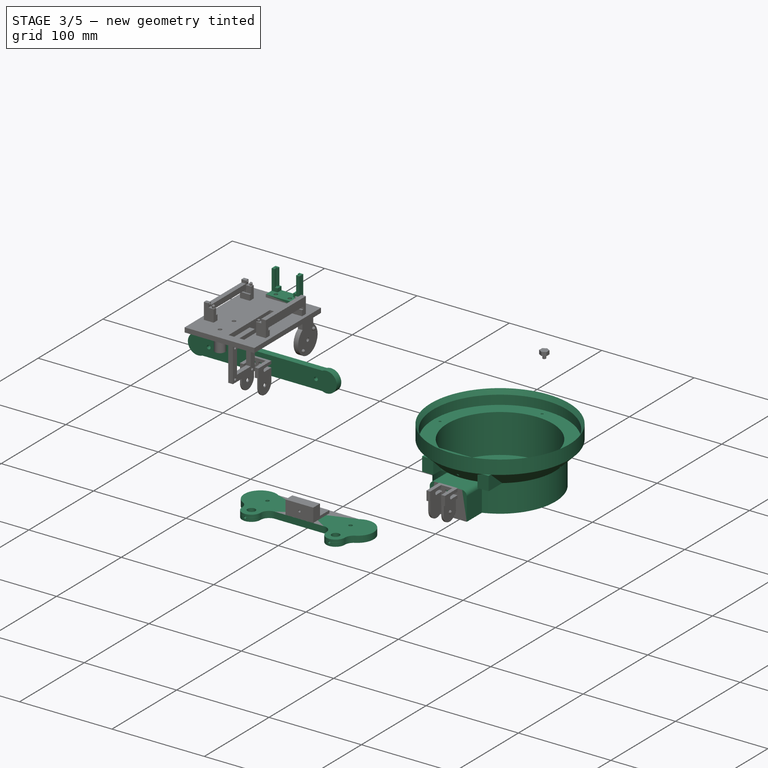
[diagram: stage 3 of 5 — iso view after this stage's code; geometry added in this stage tinted green]
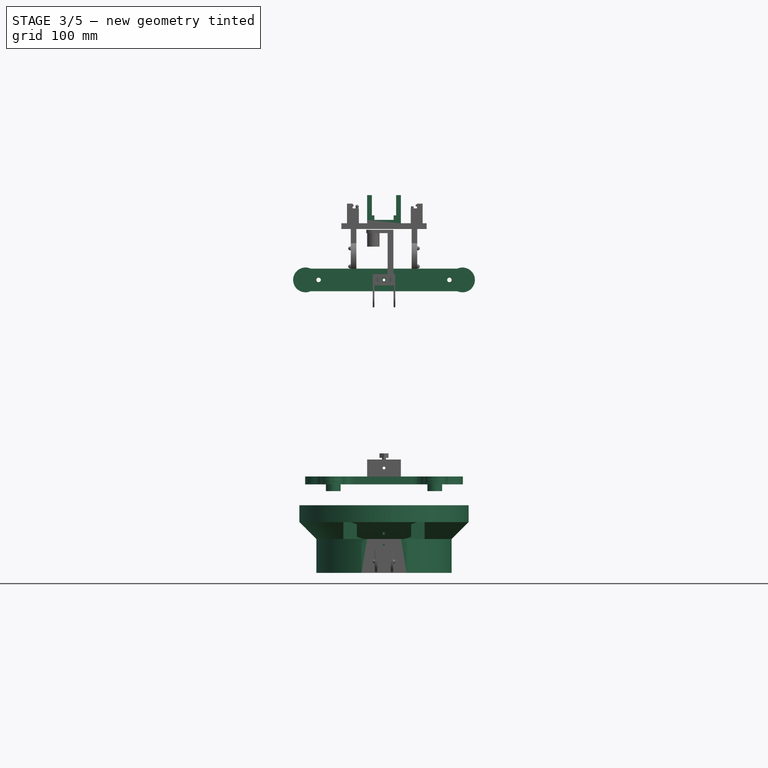
[diagram: stage 3 of 5 — front view after this stage's code; geometry added in this stage tinted green]
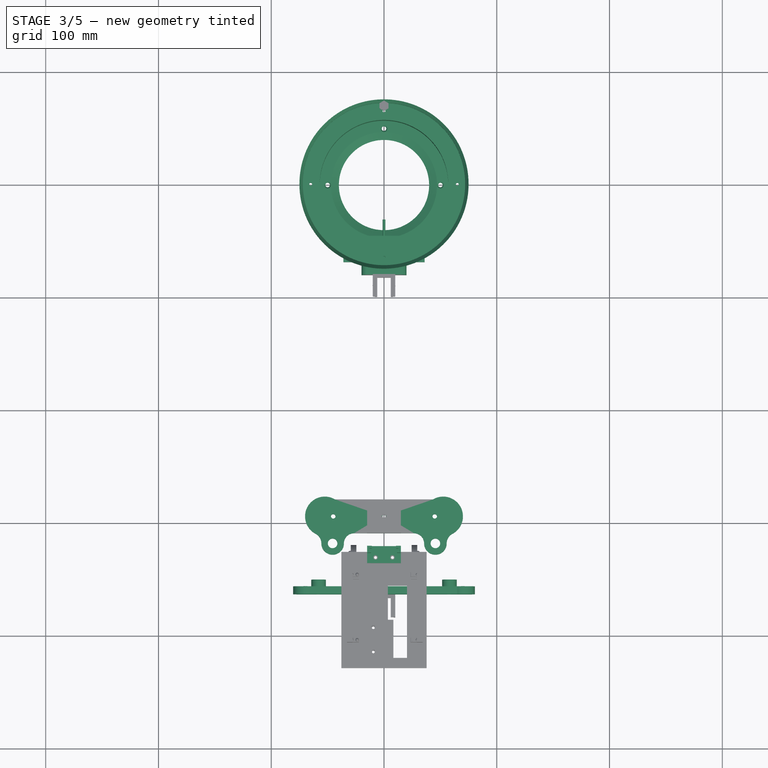
[diagram: stage 3 of 5 — top view after this stage's code; geometry added in this stage tinted green]
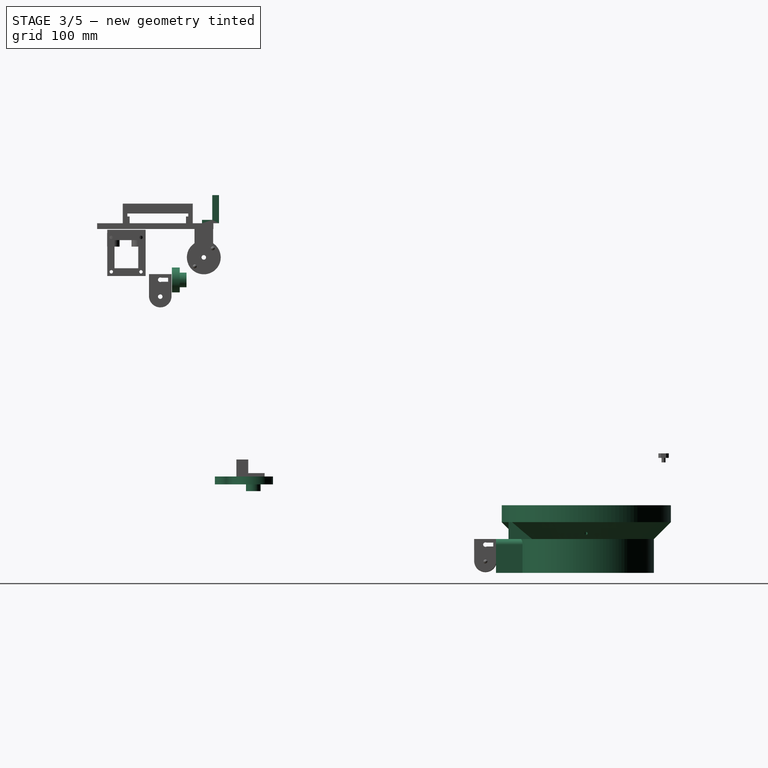
[diagram: stage 3 of 5 — right view after this stage's code; geometry added in this stage tinted green]
FEATURE [Sketcher::SketchObject] Sketch
  Placement = pos=(0,0,0) rot=(1,0,0;1.5708rad)
  sketch-geometry (11):
    g0: LineSegment StartX=40 StartY=-30 StartZ=0 EndX=60 EndY=-30 EndZ=0
    g1: LineSegment StartX=60 StartY=-30 StartZ=0 EndX=60 EndY=0 EndZ=0
    g2: LineSegment StartX=60 StartY=0 StartZ=0 EndX=75 EndY=15 EndZ=0
    g3: LineSegment StartX=75 StartY=15 StartZ=0 EndX=75 EndY=30 EndZ=0
    g4: LineSegment StartX=47 StartY=-27 StartZ=0 EndX=57 EndY=-27 EndZ=0
    g5: LineSegment StartX=57 StartY=-27 StartZ=0 EndX=57 EndY=15 EndZ=0
    g6: LineSegment StartX=72 StartY=15 StartZ=0 EndX=72 EndY=25 EndZ=0
    g7: LineSegment StartX=40 StartY=-30 StartZ=0 EndX=47 EndY=-27 EndZ=0
    g8: LineSegment StartX=72 StartY=15 StartZ=0 EndX=57 EndY=15 EndZ=0
    g9: LineSegment StartX=72 StartY=25 StartZ=0 EndX=75 EndY=30 EndZ=0
    g10: LineSegment [constr] StartX=0 StartY=21.8584 StartZ=0 EndX=65 EndY=21.8584 EndZ=0
  constraints (34):
    c: Horizontal(g0)
    c: Coincident(g0,g1)
    c: PointOnObject(g1,g-1)
    c: Vertical(g1)
    c: Coincident(g2,g3)
    c: Vertical(g3)
    c: Angle(g1,g2) = 2.35619
    c: Coincident(g2,g1)
    c: DistanceX(g-2,g0) = 40
    c: DistanceX(g-2,g3) = 75
    c: Horizontal(g4)
    c: Coincident(g4,g5)
    c: Vertical(g5)
    c: Vertical(g6)
    c: Distance(g4) = 10
    c: Distance(g1) = 30
    c: Distance(g4,g1) = 3
    c: Distance(g4,g0) = 3
    c: Distance(g6,g3) = 3
    c: Distance(g0) = 20
    c: Coincident(g7,g4)
    c: Coincident(g7,g0)
    c: Coincident(g8,g6)
    c: Horizontal(g8)
    c: PointOnObject(g8,g5)
    c: Coincident(g5,g8)
    c: PointOnObject(g2,g8)
    c: Coincident(g9,g3)
    c: Coincident(g9,g6)
    c: Distance(g6) = 10
    c: Distance(g3) = 15
    c: PointOnObject(g10,g-2)
    c: Horizontal(g10)
    c: Distance(g10) = 65
FEATURE [PartDesign::Revolution] Revolution  label="base"
  Angle = 360
  Axis = (0,0,1)
  Base = (0,0,0)
  Placement = pos=(0,0,0) rot=(1,0,0;1.5708rad)
  ReferenceAxis = -> Sketch [V_Axis]
  Reversed = true
  Sketch = -> Sketch
FEATURE [App::DocumentObjectGroup] Groupe004  label="GR_baseHaute"
  Group = -> [Cut001]
FEATURE [Sketcher::SketchObject] Sketch004
  sketch-geometry (4):
    g0: Circle CenterX=0 CenterY=-65 CenterZ=0 NormalX=0 NormalY=0 NormalZ=1 Radius=1.25
    g1: Circle CenterX=0 CenterY=65 CenterZ=0 NormalX=0 NormalY=0 NormalZ=1 Radius=1.25
    g2: Circle CenterX=-65 CenterY=0 CenterZ=0 NormalX=0 NormalY=0 NormalZ=1 Radius=1.25
    g3: Circle CenterX=65 CenterY=0 CenterZ=0 NormalX=0 NormalY=0 NormalZ=1 Radius=1.25
  constraints (12):
    c: PointOnObject(g3,g-1)
    c: PointOnObject(g2,g-1)
    c: PointOnObject(g1,g-2)
    c: PointOnObject(g0,g-2)
    c: DistanceX(g-2,g2) = -65
    c: Symmetric(g2,g3,g-2)
    c: DistanceY(g-1,g1) = 65
    c: Symmetric(g1,g0,g-1)
    c: Radius(g3) = 1.25
    c: Equal(g3,g1)
    c: Equal(g3,g2)
    c: Equal(g3,g0)
FEATURE [PartDesign::Pad] Pad001
  Length = 60
  Length2 = 100
  Midplane = true
  Sketch = -> Sketch004
  Type = 0
FEATURE [Part::Cut] Cut002  label="base001"
  Base = -> Revolution
  Tool = -> Pad001
FEATURE [App::DocumentObjectGroup] Groupe005  label="GR_rouePlateau"
  Group = -> [Cut003,Pocket]
FEATURE [Sketcher::SketchObject] Sketch007
  Placement = pos=(0,0,-30) rot=(1,0,0;3.14159rad)
  Support = -> Cut002 [Face2]
  sketch-geometry (4):
    g0: Circle CenterX=0 CenterY=50 CenterZ=0 NormalX=0 NormalY=0 NormalZ=1 Radius=2
    g1: Circle CenterX=0 CenterY=-50 CenterZ=0 NormalX=0 NormalY=0 NormalZ=1 Radius=2
    g2: Circle CenterX=-50 CenterY=0 CenterZ=0 NormalX=0 NormalY=0 NormalZ=1 Radius=2
    g3: Circle CenterX=50 CenterY=0 CenterZ=0 NormalX=0 NormalY=0 NormalZ=1 Radius=2
  constraints (12):
    c: PointOnObject(g3,g-1)
    c: PointOnObject(g2,g-1)
    c: PointOnObject(g1,g-2)
    c: PointOnObject(g0,g-2)
    c: Symmetric(g0,g1,g-1)
    c: Symmetric(g3,g2,g-2)
    c: DistanceX(g-2,g2) = -50
    c: DistanceY(g-1,g0) = 50
    c: Radius(g3) = 2
    c: Equal(g3,g0)
    c: Equal(g3,g2)
    c: Equal(g3,g1)
FEATURE [PartDesign::Pocket] Pocket001
  Length = 5
  Sketch = -> Sketch007
  Type = 1
FEATURE [PartDesign::Chamfer] Chamfer  label="base003"
  Base = -> Pocket001 [Edge11,Edge12,Edge10,Edge13]
  Size = 1
FEATURE [App::DocumentObjectGroup] Groupe006  label="GR_Pignon"
  Group = -> [Pad004,Cut004,Pocket003]
FEATURE [Part::Plane] Plane  label="PlanBleu"
  Length = 120
  Placement = pos=(-60,-60,-60) rot=(-0.57735,-0.57735,-0.57735;2.0944rad)
  Width = 120
FEATURE [Sketcher::SketchObject] Sketch010
  ExternalGeometry = -> [Plane]
  Placement = pos=(-60,-60,-60) rot=(-0.57735,-0.57735,-0.57735;2.0944rad)
  Support = -> Plane [Face1]
  sketch-geometry (6):
    g0: LineSegment StartX=55 StartY=40 StartZ=0 EndX=30 EndY=40 EndZ=0
    g1: LineSegment StartX=30 StartY=40 StartZ=0 EndX=30 EndY=80 EndZ=0
    g2: LineSegment StartX=30 StartY=80 StartZ=0 EndX=55 EndY=80 EndZ=0
    g3: LineSegment StartX=60 StartY=75 StartZ=0 EndX=60 EndY=45 EndZ=0
    g4: ArcOfCircle CenterX=55 CenterY=75 CenterZ=0 NormalX=0 NormalY=0 NormalZ=1 Radius=5 StartAngle=0 EndAngle=1.5708
    g5: ArcOfCircle CenterX=55 CenterY=45 CenterZ=0 NormalX=0 NormalY=0 NormalZ=1 Radius=5 StartAngle=4.71239 EndAngle=6.28319
  constraints (16):
    c: Coincident(g0,g1)
    c: Coincident(g1,g2)
    c: Horizontal(g0)
    c: Horizontal(g2)
    c: Vertical(g1)
    c: Vertical(g3)
    c: Distance(g0,g-3) = 40
    c: DistanceX(g-2,g0) = 30
    c: Tangent(g2,g4) = 1.5708
    c: Tangent(g3,g4) = 1.5708
    c: Tangent(g3,g5) = 1.5708
    c: Tangent(g0,g5) = 1.5708
    c: Radius(g4) = 5
    c: Equal(g4,g5)
    c: Distance(g3,g1) = 30
    c: Distance(g0,g2) = 40
FEATURE [PartDesign::Pad] Pad005
  Length = 5
  Length2 = 20
  Placement = pos=(-60,-60,-60) rot=(-0.57735,-0.57735,-0.57735;2.0944rad)
  Sketch = -> Sketch010
  Type = 4
FEATURE [App::DocumentObjectGroup] Groupe014  label="GR_tigesLissesH"
  Group = -> [Clone004,Pad017]
FEATURE [Sketcher::SketchObject] Sketch028
  Placement = pos=(-60,-51.5,-60) rot=(-0.57735,-0.57735,-0.57735;2.0944rad)
  Support = -> Clone003 [Face1]
  sketch-geometry (14):
    g0: LineSegment [constr] StartX=60 StartY=120 StartZ=0 EndX=60 EndY=0 EndZ=0
    g1: LineSegment [constr] StartX=75 StartY=120 StartZ=0 EndX=75 EndY=0 EndZ=0
    g2: LineSegment [constr] StartX=67.5 StartY=120 StartZ=0 EndX=67.5 EndY=0 EndZ=0
    g3: GeomPoint [constr] X=67.5 Y=60 Z=0
    g4: Circle [constr] CenterX=67.5 CenterY=90 CenterZ=0 NormalX=0 NormalY=0 NormalZ=1 Radius=4.25
    g5: Circle [constr] CenterX=67.5 CenterY=30 CenterZ=0 NormalX=0 NormalY=0 NormalZ=1 Radius=4.25
    g6: LineSegment StartX=60 StartY=96 StartZ=0 EndX=75 EndY=96 EndZ=0
    g7: LineSegment StartX=75 StartY=96 StartZ=0 EndX=75 EndY=84 EndZ=0
    g8: LineSegment StartX=75 StartY=84 StartZ=0 EndX=60 EndY=84 EndZ=0
    g9: LineSegment StartX=60 StartY=84 StartZ=0 EndX=60 EndY=96 EndZ=0
    g10: LineSegment StartX=60 StartY=36 StartZ=0 EndX=75 EndY=36 EndZ=0
    g11: LineSegment StartX=75 StartY=36 StartZ=0 EndX=75 EndY=24 EndZ=0
    g12: LineSegment StartX=75 StartY=24 StartZ=0 EndX=60 EndY=24 EndZ=0
    g13: LineSegment StartX=60 StartY=24 StartZ=0 EndX=60 EndY=36 EndZ=0
  constraints (43):
    c: Vertical(g0)
    c: Vertical(g1)
    c: PointOnObject(g1,g-1)
    c: PointOnObject(g0,g-1)
    c: Vertical(g2)
    c: PointOnObject(g2,g-1)
    c: Equal(g1,g2)
    c: Equal(g2,g0)
    c: Distance(g0) = 120
    c: Symmetric(g1,g0,g2)
    c: DistanceX(g-2,g0) = 60
    c: DistanceX(g-2,g1) = 75
    c: Symmetric(g2,g2,g3)
    c: PointOnObject(g4,g2)
    c: PointOnObject(g5,g2)
    c: Symmetric(g4,g5,g3)
    c: Distance(g3,g5) = 30
    c: Radius(g4) = 4.25
    c: Equal(g4,g5)
    c: Coincident(g6,g7)
    c: Coincident(g7,g8)
    c: Coincident(g8,g9)
    c: Coincident(g9,g6)
    c: Horizontal(g6)
    c: Horizontal(g8)
    c: Vertical(g7)
    c: Vertical(g9)
    c: Coincident(g10,g11)
    c: Coincident(g11,g12)
    c: Coincident(g12,g13)
    c: Coincident(g13,g10)
    c: Horizontal(g10)
    c: Horizontal(g12)
    c: Vertical(g11)
    c: Vertical(g13)
    c: PointOnObject(g10,g1)
    c: Equal(g9,g13)
    c: PointOnObject(g12,g0)
    c: PointOnObject(g8,g0)
    c: PointOnObject(g6,g1)
    c: Distance(g11) = 12
    c: Distance(g5,g10) = 6
    c: Distance(g4,g8) = 6
FEATURE [PartDesign::Pad] Pad018
  Length = 17.5
  Length2 = 100
  Placement = pos=(-60,-51.5,-60) rot=(0.57735,0.57735,0.57735;4.18879rad)
  Reversed = true
  Sketch = -> Sketch028
  Type = 0
FEATURE [Sketcher::SketchObject] Sketch029
  ExternalGeometry = -> [Pad018]
  Placement = pos=(-60,-51.5,-60) rot=(-0.57735,-0.57735,-0.57735;2.0944rad)
  Support = -> Pad018 [Face11]
  sketch-geometry (4):
    g0: LineSegment StartX=60 StartY=96 StartZ=0 EndX=75 EndY=96 EndZ=0
    g1: LineSegment StartX=75 StartY=96 StartZ=0 EndX=75 EndY=24 EndZ=0
    g2: LineSegment StartX=75 StartY=24 StartZ=0 EndX=60 EndY=24 EndZ=0
    g3: LineSegment StartX=60 StartY=24 StartZ=0 EndX=60 EndY=96 EndZ=0
  constraints (10):
    c: Coincident(g0,g1)
    c: Coincident(g1,g2)
    c: Coincident(g2,g3)
    c: Coincident(g3,g0)
    c: Horizontal(g0)
    c: Horizontal(g2)
    c: Vertical(g1)
    c: Vertical(g3)
    c: Coincident(g0,g-3)
    c: Coincident(g2,g-4)
FEATURE [PartDesign::Pad] Pad019
  Length = 11.5
  Length2 = 100
  Midplane = true
  Placement = pos=(-60,-51.5,-60) rot=(0.57735,0.57735,0.57735;4.18879rad)
  Sketch = -> Sketch029
  Type = 0
FEATURE [Part::MultiFuse] Fusion002
  Shapes = -> [Pad018,Pad019]
FEATURE [App::DocumentObjectGroup] Groupe015  label="GR_supportTiges"
  Group = -> [Pad021,Pad022,Pad023,Pocket010,Chamfer002]
FEATURE [Part::Part2DObjectPython] Shape2DView003  label="PR_intermediaire"  # Draft 2D object (typed FeaturePython)
  Base = -> Pocket007
  HiddenLines = false
  Projection = (0,0,1)
  ProjectionMode = 0
  SegmentLength = 0.05
  Tessellation = false
FEATURE [Part::Feature] Part__Feature002  label="RPi"
  Placement = pos=(14.25,-390,293.25) rot=(0,0.707107,-0.707107;3.14159rad)
  shape: bbox 58.5 x 89.3 x 18.6 mm, 1855 faces (baked)
FEATURE [App::DocumentObjectGroup] Groupe016  label="GR_RPi"
  Group = -> [Part__Feature002]
FEATURE [Sketcher::SketchObject] Sketch037
  Placement = pos=(0,0,-4) rot=(0,0,1;0rad)
  sketch-geometry (10):
    g0: LineSegment StartX=-50 StartY=-280.297 StartZ=0 EndX=50 EndY=-280.297 EndZ=0
    g1: LineSegment StartX=50 StartY=-280.297 StartZ=0 EndX=50 EndY=-310.297 EndZ=0
    g2: LineSegment StartX=50 StartY=-310.297 StartZ=0 EndX=-50 EndY=-310.297 EndZ=0
    g3: LineSegment StartX=-50 StartY=-310.297 StartZ=0 EndX=-50 EndY=-280.297 EndZ=0
    g4: LineSegment [constr] StartX=-45 StartY=-280.297 StartZ=0 EndX=-45 EndY=-310.297 EndZ=0
    g5: LineSegment [constr] StartX=45 StartY=-280.297 StartZ=0 EndX=45 EndY=-310.297 EndZ=0
    g6: Circle [constr] CenterX=-45 CenterY=-295.297 CenterZ=0 NormalX=0 NormalY=0 NormalZ=1 Radius=7.15
    g7: Circle [constr] CenterX=45 CenterY=-295.297 CenterZ=0 NormalX=0 NormalY=0 NormalZ=1 Radius=7.15
    g8: Circle CenterX=-45 CenterY=-295.297 CenterZ=0 NormalX=0 NormalY=0 NormalZ=1 Radius=2
    g9: Circle CenterX=45 CenterY=-295.297 CenterZ=0 NormalX=0 NormalY=0 NormalZ=1 Radius=2
  constraints (30):
    c: Coincident(g0,g1)
    c: Coincident(g1,g2)
    c: Coincident(g2,g3)
    c: Coincident(g3,g0)
    c: Horizontal(g0)
    c: Horizontal(g2)
    c: Vertical(g1)
    c: Vertical(g3)
    c: Distance(g2) = 100
    c: Symmetric(g2,g1,g-2)
    c: Distance(g1) = 30
    c: Vertical(g4)
    c: Vertical(g5)
    c: PointOnObject(g5,g0)
    c: PointOnObject(g5,g2)
    c: PointOnObject(g4,g0)
    c: PointOnObject(g4,g2)
    c: Symmetric(g4,g5,g-2)
    c: PointOnObject(g7,g5)
    c: PointOnObject(g6,g4)
    c: Symmetric(g4,g4,g6)
    c: Symmetric(g5,g5,g7)
    c: Radius(g7) = 7.15
    c: Equal(g7,g6)
    c: DistanceY(g0) = -280.297
    c: Coincident(g9,g7)
    c: Coincident(g8,g6)
    c: Radius(g8) = 2
    c: Equal(g8,g9)
    c: Distance(g6,g3) = 5
FEATURE [PartDesign::Pad] Pad024  label="pinceBas001"
  Length = 10
  Length2 = 100
  Placement = pos=(0,0,-4) rot=(0,0,1;0rad)
  Sketch = -> Sketch037
  Type = 0
FEATURE [Sketcher::SketchObject] Sketch038
  Placement = pos=(0,-310.297,-4) rot=(1,0,0;1.5708rad)
  Support = -> Pad024 [Face3]
  sketch-geometry (6):
    g0: Circle [constr] CenterX=-30 CenterY=11.5 CenterZ=0 NormalX=0 NormalY=0 NormalZ=1 Radius=4.25
    g1: Circle [constr] CenterX=30 CenterY=11.5 CenterZ=0 NormalX=0 NormalY=0 NormalZ=1 Radius=4.25
    g2: Circle CenterX=-30 CenterY=14.25 CenterZ=0 NormalX=0 NormalY=0 NormalZ=1 Radius=7
    g3: Circle CenterX=30 CenterY=14.25 CenterZ=0 NormalX=0 NormalY=0 NormalZ=1 Radius=7
    g4: LineSegment [constr] StartX=30 StartY=14.25 StartZ=0 EndX=30 EndY=7.25 EndZ=0
    g5: LineSegment [constr] StartX=-30 StartY=14.25 StartZ=0 EndX=-30 EndY=7.25 EndZ=0
  constraints (17):
    c: Equal(g1,g0)
    c: Symmetric(g0,g1,g-2)
    c: Equal(g3,g2)
    c: Radius(g3) = 7
    c: Coincident(g4,g3)
    c: Vertical(g4)
    c: PointOnObject(g4,g3)
    c: PointOnObject(g1,g4)
    c: Radius(g1) = 4.25
    c: DistanceY(g-1,g0) = 11.5
    c: PointOnObject(g4,g1)
    c: Vertical(g5)
    c: Coincident(g5,g2)
    c: PointOnObject(g5,g2)
    c: PointOnObject(g0,g5)
    c: PointOnObject(g5,g0)
    c: DistanceX(g-2,g0) = -30
FEATURE [PartDesign::Pocket] Pocket011  label="pinceBas002"
  Length = 5
  Placement = pos=(0,0,-4) rot=(0,0,1;0rad)
  Sketch = -> Sketch038
  Type = 1
FEATURE [Part::FeaturePython] Clone005  label="pinceMid001"  # Draft clone (typed FeaturePython)
  Objects = -> [Pocket011]
  Placement = pos=(0,-590.6,19) rot=(1,0,0;3.14159rad)
  Scale = (1,1,1)
FEATURE [Sketcher::SketchObject] Sketch039
  ExternalGeometry = -> [Clone005]
  Placement = pos=(0,-590.6,19) rot=(0,0,1;0rad)
  Support = -> Clone005 [Face2]
  sketch-geometry (5):
    g0: Circle CenterX=52.5 CenterY=295.297 CenterZ=0 NormalX=0 NormalY=0 NormalZ=1 Radius=17.5
    g1: Circle CenterX=-52.5 CenterY=295.297 CenterZ=0 NormalX=0 NormalY=0 NormalZ=1 Radius=17.5
    g2: LineSegment [constr] StartX=-52.5 StartY=295.297 StartZ=0 EndX=52.5 EndY=295.297 EndZ=0
    g3: Circle CenterX=45 CenterY=295.297 CenterZ=0 NormalX=0 NormalY=0 NormalZ=1 Radius=2
    g4: Circle CenterX=-45 CenterY=295.297 CenterZ=0 NormalX=0 NormalY=0 NormalZ=1 Radius=2
  constraints (12):
    c: Radius(g0) = 17.5
    c: Equal(g0,g1)
    c: Coincident(g2,g0)
    c: Coincident(g1,g2)
    c: PointOnObject(g-3,g2)
    c: PointOnObject(g-4,g2)
    c: Symmetric(g0,g1,g-2)
    c: Distance(g2) = 105
    c: Coincident(g4,g-3)
    c: Coincident(g3,g-4)
    c: Equal(g4,g3)
    c: Equal(g3,g-4)
FEATURE [PartDesign::Pad] Pad025  label="pinceMid002"
  Length = 10
  Length2 = 100
  Placement = pos=(0,-590.6,19) rot=(1,0,0;3.14159rad)
  Reversed = true
  Sketch = -> Sketch039
  Type = 0
FEATURE [Sketcher::SketchObject] Sketch040
  ExternalGeometry = -> [Pad025]
  Placement = pos=(0,-590.6,19) rot=(0,0,1;0rad)
  Support = -> Pad025 [Face6]
  sketch-geometry (4):
    g0: Circle CenterX=45 CenterY=295.297 CenterZ=0 NormalX=0 NormalY=0 NormalZ=1 Radius=6.5
    g1: Circle CenterX=-45 CenterY=295.297 CenterZ=0 NormalX=0 NormalY=0 NormalZ=1 Radius=6.5
    g2: Circle CenterX=45 CenterY=295.297 CenterZ=0 NormalX=0 NormalY=0 NormalZ=1 Radius=2
    g3: Circle CenterX=-45 CenterY=295.297 CenterZ=0 NormalX=0 NormalY=0 NormalZ=1 Radius=2
  constraints (8):
    c: Coincident(g2,g-4)
    c: Coincident(g3,g-3)
    c: Coincident(g0,g2)
    c: Coincident(g1,g3)
    c: Equal(g3,g2)
    c: Equal(g2,g-4)
    c: Radius(g0) = 6.5
    c: Equal(g0,g1)
FEATURE [PartDesign::Pad] Pad026  label="pinceMid003"
  Length = 6
  Length2 = 100
  Placement = pos=(0,-590.6,19) rot=(1,0,0;3.14159rad)
  Sketch = -> Sketch040
  Type = 0
FEATURE [Part::FeaturePython] Clone007  label="pinceHaut001"  # Draft clone (typed FeaturePython)
  Objects = -> [Pad026]
  Placement = pos=(0,0,48.5) rot=(0,0,1;0rad)
  Scale = (1,1,1)
FEATURE [Sketcher::SketchObject] Sketch041
  Placement = pos=(0,-310.297,48.5) rot=(1,0,0;1.5708rad)
  Support = -> Clone007 [Face4]
  sketch-geometry (4):
    g0: LineSegment StartX=-80 StartY=25 StartZ=0 EndX=80 EndY=25 EndZ=0
    g1: LineSegment StartX=80 StartY=25 StartZ=0 EndX=80 EndY=7 EndZ=0
    g2: LineSegment StartX=80 StartY=7 StartZ=0 EndX=-80 EndY=7 EndZ=0
    g3: LineSegment StartX=-80 StartY=7 StartZ=0 EndX=-80 EndY=25 EndZ=0
  constraints (12):
    c: Coincident(g0,g1)
    c: Coincident(g1,g2)
    c: Coincident(g2,g3)
    c: Coincident(g3,g0)
    c: Horizontal(g0)
    c: Horizontal(g2)
    c: Vertical(g1)
    c: Vertical(g3)
    c: Distance(g0) = 160
    c: Distance(g3) = 18
    c: DistanceY(g-1,g2) = 7
    c: DistanceX(g-2,g2) = -80
FEATURE [PartDesign::Pocket] Pocket012  label="pinceHaut002"
  Length = 5
  Midplane = true
  Placement = pos=(0,0,48.5) rot=(0,0,1;0rad)
  Sketch = -> Sketch041
  Type = 1
FEATURE [Sketcher::SketchObject] Sketch046
  ExternalGeometry = -> [Pocket012]
  Placement = pos=(0,0,55.5) rot=(0,0,1;0rad)
  Support = -> Pocket012 [Face4]
  sketch-geometry (10):
    g0: LineSegment StartX=-55.5712 StartY=-309.297 StartZ=0 EndX=-35.5712 EndY=-309.297 EndZ=0
    g1: LineSegment StartX=-35.5712 StartY=-309.297 StartZ=0 EndX=-35.5712 EndY=-329.297 EndZ=0
    g2: LineSegment StartX=-35.5712 StartY=-329.297 StartZ=0 EndX=-55.5712 EndY=-329.297 EndZ=0
    g3: LineSegment StartX=-55.5712 StartY=-329.297 StartZ=0 EndX=-55.5712 EndY=-309.297 EndZ=0
    g4: LineSegment StartX=35.5712 StartY=-309.297 StartZ=0 EndX=55.5712 EndY=-309.297 EndZ=0
    g5: LineSegment StartX=55.5712 StartY=-309.297 StartZ=0 EndX=55.5712 EndY=-329.297 EndZ=0
    g6: LineSegment StartX=55.5712 StartY=-329.297 StartZ=0 EndX=35.5712 EndY=-329.297 EndZ=0
    g7: LineSegment StartX=35.5712 StartY=-329.297 StartZ=0 EndX=35.5712 EndY=-309.297 EndZ=0
    g8: Circle CenterX=-45.5712 CenterY=-319.297 CenterZ=0 NormalX=0 NormalY=0 NormalZ=1 Radius=4.25
    g9: Circle CenterX=45.5712 CenterY=-319.297 CenterZ=0 NormalX=0 NormalY=0 NormalZ=1 Radius=4.25
  constraints (31):
    c: Coincident(g0,g1)
    c: Coincident(g1,g2)
    c: Coincident(g2,g3)
    c: Coincident(g3,g0)
    c: Horizontal(g0)
    c: Horizontal(g2)
    c: Vertical(g1)
    c: Vertical(g3)
    c: Coincident(g4,g5)
    c: Coincident(g5,g6)
    c: Coincident(g6,g7)
    c: Coincident(g7,g4)
    c: Horizontal(g4)
    c: Horizontal(g6)
    c: Vertical(g5)
    c: Vertical(g7)
    c: Equal(g4,g0)
    c: Equal(g4,g0)
    c: Equal(g0,g3)
    c: Equal(g3,g5)
    c: Distance(g5) = 20
    c: PointOnObject(g4,g0)
    c: Distance(g0,g-3) = 1
    c: Symmetric(g0,g4,g-2)
    c: Distance(g9,g5) = 10
    c: Distance(g9,g6) = 10
    c: Distance(g8,g3) = 10
    c: Distance(g8,g2) = 10
    c: Radius(g9) = 4.25
    c: Equal(g9,g8)
    c: Distance(g0,g4) = 71.1423
FEATURE [PartDesign::Pad] Pad031  label="pinceHaut003"
  Length = 7
  Length2 = 100
  Placement = pos=(0,0,48.5) rot=(0,0,1;0rad)
  Reversed = true
  Sketch = -> Sketch046
  Type = 0
FEATURE [App::DocumentObjectGroup] Groupe017  label="SGR_pinceBas"
  Group = -> [Pad024,Pocket011,Pad030,Pocket013,Fillet001,Fillet002,Fillet003,Fillet004]
FEATURE [Sketcher::SketchObject] Sketch048  label="pinceHaut004"
  ExternalGeometry = -> [Pad031]
  Placement = pos=(0,-329.297,48.5) rot=(1,0,0;1.5708rad)
  Support = -> Pad031 [Face36]
  sketch-geometry (6):
    g0: GeomPoint [constr] X=-55.5712 Y=3.5 Z=0
    g1: LineSegment [constr] StartX=-55.5712 StartY=3.5 StartZ=0 EndX=55.5712 EndY=3.5 EndZ=0
    g2: LineSegment [constr] StartX=-45.5712 StartY=7 StartZ=0 EndX=-45.5712 EndY=3.5 EndZ=0
    g3: LineSegment [constr] StartX=45.5712 StartY=7 StartZ=0 EndX=45.5712 EndY=3.5 EndZ=0
    g4: Circle CenterX=-45.5712 CenterY=3.5 CenterZ=0 NormalX=0 NormalY=0 NormalZ=1 Radius=1.25
    g5: Circle CenterX=45.5712 CenterY=3.5 CenterZ=0 NormalX=0 NormalY=0 NormalZ=1 Radius=1.25
  constraints (17):
    c: PointOnObject(g0,g-3)
    c: Symmetric(g-6,g-3,g0)
    c: Horizontal(g1)
    c: Coincident(g1,g0)
    c: PointOnObject(g1,g-4)
    c: Vertical(g2)
    c: PointOnObject(g2,g-6)
    c: PointOnObject(g2,g1)
    c: Symmetric(g-6,g-6,g2)
    c: Vertical(g3)
    c: PointOnObject(g3,g-5)
    c: PointOnObject(g3,g1)
    c: Symmetric(g-5,g-5,g3)
    c: Coincident(g4,g2)
    c: Coincident(g5,g3)
    c: Radius(g5) = 1.25
    c: Equal(g5,g4)
FEATURE [PartDesign::Pocket] Pocket014  label="pinceHaut005"
  Length = 10
  Placement = pos=(0,0,48.5) rot=(0,0,1;0rad)
  Sketch = -> Sketch048
  Type = 0
FEATURE [PartDesign::Fillet] Fillet005  label="pinceHaut006"
  Base = -> Pocket014 [Edge79,Edge88,Edge76,Edge65]
  Placement = pos=(0,0,48.5) rot=(0,0,1;0rad)
  Radius = 9.95
FEATURE [PartDesign::Fillet] Fillet006  label="pinceHaut007"
  Base = -> Fillet005 [Edge72,Edge30]
  Placement = pos=(0,0,48.5) rot=(0,0,1;0rad)
  Radius = 9
FEATURE [PartDesign::Fillet] Fillet007  label="pinceHaut008"
  Base = -> Fillet006 [Edge37,Edge70]
  Placement = pos=(0,0,48.5) rot=(0,0,1;0rad)
  Radius = 9.7
FEATURE [Sketcher::SketchObject] Sketch049
  Placement = pos=(0,0,-4) rot=(1,0,0;3.14159rad)
  sketch-geometry (2):
    g0: Circle CenterX=-45.5621 CenterY=319.297 CenterZ=0 NormalX=0 NormalY=0 NormalZ=1 Radius=4
    g1: Circle CenterX=45.5621 CenterY=319.297 CenterZ=0 NormalX=0 NormalY=0 NormalZ=1 Radius=4
  constraints (6):
    c: Radius(g0) = 4
    c: Equal(g0,g1)
    c: DistanceX(g0) = -45.5621
    c: DistanceY(g0) = 319.297
    c: DistanceX(g1) = 45.5621
    c: DistanceY(g1) = 319.297
FEATURE [PartDesign::Pad] Pad032  label="tigesLissesV001"
  Length = 300
  Length2 = 100
  Placement = pos=(0,0,-4) rot=(1,0,0;3.14159rad)
  Reversed = true
  Sketch = -> Sketch049
  Type = 0
FEATURE [App::DocumentObjectGroup] Groupe023  label="GR_tigesLissesV"
  Group = -> [Pad032]
FEATURE [Sketcher::SketchObject] Sketch050
  Placement = pos=(0,-308,0) rot=(0,0.707107,0.707107;3.14159rad)
  sketch-geometry (8):
    g0: LineSegment StartX=-65 StartY=239.797 StartZ=0 EndX=65 EndY=239.797 EndZ=0
    g1: LineSegment StartX=65 StartY=239.797 StartZ=0 EndX=65 EndY=219.797 EndZ=0
    g2: LineSegment StartX=65 StartY=219.797 StartZ=0 EndX=-65 EndY=219.797 EndZ=0
    g3: LineSegment StartX=-65 StartY=219.797 StartZ=0 EndX=-65 EndY=239.797 EndZ=0
    g4: GeomPoint [constr] X=-65 Y=229.797 Z=0
    g5: LineSegment [constr] StartX=-65 StartY=229.797 StartZ=0 EndX=65 EndY=229.797 EndZ=0
    g6: Circle CenterX=-58 CenterY=229.797 CenterZ=0 NormalX=0 NormalY=0 NormalZ=1 Radius=2
    g7: Circle CenterX=58 CenterY=229.797 CenterZ=0 NormalX=0 NormalY=0 NormalZ=1 Radius=2
  constraints (23):
    c: Coincident(g0,g1)
    c: Coincident(g1,g2)
    c: Coincident(g2,g3)
    c: Coincident(g3,g0)
    c: Horizontal(g0)
    c: Horizontal(g2)
    c: Vertical(g1)
    c: Vertical(g3)
    c: Symmetric(g0,g0,g-2)
    c: Distance(g3) = 20
    c: Distance(g2) = 130
    c: PointOnObject(g4,g3)
    c: Symmetric(g0,g2,g4)
    c: Horizontal(g5)
    c: DistanceY(g2) = 219.797
    c: Coincident(g5,g4)
    c: PointOnObject(g5,g1)
    c: PointOnObject(g6,g5)
    c: PointOnObject(g7,g5)
    c: Symmetric(g6,g7,g-2)
    c: Distance(g6,g3) = 7
    c: Radius(g6) = 2
    c: Equal(g6,g7)
FEATURE [PartDesign::Pad] Pad033  label="moveUpD001"
  Length = 10
  Length2 = 100
  Placement = pos=(0,-308,0) rot=(0,0.707107,0.707107;3.14159rad)
  Reversed = true
  Sketch = -> Sketch050
  Type = 0
FEATURE [Part::FeaturePython] Clone010  label="Clone of tigesLissesV001"  # Draft clone (typed FeaturePython)
  Objects = -> [Pad032]
  Placement = pos=(0,0,-4) rot=(1,0,0;3.14159rad)
  Scale = (1,1,1)
FEATURE [Part::Cut] Cut010  label="moveUpD002"
  Base = -> Pad033
  Tool = -> Clone010
FEATURE [PartDesign::Fillet] Fillet008  label="moveUpD003"
  Base = -> Cut010 [Edge17,Edge20,Edge22,Edge24]
  Radius = 5
FEATURE [Part::FeaturePython] Clone011  label="moveUpMid001"  # Draft clone (typed FeaturePython)
  Objects = -> [Fillet008]
  Placement = pos=(0,-639,459.6) rot=(1,0,0;3.14159rad)
  Scale = (1,1,1)
FEATURE [Sketcher::SketchObject] Sketch051
  ExternalGeometry = -> [Clone011]
  Placement = pos=(0,-331,459.6) rot=(0,-0.707107,0.707107;3.14159rad)
  Support = -> Clone011 [Face6]
  sketch-geometry (5):
    g0: LineSegment [constr] StartX=-65 StartY=229.797 StartZ=0 EndX=65 EndY=229.797 EndZ=0
    g1: ArcOfCircle CenterX=-69.5826 CenterY=229.797 CenterZ=0 NormalX=0 NormalY=0 NormalZ=1 Radius=11 StartAngle=0.929274 EndAngle=5.35391
    g2: ArcOfCircle CenterX=69.5826 CenterY=229.797 CenterZ=0 NormalX=0 NormalY=0 NormalZ=1 Radius=11 StartAngle=4.07087 EndAngle=8.4955
    g3: LineSegment StartX=-63 StartY=238.61 StartZ=0 EndX=-63 EndY=220.984 EndZ=0
    g4: LineSegment StartX=63 StartY=238.61 StartZ=0 EndX=63 EndY=220.984 EndZ=0
  constraints (20):
    c: Horizontal(g0)
    c: PointOnObject(g0,g-3)
    c: PointOnObject(g0,g-4)
    c: Symmetric(g-3,g-3,g0)
    c: Radius(g2) = 11
    c: Equal(g2,g1)
    c: PointOnObject(g-3,g1)
    c: PointOnObject(g-3,g1)
    c: PointOnObject(g-4,g2)
    c: PointOnObject(g-4,g2)
    c: Vertical(g3)
    c: Coincident(g1,g3)
    c: Coincident(g1,g3)
    c: Vertical(g4)
    c: PointOnObject(g2,g4)
    c: Coincident(g2,g4)
    c: Symmetric(g1,g1,g0)
    c: Equal(g3,g4)
    c: Distance(g1,g-3) = 2
    c: PointOnObject(g4,g2)
FEATURE [PartDesign::Pad] Pad034  label="moveUpMid002"
  Length = 10
  Length2 = 100
  Placement = pos=(0,-639,459.6) rot=(1,0,0;3.14159rad)
  Reversed = true
  Sketch = -> Sketch051
  Type = 0
FEATURE [Sketcher::SketchObject] Sketch052
  ExternalGeometry = -> [Pad034]
  Placement = pos=(0,-331,459.6) rot=(0,-0.707107,0.707107;3.14159rad)
  Support = -> Pad034 [Face7]
  sketch-geometry (4):
    g0: Circle CenterX=-58 CenterY=229.797 CenterZ=0 NormalX=0 NormalY=0 NormalZ=1 Radius=6.5
    g1: Circle CenterX=58 CenterY=229.797 CenterZ=0 NormalX=0 NormalY=0 NormalZ=1 Radius=6.5
    g2: Circle CenterX=-58 CenterY=229.797 CenterZ=0 NormalX=0 NormalY=0 NormalZ=1 Radius=2
    g3: Circle CenterX=58 CenterY=229.797 CenterZ=0 NormalX=0 NormalY=0 NormalZ=1 Radius=2
  constraints (8):
    c: Coincident(g1,g-4)
    c: Coincident(g0,g-3)
    c: Radius(g0) = 6.5
    c: Equal(g0,g1)
    c: Coincident(g3,g1)
    c: Coincident(g2,g0)
    c: Equal(g2,g3)
    c: Equal(g3,g-4)
FEATURE [PartDesign::Pad] Pad035  label="moveUpMid003"
  Length = 6
  Length2 = 100
  Placement = pos=(0,-639,459.6) rot=(1,0,0;3.14159rad)
  Sketch = -> Sketch052
  Type = 0
FEATURE [App::DocumentObjectGroup] Groupe029  label="ressortMoveUp"
  Group = -> [Fusion005]
FEATURE [App::DocumentObjectGroup] Groupe019  label="GR_ressort"
  Group = -> [Groupe028,Groupe029]
FEATURE [Part::FeaturePython] Clone013  label="moveUpL001"  # Draft clone (typed FeaturePython)
  Objects = -> [Pad035]
  Placement = pos=(0,-52.5,0) rot=(0,0,1;0rad)
  Scale = (1,1,1)
FEATURE [Sketcher::SketchObject] Sketch053
  ExternalGeometry = -> [Clone013]
  Placement = pos=(0,-52.5,239.797) rot=(0,0,1;0rad)
  Support = -> Clone013 [Face2]
  sketch-geometry (4):
    g0: LineSegment StartX=-95 StartY=-315 StartZ=0 EndX=95 EndY=-315 EndZ=0
    g1: LineSegment StartX=95 StartY=-315 StartZ=0 EndX=95 EndY=-325 EndZ=0
    g2: LineSegment StartX=95 StartY=-325 StartZ=0 EndX=-95 EndY=-325 EndZ=0
    g3: LineSegment StartX=-95 StartY=-325 StartZ=0 EndX=-95 EndY=-315 EndZ=0
  constraints (12):
    c: Coincident(g0,g1)
    c: Coincident(g1,g2)
    c: Coincident(g2,g3)
    c: Coincident(g3,g0)
    c: Horizontal(g0)
    c: Horizontal(g2)
    c: Vertical(g1)
    c: Vertical(g3)
    c: Symmetric(g0,g0,g-2)
    c: Distance(g0,g-3) = 7
    c: Distance(g3) = 10
    c: Distance(g2) = 190
FEATURE [PartDesign::Pocket] Pocket015  label="moveUpL002"
  Length = 5
  Midplane = true
  Placement = pos=(0,-52.5,0) rot=(0,0,1;0rad)
  Sketch = -> Sketch053
  Type = 1
FEATURE [Part::Feature] Part__Feature005  label="PI_CAMERA"
  Placement = pos=(0,-328,300) rot=(-1,0,0;1.5708rad)
  shape: bbox 25 x 14.68 x 29.6 mm, 47 faces (baked)
FEATURE [App::DocumentObjectGroup] Groupe035  label="GR_CAM"
  Group = -> [Part__Feature005]
FEATURE [Sketcher::SketchObject] Sketch076
  Placement = pos=(0,0,280) rot=(0,0,1;0rad)
  sketch-geometry (16):
    g0: LineSegment StartX=-15 StartY=-325.722 StartZ=0 EndX=15 EndY=-325.722 EndZ=0
    g1: LineSegment StartX=15 StartY=-325.722 StartZ=0 EndX=15 EndY=-340.722 EndZ=0
    g2: LineSegment StartX=15 StartY=-340.722 StartZ=0 EndX=-15 EndY=-340.722 EndZ=0
    g3: LineSegment StartX=-15 StartY=-340.722 StartZ=0 EndX=-15 EndY=-325.722 EndZ=0
    g4: GeomPoint [constr] X=-15 Y=-330.722 Z=0
    g5: GeomPoint [constr] X=15 Y=-330.722 Z=0
    g6: GeomPoint [constr] X=-7.5 Y=-340.722 Z=0
    g7: GeomPoint [constr] X=0 Y=-340.722 Z=0
    g8: GeomPoint [constr] X=7.5 Y=-340.722 Z=0
    g9: GeomPoint [constr] X=-15 Y=-335.722 Z=0
    g10: LineSegment [constr] StartX=-15 StartY=-335.722 StartZ=0 EndX=15 EndY=-335.722 EndZ=0
    g11: LineSegment [constr] StartX=-7.5 StartY=-340.722 StartZ=0 EndX=-7.5 EndY=-330.722 EndZ=0
    g12: LineSegment [constr] StartX=7.5 StartY=-330.722 StartZ=0 EndX=7.5 EndY=-340.722 EndZ=0
    g13: Circle CenterX=-7.5 CenterY=-335.722 CenterZ=0 NormalX=0 NormalY=0 NormalZ=1 Radius=2
    g14: Circle CenterX=7.5 CenterY=-335.722 CenterZ=0 NormalX=0 NormalY=0 NormalZ=1 Radius=2
    g15: LineSegment [constr] StartX=-15 StartY=-330.722 StartZ=0 EndX=15 EndY=-330.722 EndZ=0
  constraints (41):
    c: Coincident(g0,g1)
    c: Coincident(g1,g2)
    c: Coincident(g2,g3)
    c: Coincident(g3,g0)
    c: Horizontal(g0)
    c: Horizontal(g2)
    c: Vertical(g1)
    c: Vertical(g3)
    c: Distance(g2) = 30
    c: Symmetric(g2,g1,g-2)
    c: Distance(g1) = 15
    c: PointOnObject(g4,g3)
    c: PointOnObject(g5,g1)
    c: PointOnObject(g7,g-2)
    c: PointOnObject(g8,g2)
    c: PointOnObject(g6,g2)
    c: Symmetric(g2,g7,g6)
    c: Symmetric(g7,g1,g8)
    c: PointOnObject(g9,g3)
    c: Symmetric(g4,g2,g9)
    c: Horizontal(g10)
    c: Coincident(g10,g9)
    c: PointOnObject(g10,g1)
    c: Vertical(g11)
    c: Vertical(g12)
    c: Coincident(g12,g8)
    c: Coincident(g11,g6)
    c: PointOnObject(g14,g10)
    c: PointOnObject(g14,g12)
    c: PointOnObject(g13,g10)
    c: PointOnObject(g13,g11)
    c: Radius(g14) = 2
    c: Equal(g14,g13)
    c: Horizontal(g15)
    c: Coincident(g15,g5)
    c: Distance(g12) = 10
    c: PointOnObject(g12,g15)
    c: Coincident(g15,g4)
    c: PointOnObject(g11,g15)
    c: Distance(g5,g1) = 10
    c: DistanceY(g2) = -340.722
FEATURE [PartDesign::Pad] Pad049  label="supportCam001"
  Length = 3
  Length2 = 100
  Placement = pos=(0,0,280) rot=(0,0,1;0rad)
  Sketch = -> Sketch076
  Type = 0
FEATURE [Sketcher::SketchObject] Sketch077
  ExternalGeometry = -> [Pad049]
  Placement = pos=(0,0,283) rot=(0,0,1;0rad)
  Support = -> Pad049 [Face8]
  sketch-geometry (8):
    g0: LineSegment StartX=-8.5 StartY=-331.722 StartZ=0 EndX=-15 EndY=-331.722 EndZ=0
    g1: LineSegment StartX=-15 StartY=-331.722 StartZ=0 EndX=-15 EndY=-325.722 EndZ=0
    g2: LineSegment StartX=-15 StartY=-325.722 StartZ=0 EndX=-8.5 EndY=-325.722 EndZ=0
    g3: LineSegment StartX=-8.5 StartY=-325.722 StartZ=0 EndX=-8.5 EndY=-331.722 EndZ=0
    g4: LineSegment StartX=15 StartY=-325.722 StartZ=0 EndX=8.5 EndY=-325.722 EndZ=0
    g5: LineSegment StartX=8.5 StartY=-325.722 StartZ=0 EndX=8.5 EndY=-331.722 EndZ=0
    g6: LineSegment StartX=8.5 StartY=-331.722 StartZ=0 EndX=15 EndY=-331.722 EndZ=0
    g7: LineSegment StartX=15 StartY=-331.722 StartZ=0 EndX=15 EndY=-325.722 EndZ=0
  constraints (22):
    c: Coincident(g0,g1)
    c: Coincident(g1,g2)
    c: Coincident(g2,g3)
    c: Coincident(g3,g0)
    c: Horizontal(g0)
    c: Horizontal(g2)
    c: Vertical(g1)
    c: Vertical(g3)
    c: Coincident(g1,g-4)
    c: Coincident(g4,g5)
    c: Coincident(g5,g6)
    c: Coincident(g6,g7)
    c: Coincident(g7,g4)
    c: Horizontal(g4)
    c: Horizontal(g6)
    c: Vertical(g5)
    c: Vertical(g7)
    c: Coincident(g4,g-5)
    c: Equal(g5,g3)
    c: Equal(g0,g6)
    c: DistanceY(g3) = -6
    c: Distance(g0) = 6.5
FEATURE [PartDesign::Pad] Pad050  label="supportCam002"
  Length = 22
  Length2 = 100
  Placement = pos=(0,0,280) rot=(0,0,1;0rad)
  Sketch = -> Sketch077
  Type = 0
FEATURE [Sketcher::SketchObject] Sketch078
  ExternalGeometry = -> [Pad050]
  Placement = pos=(0,0,305) rot=(0,0,1;0rad)
  Support = -> Pad050 [Face13]
  sketch-geometry (6):
    g0: LineSegment StartX=-12.62 StartY=-327.972 StartZ=0 EndX=12.62 EndY=-327.972 EndZ=0
    g1: LineSegment StartX=12.62 StartY=-327.972 StartZ=0 EndX=12.62 EndY=-329.472 EndZ=0
    g2: LineSegment StartX=12.62 StartY=-329.472 StartZ=0 EndX=-12.62 EndY=-329.472 EndZ=0
    g3: LineSegment StartX=-12.62 StartY=-329.472 StartZ=0 EndX=-12.62 EndY=-327.972 EndZ=0
    g4: GeomPoint [constr] X=-15 Y=-328.722 Z=0
    g5: LineSegment [constr] StartX=-15 StartY=-328.722 StartZ=0 EndX=15 EndY=-328.722 EndZ=0
  constraints (17):
    c: Coincident(g0,g1)
    c: Coincident(g1,g2)
    c: Coincident(g2,g3)
    c: Coincident(g3,g0)
    c: Horizontal(g0)
    c: Horizontal(g2)
    c: Vertical(g1)
    c: Vertical(g3)
    c: PointOnObject(g4,g-3)
    c: Symmetric(g-3,g-3,g4)
    c: Horizontal(g5)
    c: Coincident(g5,g4)
    c: PointOnObject(g5,g-4)
    c: Symmetric(g0,g2,g5)
    c: Distance(g3) = 1.5
    c: Symmetric(g1,g2,g-2)
    c: Distance(g2) = 25.24
FEATURE [PartDesign::Pocket] Pocket026  label="supportCam003"
  Length = 18
  Placement = pos=(0,0,280) rot=(0,0,1;0rad)
  Sketch = -> Sketch078
  Type = 0
FEATURE [Sketcher::SketchObject] Sketch089
  Placement = pos=(0,0,305) rot=(0,0,1;0rad)
  Support = -> Pocket026 [Face13]
  sketch-geometry (4):
    g0: LineSegment StartX=-10.75 StartY=-322.039 StartZ=0 EndX=10.75 EndY=-322.039 EndZ=0
    g1: LineSegment StartX=10.75 StartY=-322.039 StartZ=0 EndX=10.75 EndY=-334.039 EndZ=0
    g2: LineSegment StartX=10.75 StartY=-334.039 StartZ=0 EndX=-10.75 EndY=-334.039 EndZ=0
    g3: LineSegment StartX=-10.75 StartY=-334.039 StartZ=0 EndX=-10.75 EndY=-322.039 EndZ=0
  constraints (12):
    c: Coincident(g0,g1)
    c: Coincident(g1,g2)
    c: Coincident(g2,g3)
    c: Coincident(g3,g0)
    c: Horizontal(g0)
    c: Horizontal(g2)
    c: Vertical(g1)
    c: Vertical(g3)
    c: Symmetric(g0,g0,g-2)
    c: Distance(g0) = 21.5
    c: Distance(g3) = 12
    c: DistanceY(g0) = -322.039
FEATURE [PartDesign::Pocket] Pocket030  label="supportCam004"
  Length = 18
  Placement = pos=(0,0,280) rot=(0,0,1;0rad)
  Sketch = -> Sketch089
  Type = 0
FEATURE [Sketcher::SketchObject] Sketch090
  ExternalGeometry = -> [Pocket030]
  Placement = pos=(0,0,305) rot=(0,0,1;0rad)
  Support = -> Pocket030 [Face16]
  sketch-geometry (4):
    g0: LineSegment StartX=-12.9 StartY=-327.972 StartZ=0 EndX=12.9 EndY=-327.972 EndZ=0
    g1: LineSegment StartX=12.9 StartY=-327.972 StartZ=0 EndX=12.9 EndY=-329.472 EndZ=0
    g2: LineSegment StartX=12.9 StartY=-329.472 StartZ=0 EndX=-12.9 EndY=-329.472 EndZ=0
    g3: LineSegment StartX=-12.9 StartY=-329.472 StartZ=0 EndX=-12.9 EndY=-327.972 EndZ=0
  constraints (12):
    c: Coincident(g0,g1)
    c: Coincident(g1,g2)
    c: Coincident(g2,g3)
    c: Coincident(g3,g0)
    c: Horizontal(g0)
    c: Horizontal(g2)
    c: Vertical(g1)
    c: Vertical(g3)
    c: Symmetric(g0,g0,g-2)
    c: PointOnObject(g1,g-4)
    c: PointOnObject(g0,g-3)
    c: Distance(g2) = 25.8
FEATURE [PartDesign::Pocket] Pocket031  label="supportCam005"
  Length = 18
  Placement = pos=(0,0,280) rot=(0,0,1;0rad)
  Sketch = -> Sketch090
  Type = 0
FEATURE [Sketcher::SketchObject] Sketch091
  Placement = pos=(0,-81.0331,-4.90913) rot=(0.57735,-0.57735,0.57735;2.0944rad)
  sketch-geometry (1):
    g0: Circle CenterX=0 CenterY=0 CenterZ=0 NormalX=0 NormalY=0 NormalZ=1 Radius=1.25
  constraints (2):
    c: Coincident(g0,g-1)
    c: Radius(g0) = 1.25
FEATURE [PartDesign::Pad] Pad058
  Length = 50
  Length2 = 100
  Placement = pos=(0,-81.0331,-4.90913) rot=(0.57735,-0.57735,0.57735;2.0944rad)
  Reversed = true
  Sketch = -> Sketch091
  Type = 0
FEATURE [App::DocumentObjectGroup] Groupe002  label="GR_base"
  Group = -> [Cut002,Pocket001,Fusion,Pocket004,Pocket005,Plane,Clone003,Fusion003,Pad020,Pocket009,Pocket027,Pad053,Pad058,Pad054,Cutout,Pocket032,Pocket033,Pad059]
FEATURE [Sketcher::SketchObject] Sketch095
  ExternalGeometry = -> [Fillet007]
  Placement = pos=(0,0,55.5) rot=(0,0,1;0rad)
  Support = -> Fillet007 [Face3]
  sketch-geometry (2):
    g0: LineSegment [constr] StartX=-45 StartY=-295.297 StartZ=0 EndX=45 EndY=-295.297 EndZ=0
    g1: Circle CenterX=0 CenterY=-295.297 CenterZ=0 NormalX=0 NormalY=0 NormalZ=1 Radius=1.25
  constraints (6):
    c: Horizontal(g0)
    c: Coincident(g0,g-4)
    c: Coincident(g0,g-3)
    c: PointOnObject(g1,g-2)
    c: PointOnObject(g1,g0)
    c: Radius(g1) = 1.25
FEATURE [PartDesign::Pocket] Pocket034  label="pinceHaut009"
  Length = 5
  Placement = pos=(0,0,48.5) rot=(0,0,1;0rad)
  Sketch = -> Sketch095
  Type = 1
FEATURE [App::DocumentObjectGroup] Groupe020  label="SGR_pinceHaut"
  Group = -> [Clone007,Pocket012,Pad031,Pocket014,Fillet005,Fillet006,Fillet007,Pocket034]
FEATURE [App::DocumentObjectGroup] Groupe025  label="GR_traveling"
  Group = -> [Groupe020,Groupe018,Groupe017]
FEATURE [Sketcher::SketchObject] Sketch096
  ExternalGeometry = -> [Pocket015]
  Placement = pos=(0,-367.5,0) rot=(1,0,0;1.5708rad)
  Support = -> Pocket015 [Face2]
  sketch-geometry (2):
    g0: LineSegment [constr] StartX=-58 StartY=229.797 StartZ=0 EndX=58 EndY=229.797 EndZ=0
    g1: Circle CenterX=0 CenterY=229.797 CenterZ=0 NormalX=0 NormalY=0 NormalZ=1 Radius=1.25
  constraints (6):
    c: Horizontal(g0)
    c: Coincident(g0,g-4)
    c: Coincident(g0,g-3)
    c: PointOnObject(g1,g-2)
    c: PointOnObject(g1,g0)
    c: Radius(g1) = 1.25
FEATURE [PartDesign::Pocket] Pocket035  label="moveUpL003"
  Length = 5
  Placement = pos=(0,-52.5,0) rot=(0,0,1;0rad)
  Sketch = -> Sketch096
  Type = 1
FEATURE [App::DocumentObjectGroup] Groupe030  label="SGR_moveUpL"
  Group = -> [Pocket015,Pocket035,Clone013]
FEATURE [App::DocumentObjectGroup] Groupe026  label="GR_moveUp"
  Group = -> [Groupe024,Groupe027,Groupe030]
FEATURE [Sketcher::SketchObject] Sketch097
  ExternalGeometry = -> [Pocket031]
  Placement = pos=(0,0,305) rot=(0,0,1;0rad)
  Support = -> Pocket031 [Face16]
  sketch-geometry (8):
    g0: LineSegment StartX=9.5 StartY=-329.472 StartZ=0 EndX=11.5 EndY=-329.472 EndZ=0
    g1: LineSegment StartX=11.5 StartY=-329.472 StartZ=0 EndX=11.5 EndY=-332.472 EndZ=0
    g2: LineSegment StartX=11.5 StartY=-332.472 StartZ=0 EndX=9.5 EndY=-332.472 EndZ=0
    g3: LineSegment StartX=9.5 StartY=-332.472 StartZ=0 EndX=9.5 EndY=-329.472 EndZ=0
    g4: LineSegment StartX=-9.5 StartY=-329.472 StartZ=0 EndX=-11.5 EndY=-329.472 EndZ=0
    g5: LineSegment StartX=-11.5 StartY=-329.472 StartZ=0 EndX=-11.5 EndY=-332.472 EndZ=0
    g6: LineSegment StartX=-11.5 StartY=-332.472 StartZ=0 EndX=-9.5 EndY=-332.472 EndZ=0
    g7: LineSegment StartX=-9.5 StartY=-332.472 StartZ=0 EndX=-9.5 EndY=-329.472 EndZ=0
  constraints (23):
    c: Coincident(g0,g1)
    c: Coincident(g1,g2)
    c: Coincident(g2,g3)
    c: Coincident(g3,g0)
    c: Horizontal(g0)
    c: Horizontal(g2)
    c: Vertical(g1)
    c: Vertical(g3)
    c: Coincident(g4,g5)
    c: Coincident(g5,g6)
    c: Coincident(g6,g7)
    c: Coincident(g7,g4)
    c: Horizontal(g4)
    c: Horizontal(g6)
    c: Vertical(g5)
    c: Vertical(g7)
    c: Symmetric(g0,g4,g-2)
    c: Equal(g0,g4)
    c: Equal(g5,g1)
    c: PointOnObject(g4,g-3)
    c: Distance(g4,g-3) = 0.75
    c: Distance(g4) = 2
    c: Distance(g7) = 3
FEATURE [PartDesign::Pocket] Pocket036  label="supportCam006"
  Length = 18
  Placement = pos=(0,0,280) rot=(0,0,1;0rad)
  Sketch = -> Sketch097
  Type = 0
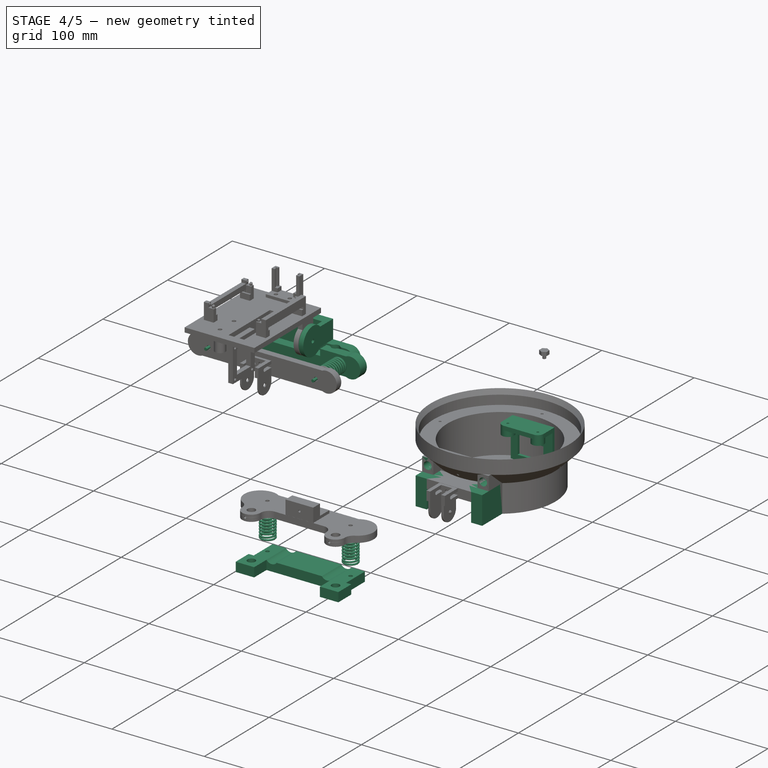
[diagram: stage 4 of 5 — iso view after this stage's code; geometry added in this stage tinted green]
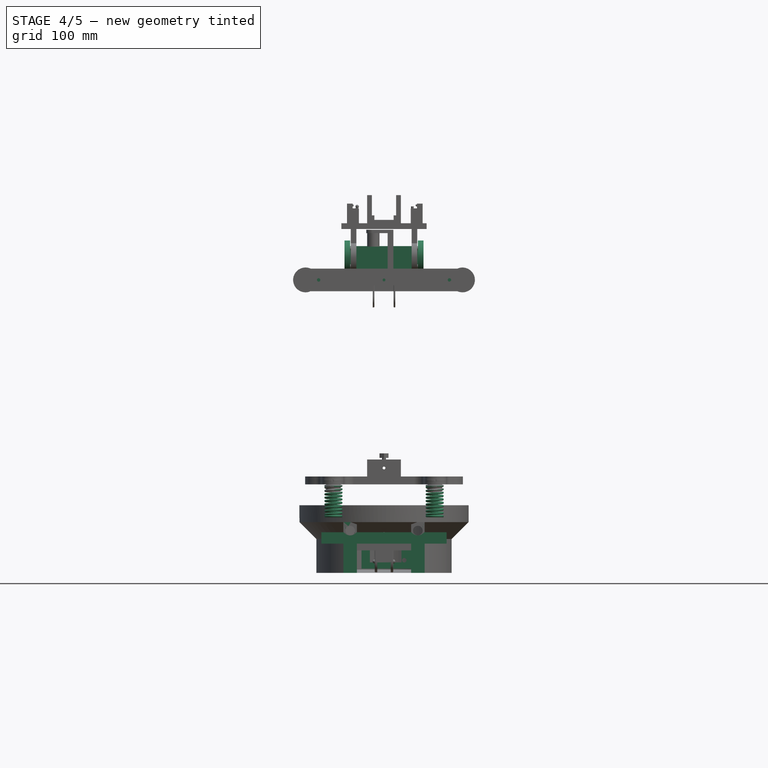
[diagram: stage 4 of 5 — front view after this stage's code; geometry added in this stage tinted green]
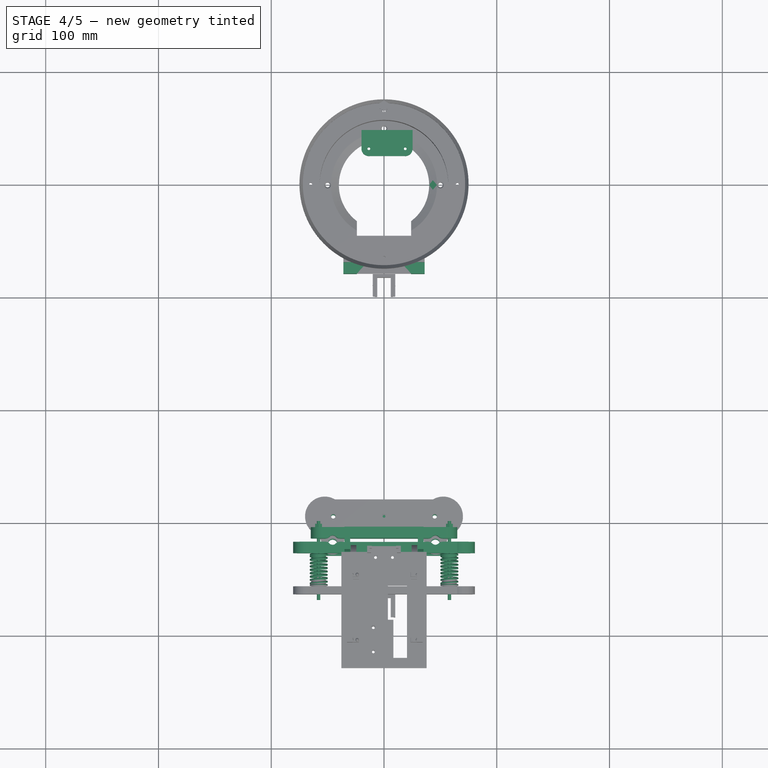
[diagram: stage 4 of 5 — top view after this stage's code; geometry added in this stage tinted green]
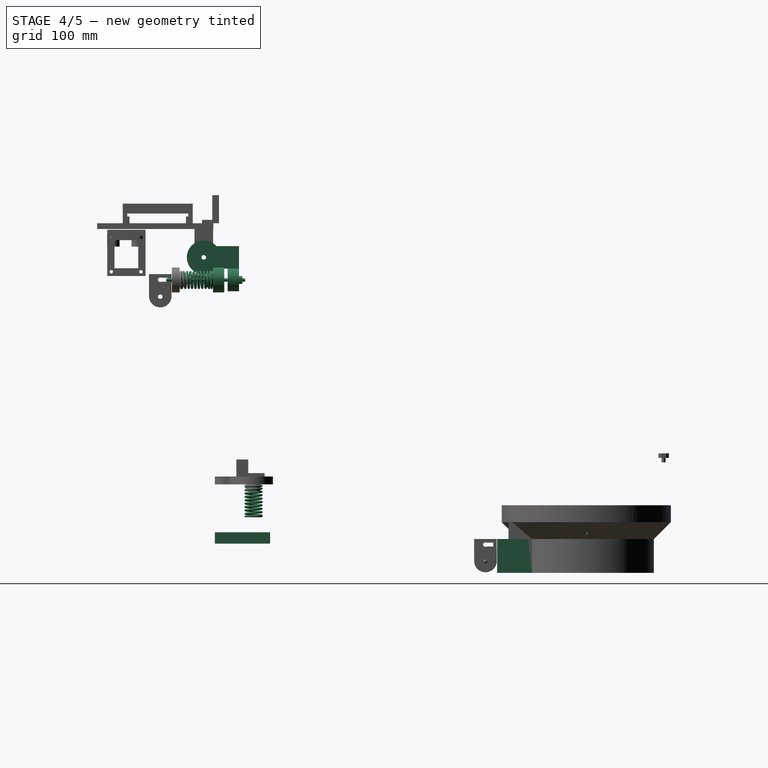
[diagram: stage 4 of 5 — right view after this stage's code; geometry added in this stage tinted green]
FEATURE [Part::MultiFuse] Fusion  label="base004"
  Shapes = -> [Chamfer,Pad005]
FEATURE [Sketcher::SketchObject] Sketch011
  ExternalGeometry = -> [Fusion]
  Placement = pos=(0,-80,0) rot=(1,0,0;1.5708rad)
  Support = -> Fusion [Face1]
  sketch-geometry (10):
    g0: LineSegment StartX=-12.5 StartY=-2.5 StartZ=0 EndX=12.5 EndY=-2.5 EndZ=0
    g1: LineSegment StartX=15 StartY=-5 StartZ=0 EndX=15 EndY=-27.5 EndZ=0
    g2: LineSegment StartX=15 StartY=-27.5 StartZ=0 EndX=10 EndY=-27.5 EndZ=0
    g3: LineSegment StartX=-15 StartY=-27.5 StartZ=0 EndX=-15 EndY=-5 EndZ=0
    g4: ArcOfCircle CenterX=12.5 CenterY=-5 CenterZ=0 NormalX=0 NormalY=0 NormalZ=1 Radius=2.5 StartAngle=0 EndAngle=1.5708
    g5: ArcOfCircle CenterX=-12.5 CenterY=-5 CenterZ=0 NormalX=0 NormalY=0 NormalZ=1 Radius=2.5 StartAngle=1.5708 EndAngle=3.14159
    g6: LineSegment StartX=10 StartY=-27.5 StartZ=0 EndX=10 EndY=-37.5 EndZ=0
    g7: LineSegment StartX=10 StartY=-37.5 StartZ=0 EndX=-10 EndY=-37.5 EndZ=0
    g8: LineSegment StartX=-10 StartY=-37.5 StartZ=0 EndX=-10 EndY=-27.5 EndZ=0
    g9: LineSegment StartX=-10 StartY=-27.5 StartZ=0 EndX=-15 EndY=-27.5 EndZ=0
  constraints (28):
    c: Coincident(g1,g2)
    c: Coincident(g9,g3)
    c: Horizontal(g0)
    c: Horizontal(g2)
    c: Vertical(g1)
    c: Vertical(g3)
    c: PointOnObject(g-3,g3)
    c: PointOnObject(g-5,g1)
    c: Tangent(g0,g4) = 1.5708
    c: Tangent(g1,g4) = 1.5708
    c: Tangent(g0,g5) = 1.5708
    c: Tangent(g3,g5) = 1.5708
    c: Coincident(g3,g-3)
    c: Coincident(g1,g-5)
    c: Radius(g4) = 2.5
    c: Coincident(g6,g7)
    c: Coincident(g7,g8)
    c: Horizontal(g7)
    c: Vertical(g6)
    c: Vertical(g8)
    c: PointOnObject(g6,g2)
    c: Distance(g0,g2) = 25
    c: Symmetric(g8,g6,g-2)
    c: Distance(g6,g-6) = 10
    c: PointOnObject(g2,g6)
    c: PointOnObject(g9,g8)
    c: Tangent(g2,g9)
    c: Distance(g6) = 10
FEATURE [PartDesign::Pocket] Pocket004
  Length = 25
  Sketch = -> Sketch011
  Type = 0
FEATURE [Sketcher::SketchObject] Sketch012
  ExternalGeometry = -> [Pocket004]
  Placement = pos=(20,0,0) rot=(0.57735,0.57735,0.57735;2.0944rad)
  Support = -> Pocket004 [Face5]
  sketch-geometry (5):
    g0: LineSegment [constr] StartX=-73.5685 StartY=0 StartZ=0 EndX=-73.5685 EndY=-30 EndZ=0
    g1: ArcOfCircle CenterX=-73.5685 CenterY=-11.5 CenterZ=0 NormalX=0 NormalY=0 NormalZ=1 Radius=2.5 StartAngle=-1e-12 EndAngle=3.14159
    g2: ArcOfCircle CenterX=-73.5685 CenterY=-23.5 CenterZ=0 NormalX=0 NormalY=0 NormalZ=1 Radius=2.5 StartAngle=3.14159 EndAngle=6.28319
    g3: LineSegment StartX=-76.0685 StartY=-11.5 StartZ=0 EndX=-76.0685 EndY=-23.5 EndZ=0
    g4: LineSegment StartX=-71.0685 StartY=-11.5 StartZ=0 EndX=-71.0685 EndY=-23.5 EndZ=0
  constraints (14):
    c: Vertical(g0)
    c: PointOnObject(g0,g-4)
    c: PointOnObject(g0,g-1)
    c: Tangent(g1,g4) = 1.5708
    c: Tangent(g1,g3) = -1.5708
    c: Tangent(g3,g2) = -1.5708
    c: Tangent(g4,g2) = 1.5708
    c: Vertical(g3)
    c: Equal(g1,g2)
    c: PointOnObject(g1,g0)
    c: Radius(g1) = 2.5
    c: Distance(g4) = 12
    c: Distance(g2,g-4) = 6.5
    c: Distance(g-4,g0) = 17
FEATURE [PartDesign::Pocket] Pocket005  label="base005"
  Length = 5
  Sketch = -> Sketch012
  Type = 1
FEATURE [Sketcher::SketchObject] Sketch016
  Placement = pos=(-15,45,10) rot=(0.57735,-0.57735,-0.57735;4.18879rad)
  sketch-geometry (23):
    g0: LineSegment StartX=36.17 StartY=4.95 StartZ=0 EndX=-4.95 EndY=4.95 EndZ=0
    g1: LineSegment StartX=-4.95 StartY=4.95 StartZ=0 EndX=-4.95 EndY=-40.34 EndZ=0
    g2: LineSegment StartX=-4.95 StartY=-40.34 StartZ=0 EndX=36.17 EndY=-40.34 EndZ=0
    g3: LineSegment StartX=36.17 StartY=-40.34 StartZ=0 EndX=36.17 EndY=4.95 EndZ=0
    g4: LineSegment [constr] StartX=-4.95 StartY=-2.45 StartZ=0 EndX=2.45 EndY=-2.45 EndZ=0
    g5: LineSegment [constr] StartX=28.77 StartY=-2.45 StartZ=0 EndX=36.17 EndY=-2.45 EndZ=0
    g6: LineSegment [constr] StartX=2.45 StartY=4.95 StartZ=0 EndX=2.45 EndY=-2.45 EndZ=0
    g7: LineSegment [constr] StartX=2.45 StartY=-32.94 StartZ=0 EndX=2.45 EndY=-40.34 EndZ=0
    g8: Circle CenterX=2.45 CenterY=-2.45 CenterZ=0 NormalX=0 NormalY=0 NormalZ=1 Radius=2
    g9: Circle CenterX=2.45 CenterY=-32.94 CenterZ=0 NormalX=0 NormalY=0 NormalZ=1 Radius=2
    g10: Circle CenterX=28.77 CenterY=-32.94 CenterZ=0 NormalX=0 NormalY=0 NormalZ=1 Radius=2
    g11: LineSegment StartX=1.43843 StartY=-27.4479 StartZ=0 EndX=15.1784 EndY=-27.4489 EndZ=0
    g12: LineSegment StartX=15.1784 StartY=-27.4489 StartZ=0 EndX=15.1782 EndY=-30.4993 EndZ=0
    g13: LineSegment StartX=15.1782 StartY=-30.4993 StartZ=0 EndX=24.5782 EndY=-30.5 EndZ=0
    g14: LineSegment StartX=30.7295 StartY=-23.7075 StartZ=0 EndX=30.7295 EndY=-13.3475 EndZ=0
    g15: LineSegment StartX=25.7919 StartY=-2.5 StartZ=0 EndX=8.91187 EndY=-2.5 EndZ=0
    g16: LineSegment StartX=1.44 StartY=-6.33792 StartZ=0 EndX=1.43843 EndY=-27.4479 EndZ=0
    g17: LineSegment StartX=1.44 StartY=-6.33792 StartZ=0 EndX=8.91187 EndY=-6.33792 EndZ=0
    g18: LineSegment StartX=8.91187 StartY=-6.33792 StartZ=0 EndX=8.91187 EndY=-2.5 EndZ=0
    g19: LineSegment StartX=30.7295 StartY=-13.3475 StartZ=0 EndX=30.7295 EndY=-2.5 EndZ=0
    g20: LineSegment StartX=30.7295 StartY=-2.5 StartZ=0 EndX=25.7919 EndY=-2.5 EndZ=0
    g21: LineSegment StartX=24.5782 StartY=-30.5 StartZ=0 EndX=30.7295 EndY=-30.5 EndZ=0
    g22: LineSegment StartX=30.7295 StartY=-30.5 StartZ=0 EndX=30.7295 EndY=-23.7075 EndZ=0
  constraints (70):
    c: DistanceX(g5) = 28.77
    c: DistanceY(g5) = -2.45
    c: DistanceX(g4) = 2.45
    c: DistanceY(g4) = -2.45
    c: DistanceX(g10) = 28.77
    c: DistanceY(g10) = -32.94
    c: DistanceX(g7) = 2.45
    c: DistanceY(g7) = -32.94
    c: Equal(g5,g6)
    c: Equal(g6,g4)
    c: Equal(g4,g7)
    c: Distance(g5) = 7.4
    c: Distance(g14,g16) = 29.29
    c: Distance(g11) = 13.74
    c: Distance(g13) = 9.4
    c: Distance(g16) = 21.11
    c: Distance(g13,g15) = 28
    c: Distance(g14) = 10.36
    c: Distance(g15,g0) = 7.45
    c: Distance(g16,g1) = 6.39
    c: Coincident(g0,g1)
    c: Coincident(g3,g0)
    c: Coincident(g1,g2)
    c: Coincident(g3,g2)
    c: Coincident(g4,g6)
    c: Coincident(g12,g11)
    c: Coincident(g16,g11)
    c: Coincident(g13,g12)
    c: Equal(g0,g2)
    c: Equal(g1,g3)
    c: Perpendicular(g3,g0)
    c: PointOnObject(g6,g0)
    c: Perpendicular(g6,g4)
    c: PointOnObject(g4,g1)
    c: PointOnObject(g4,g5)
    c: Horizontal(g4)
    c: PointOnObject(g7,g2)
    c: Horizontal(g2)
    c: PointOnObject(g5,g3)
    c: Perpendicular(g12,g11)
    c: Perpendicular(g13,g12)
    c: Perpendicular(g11,g16)
    c: DistanceX(g15) = 25.7919
    c: Distance(g15) = 16.88
    c: DistanceX(g11) = 1.43843
    c: Coincident(g8,g4)
    c: Coincident(g9,g7)
    c: PointOnObject(g7,g6)
    c: Radius(g10) = 2
    c: Equal(g10,g9)
    c: Equal(g10,g8)
    c: Horizontal(g17)
    c: Coincident(g17,g18)
    c: Vertical(g18)
    c: Coincident(g17,g16)
    c: Coincident(g18,g15)
    c: Distance(g17) = 7.47187
    c: Vertical(g19)
    c: Coincident(g19,g20)
    c: Horizontal(g20)
    c: Coincident(g20,g15)
    c: Coincident(g19,g14)
    c: Horizontal(g21)
    c: Coincident(g21,g22)
    c: Vertical(g22)
    c: Coincident(g21,g13)
    c: Coincident(g22,g14)
    c: Vertical(g14)
    c: Distance(g12) = 3.05036
    c: Distance(g19) = 10.8475
FEATURE [PartDesign::Pad] Pad009  label="fixDriver_001"
  Length = 3
  Length2 = 100
  Placement = pos=(-15,45,10) rot=(0.57735,-0.57735,-0.57735;4.18879rad)
  Sketch = -> Sketch016
  Type = 0
FEATURE [App::DocumentObjectGroup] Groupe003  label="GR_intermediaire"
  Group = -> [Cut007,Pocket007]
FEATURE [Sketcher::SketchObject] Sketch022
  ExternalGeometry = -> [Pocket005]
  Placement = pos=(0,-80,0) rot=(1,0,0;1.5708rad)
  Support = -> Pocket005 [Face1]
  sketch-geometry (4):
    g0: LineSegment StartX=-15 StartY=2 StartZ=0 EndX=15 EndY=2 EndZ=0
    g1: LineSegment StartX=15 StartY=2 StartZ=0 EndX=15 EndY=-33 EndZ=0
    g2: LineSegment StartX=15 StartY=-33 StartZ=0 EndX=-15 EndY=-33 EndZ=0
    g3: LineSegment StartX=-15 StartY=-33 StartZ=0 EndX=-15 EndY=2 EndZ=0
  constraints (12):
    c: Coincident(g0,g1)
    c: Coincident(g1,g2)
    c: Coincident(g2,g3)
    c: Coincident(g3,g0)
    c: Horizontal(g0)
    c: Horizontal(g2)
    c: Vertical(g1)
    c: Vertical(g3)
    c: PointOnObject(g1,g-4)
    c: PointOnObject(g2,g-3)
    c: DistanceY(g-1,g0) = 2
    c: Distance(g1) = 35
FEATURE [PartDesign::Pocket] Pocket008  label="base006"
  Length = 14.1
  Sketch = -> Sketch022
  Type = 0
FEATURE [Part::MultiFuse] Fusion003  label="base007"
  Shapes = -> [Pocket008,Fusion002]
FEATURE [Sketcher::SketchObject] Sketch031
  ExternalGeometry = -> [Fusion003]
  Placement = pos=(0,0,0) rot=(1,0,0;3.14159rad)
  Support = -> Fusion003 [Face58]
  sketch-geometry (12):
    g0: LineSegment StartX=-36 StartY=48 StartZ=0 EndX=-36 EndY=69 EndZ=0
    g1: LineSegment StartX=-36 StartY=69 StartZ=0 EndX=-24 EndY=69 EndZ=0
    g2: LineSegment StartX=-24 StartY=69 StartZ=0 EndX=-24 EndY=57.25 EndZ=0
    g3: LineSegment StartX=-24 StartY=57.25 StartZ=0 EndX=-20 EndY=57.25 EndZ=0
    g4: LineSegment StartX=-20 StartY=57.25 StartZ=0 EndX=-20 EndY=56.5685 EndZ=0
    g5: LineSegment StartX=-20 StartY=56.5685 StartZ=0 EndX=-36 EndY=48 EndZ=0
    g6: LineSegment StartX=36 StartY=48 StartZ=0 EndX=36 EndY=69 EndZ=0
    g7: LineSegment StartX=36 StartY=69 StartZ=0 EndX=24 EndY=69 EndZ=0
    g8: LineSegment StartX=24 StartY=69 StartZ=0 EndX=24 EndY=57.25 EndZ=0
    g9: LineSegment StartX=24 StartY=57.25 StartZ=0 EndX=20 EndY=57.25 EndZ=0
    g10: LineSegment StartX=20 StartY=57.25 StartZ=0 EndX=20 EndY=56.5685 EndZ=0
    g11: LineSegment StartX=20 StartY=56.5685 StartZ=0 EndX=36 EndY=48 EndZ=0
  constraints (34):
    c: Vertical(g0)
    c: Coincident(g0,g1)
    c: Horizontal(g1)
    c: Coincident(g1,g2)
    c: Vertical(g2)
    c: Coincident(g2,g3)
    c: Horizontal(g3)
    c: Coincident(g3,g4)
    c: Vertical(g4)
    c: Coincident(g4,g5)
    c: Vertical(g6)
    c: Coincident(g6,g7)
    c: Horizontal(g7)
    c: Coincident(g7,g8)
    c: Vertical(g8)
    c: Coincident(g8,g9)
    c: Horizontal(g9)
    c: Coincident(g9,g10)
    c: Vertical(g10)
    c: Coincident(g10,g11)
    c: Coincident(g0,g-11)
    c: Coincident(g1,g-11)
    c: PointOnObject(g3,g-4)
    c: Coincident(g0,g-6)
    c: Coincident(g2,g-5)
    c: Coincident(g4,g-4)
    c: Coincident(g5,g0)
    c: Coincident(g6,g-12)
    c: Coincident(g7,g-12)
    c: PointOnObject(g9,g-10)
    c: Coincident(g8,g-7)
    c: Coincident(g10,g-10)
    c: Coincident(g6,g-9)
    c: Coincident(g11,g6)
FEATURE [PartDesign::Pad] Pad020  label="base008"
  Length = 30
  Length2 = 100
  Sketch = -> Sketch031
  Type = 0
FEATURE [Sketcher::SketchObject] Sketch032
  Placement = pos=(0,-80,0) rot=(1,0,0;1.5708rad)
  Support = -> Pad020 [Face1]
  sketch-geometry (6):
    g0: LineSegment [constr] StartX=-75.0992 StartY=15 StartZ=0 EndX=75.0992 EndY=15 EndZ=0
    g1: LineSegment [constr] StartX=-75.0992 StartY=7.5 StartZ=0 EndX=75.0992 EndY=7.5 EndZ=0
    g2: LineSegment [constr] StartX=-75.0992 StartY=0 StartZ=0 EndX=75.0992 EndY=0 EndZ=0
    g3: LineSegment [constr] StartX=-75.0992 StartY=15 StartZ=0 EndX=-75.0992 EndY=0 EndZ=0
    g4: Circle CenterX=-30 CenterY=7.5 CenterZ=0 NormalX=0 NormalY=0 NormalZ=1 Radius=4.25
    g5: Circle CenterX=30 CenterY=7.5 CenterZ=0 NormalX=0 NormalY=0 NormalZ=1 Radius=4.25
  constraints (19):
    c: Horizontal(g0)
    c: Horizontal(g1)
    c: Horizontal(g2)
    c: Equal(g1,g2)
    c: Equal(g2,g0)
    c: Symmetric(g2,g2,g-2)
    c: Vertical(g3)
    c: Coincident(g3,g2)
    c: PointOnObject(g1,g3)
    c: Coincident(g0,g3)
    c: PointOnObject(g2,g-1)
    c: Symmetric(g2,g0,g1)
    c: PointOnObject(g5,g1)
    c: PointOnObject(g4,g1)
    c: DistanceY(g-1,g0) = 15
    c: Radius(g5) = 4.25
    c: Equal(g5,g4)
    c: Symmetric(g4,g5,g-2)
    c: DistanceX(g-2,g5) = 30
FEATURE [PartDesign::Pocket] Pocket009  label="base009"
  Length = 30
  Sketch = -> Sketch032
  Type = 2
FEATURE [App::DocumentObjectGroup] Groupe018  label="SGR_pinceMid"
  Group = -> [Clone005,Pad025,Pad026]
FEATURE [Part::Feature] Part__Feature003  label="ressort"
  Placement = pos=(-44.8247,-295.055,20.2261) rot=(0,0,1;0rad)
  shape: bbox 23.13 x 25.95 x 30.49 mm, 15 faces (baked)
FEATURE [Part::FeaturePython] Clone006  label="Clone of ressort"  # Draft clone (typed FeaturePython)
  Objects = -> [Part__Feature003]
  Placement = pos=(44.9621,-295.055,20.226) rot=(0,0,1;0rad)
  Scale = (1,1,1)
FEATURE [Part::MultiFuse] Fusion004  label="ressorts"
  Shapes = -> [Part__Feature003,Clone006]
FEATURE [App::DocumentObjectGroup] Groupe022  label="GR_ecrou"
  Group = -> [Pad029,Clone008,Clone009]
FEATURE [Sketcher::SketchObject] Sketch045
  ExternalGeometry = -> [Pocket011]
  Placement = pos=(0,0,6) rot=(0,0,1;0rad)
  Support = -> Pocket011 [Face6]
  sketch-geometry (10):
    g0: Circle CenterX=45.5621 CenterY=-319.297 CenterZ=0 NormalX=0 NormalY=0 NormalZ=1 Radius=4.25
    g1: Circle CenterX=-45.5621 CenterY=-319.297 CenterZ=0 NormalX=0 NormalY=0 NormalZ=1 Radius=4.25
    g2: LineSegment StartX=-55.5621 StartY=-309.297 StartZ=0 EndX=-35.5621 EndY=-309.297 EndZ=0
    g3: LineSegment StartX=-35.5621 StartY=-309.297 StartZ=0 EndX=-35.5621 EndY=-329.297 EndZ=0
    g4: LineSegment StartX=-35.5621 StartY=-329.297 StartZ=0 EndX=-55.5621 EndY=-329.297 EndZ=0
    g5: LineSegment StartX=-55.5621 StartY=-329.297 StartZ=0 EndX=-55.5621 EndY=-309.297 EndZ=0
    g6: LineSegment StartX=35.5621 StartY=-309.297 StartZ=0 EndX=55.5621 EndY=-309.297 EndZ=0
    g7: LineSegment StartX=55.5621 StartY=-309.297 StartZ=0 EndX=55.5621 EndY=-329.297 EndZ=0
    g8: LineSegment StartX=55.5621 StartY=-329.297 StartZ=0 EndX=35.5621 EndY=-329.297 EndZ=0
    g9: LineSegment StartX=35.5621 StartY=-329.297 StartZ=0 EndX=35.5621 EndY=-309.297 EndZ=0
  constraints (30):
    c: Radius(g1) = 4.25
    c: Equal(g1,g0)
    c: Coincident(g2,g3)
    c: Coincident(g3,g4)
    c: Coincident(g4,g5)
    c: Coincident(g5,g2)
    c: Horizontal(g2)
    c: Horizontal(g4)
    c: Vertical(g3)
    c: Vertical(g5)
    c: Coincident(g6,g7)
    c: Coincident(g7,g8)
    c: Coincident(g8,g9)
    c: Coincident(g9,g6)
    c: Horizontal(g6)
    c: Horizontal(g8)
    c: Vertical(g7)
    c: Vertical(g9)
    c: PointOnObject(g2,g-3)
    c: PointOnObject(g6,g-4)
    c: Equal(g2,g6)
    c: Equal(g9,g3)
    c: PointOnObject(g6,g2)
    c: Distance(g6,g-6) = 1
    c: Distance(g4) = 20
    c: Equal(g2,g5)
    c: Distance(g1,g5) = 10
    c: Distance(g0,g7) = 10
    c: Distance(g1,g4) = 10
    c: Distance(g0,g8) = 10
FEATURE [PartDesign::Pad] Pad030  label="pinceBas003"
  Length = 10
  Length2 = 100
  Placement = pos=(0,0,-4) rot=(0,0,1;0rad)
  Reversed = true
  Sketch = -> Sketch045
  Type = 0
FEATURE [App::DocumentObjectGroup] Groupe028  label="ressortTraveling"
  Group = -> [Fusion004]
FEATURE [Part::Feature] Part__Feature004  label="ressort001"
  Placement = pos=(-57.8678,-332.3,229.749) rot=(1,0,0;1.5708rad)
  shape: bbox 23.13 x 30.49 x 25.95 mm, 15 faces (baked)
FEATURE [Part::FeaturePython] Clone012  label="Clone of ressort001"  # Draft clone (typed FeaturePython)
  Objects = -> [Part__Feature004]
  Placement = pos=(57.9855,-332.3,229.749) rot=(1,0,0;1.5708rad)
  Scale = (1,1,1)
FEATURE [Part::MultiFuse] Fusion005  label="ressort002"
  Shapes = -> [Part__Feature004,Clone012]
FEATURE [PartDesign::Fillet] Fillet009  label="moveUpD004"
  Base = -> Fillet008 [Edge19,Edge3,Edge29,Edge7]
  Radius = 9.95
FEATURE [Sketcher::SketchObject] Sketch054
  Placement = pos=(0,-367.5,0) rot=(1,0,0;1.5708rad)
  sketch-geometry (2):
    g0: Circle CenterX=-58 CenterY=229.797 CenterZ=0 NormalX=0 NormalY=0 NormalZ=1 Radius=1.5
    g1: Circle CenterX=58 CenterY=229.797 CenterZ=0 NormalX=0 NormalY=0 NormalZ=1 Radius=1.5
  constraints (6):
    c: Radius(g0) = 1.5
    c: Equal(g0,g1)
    c: DistanceX(g0) = -58
    c: DistanceY(g0) = 229.797
    c: DistanceX(g1) = 58
    c: DistanceY(g1) = 229.797
FEATURE [PartDesign::Pad] Pad036  label="visMoveUp001"
  Length = 5
  Length2 = 65
  Placement = pos=(0,-367.5,0) rot=(1,0,0;1.5708rad)
  Sketch = -> Sketch054
  Type = 4
FEATURE [Sketcher::SketchObject] Sketch055
  Placement = pos=(0,-367.5,0) rot=(1,0,0;1.5708rad)
  sketch-geometry (16):
    g0: LineSegment StartX=-61.0311 StartY=228.047 StartZ=0 EndX=-58 EndY=226.297 EndZ=0
    g1: LineSegment StartX=-58 StartY=226.297 StartZ=0 EndX=-54.9689 EndY=228.047 EndZ=0
    g2: LineSegment StartX=-54.9689 StartY=228.047 StartZ=0 EndX=-54.9689 EndY=231.547 EndZ=0
    g3: LineSegment StartX=-54.9689 StartY=231.547 StartZ=0 EndX=-58 EndY=233.297 EndZ=0
    g4: LineSegment StartX=-58 StartY=233.297 StartZ=0 EndX=-61.0311 EndY=231.547 EndZ=0
    g5: LineSegment StartX=-61.0311 StartY=231.547 StartZ=0 EndX=-61.0311 EndY=228.047 EndZ=0
    g6: Circle [constr] CenterX=-58 CenterY=229.797 CenterZ=0 NormalX=0 NormalY=0 NormalZ=1 Radius=3.5
    g7: LineSegment StartX=58 StartY=226.297 StartZ=0 EndX=61.0311 EndY=228.047 EndZ=0
    g8: LineSegment StartX=61.0311 StartY=228.047 StartZ=0 EndX=61.0311 EndY=231.547 EndZ=0
    g9: LineSegment StartX=61.0311 StartY=231.547 StartZ=0 EndX=58 EndY=233.297 EndZ=0
    g10: LineSegment StartX=58 StartY=233.297 StartZ=0 EndX=54.9689 EndY=231.547 EndZ=0
    g11: LineSegment StartX=54.9689 StartY=231.547 StartZ=0 EndX=54.9689 EndY=228.047 EndZ=0
    g12: LineSegment StartX=54.9689 StartY=228.047 StartZ=0 EndX=58 EndY=226.297 EndZ=0
    g13: Circle [constr] CenterX=58 CenterY=229.797 CenterZ=0 NormalX=0 NormalY=0 NormalZ=1 Radius=3.5
    g14: Circle CenterX=-58 CenterY=229.797 CenterZ=0 NormalX=0 NormalY=0 NormalZ=1 Radius=1.5
    g15: Circle CenterX=58 CenterY=229.797 CenterZ=0 NormalX=0 NormalY=0 NormalZ=1 Radius=1.5
  constraints (38):
    c: Coincident(g0,g1)
    c: Coincident(g1,g2)
    c: Coincident(g2,g3)
    c: Coincident(g3,g4)
    c: Coincident(g4,g5)
    c: Coincident(g5,g0)
    c: Equal(g0, g1-g5) x5
    c: PointOnObject(g0,g6)
    c: PointOnObject(g1,g6)
    c: PointOnObject(g2,g6)
    c: PointOnObject(g3,g6)
    c: PointOnObject(g4,g6)
    c: PointOnObject(g5,g6)
    c: Vertical(g5)
    c: Coincident(g7,g8)
    c: Coincident(g8,g9)
    c: Coincident(g9,g10)
    c: Coincident(g10,g11)
    c: Coincident(g11,g12)
    c: Coincident(g12,g7)
    c: Equal(g7, g8-g12) x5
    c: PointOnObject(g7,g13)
    c: PointOnObject(g8,g13)
    c: PointOnObject(g9,g13)
    c: PointOnObject(g10,g13)
    c: PointOnObject(g11,g13)
    c: PointOnObject(g12,g13)
    c: Vertical(g11)
    c: Radius(g6) = 3.5
    c: Equal(g6,g13)
    c: Coincident(g15,g13)
    c: Coincident(g14,g6)
    c: Radius(g15) = 1.5
    c: Equal(g15,g14)
    c: DistanceX(g6) = -58
    c: DistanceY(g6) = 229.797
    c: DistanceX(g13) = 58
    c: DistanceY(g13) = 229.797
FEATURE [PartDesign::Pad] Pad037  label="ecrouMoveUp002"
  Length = 3
  Length2 = 100
  Placement = pos=(0,-367.5,0) rot=(1,0,0;1.5708rad)
  Sketch = -> Sketch055
  Type = 0
FEATURE [Part::FeaturePython] Clone014  label="Clone of ecrouMoveUp002"  # Draft clone (typed FeaturePython)
  Objects = -> [Pad037]
  Placement = pos=(0,-351.4,0) rot=(1,0,0;1.5708rad)
  Scale = (1,1,1)
FEATURE [Part::FeaturePython] Clone015  label="Clone of ecrouMoveUp003"  # Draft clone (typed FeaturePython)
  Objects = -> [Pad037]
  Placement = pos=(0,-304.95,0) rot=(1,0,0;1.5708rad)
  Scale = (1,1,1)
FEATURE [App::DocumentObjectGroup] Groupe031  label="GR_visMoveUp"
  Group = -> [Pad036,Pad037,Clone014,Clone015]
FEATURE [Sketcher::SketchObject] Sketch056
  ExternalGeometry = -> [Fillet009]
  Placement = pos=(0,0,239.797) rot=(0,0,1;0rad)
  Support = -> Fillet009 [Face1]
  sketch-geometry (5):
    g0: GeomPoint [constr] X=0 Y=-318 Z=0
    g1: LineSegment StartX=-35 StartY=-308 StartZ=0 EndX=35 EndY=-308 EndZ=0
    g2: LineSegment StartX=35 StartY=-308 StartZ=0 EndX=35 EndY=-318 EndZ=0
    g3: LineSegment StartX=35 StartY=-318 StartZ=0 EndX=-35 EndY=-318 EndZ=0
    g4: LineSegment StartX=-35 StartY=-318 StartZ=0 EndX=-35 EndY=-308 EndZ=0
  constraints (13):
    c: Symmetric(g-4,g-4,g0)
    c: Coincident(g1,g2)
    c: Coincident(g2,g3)
    c: Coincident(g3,g4)
    c: Coincident(g4,g1)
    c: Horizontal(g1)
    c: Horizontal(g3)
    c: Vertical(g2)
    c: Vertical(g4)
    c: PointOnObject(g1,g-3)
    c: PointOnObject(g3,g-4)
    c: Symmetric(g3,g2,g0)
    c: Distance(g2,g4) = 70
FEATURE [PartDesign::Pad] Pad038  label="moveUpD005"
  Length = 20
  Length2 = 100
  Sketch = -> Sketch056
  Type = 0
FEATURE [Sketcher::SketchObject] Sketch057
  ExternalGeometry = -> [Pad038]
  Placement = pos=(-35,0,0) rot=(0.57735,-0.57735,-0.57735;2.0944rad)
  Support = -> Pad038 [Face5]
  sketch-geometry (7):
    g0: GeomPoint [constr] X=318 Y=249.797 Z=0
    g1: LineSegment StartX=318 StartY=239.797 StartZ=0 EndX=328 EndY=239.797 EndZ=0
    g2: LineSegment StartX=328 StartY=259.797 StartZ=0 EndX=318 EndY=259.797 EndZ=0
    g3: LineSegment StartX=318 StartY=259.797 StartZ=0 EndX=318 EndY=239.797 EndZ=0
    g4: LineSegment [constr] StartX=318 StartY=249.797 StartZ=0 EndX=339.18 EndY=249.797 EndZ=0
    g5: ArcOfCircle CenterX=339.18 CenterY=249.797 CenterZ=0 NormalX=0 NormalY=0 NormalZ=1 Radius=15 StartAngle=3.87132 EndAngle=8.69505
    g6: Circle CenterX=339.18 CenterY=249.797 CenterZ=0 NormalX=0 NormalY=0 NormalZ=1 Radius=2
  constraints (18):
    c: PointOnObject(g0,g-4)
    c: Symmetric(g-5,g-6,g0)
    c: Coincident(g2,g3)
    c: Coincident(g3,g1)
    c: Horizontal(g1)
    c: Horizontal(g2)
    c: Vertical(g3)
    c: Symmetric(g1,g2,g0)
    c: Horizontal(g4)
    c: Coincident(g4,g0)
    c: Coincident(g5,g4)
    c: Distance(g2) = 10
    c: Coincident(g2,g-5)
    c: Coincident(g5,g1)
    c: Radius(g5) = 15
    c: Coincident(g5,g2)
    c: Coincident(g6,g4)
    c: Radius(g6) = 2
FEATURE [PartDesign::Pad] Pad039  label="moveUpD006"
  Length = 70
  Length2 = 100
  Reversed = true
  Sketch = -> Sketch057
  Type = 0
FEATURE [Sketcher::SketchObject] Sketch058
  ExternalGeometry = -> [Pad039]
  Placement = pos=(0,0,259.797) rot=(0,0,1;0rad)
  Support = -> Pad039 [Face18]
  sketch-geometry (5):
    g0: GeomPoint [constr] X=0 Y=-318 Z=0
    g1: LineSegment StartX=-30 StartY=-318 StartZ=0 EndX=30 EndY=-318 EndZ=0
    g2: LineSegment StartX=30 StartY=-318 StartZ=0 EndX=30 EndY=-378 EndZ=0
    g3: LineSegment StartX=30 StartY=-378 StartZ=0 EndX=-30 EndY=-378 EndZ=0
    g4: LineSegment StartX=-30 StartY=-378 StartZ=0 EndX=-30 EndY=-318 EndZ=0
  constraints (13):
    c: Symmetric(g-3,g-3,g0)
    c: Coincident(g1,g2)
    c: Coincident(g2,g3)
    c: Coincident(g3,g4)
    c: Coincident(g4,g1)
    c: Horizontal(g1)
    c: Horizontal(g3)
    c: Vertical(g2)
    c: Vertical(g4)
    c: PointOnObject(g1,g-3)
    c: Distance(g1,g-3) = 5
    c: Symmetric(g1,g1,g0)
    c: Distance(g2) = 60
FEATURE [PartDesign::Pocket] Pocket016  label="moveUpD007"
  Length = 50
  Midplane = true
  Sketch = -> Sketch058
  Type = 0
FEATURE [Part::Sphere] Sphere  label="Sphère"
  Angle1 = -90
  Angle2 = 90
  Angle3 = 360
  Radius = 2
FEATURE [Part::FeaturePython] Array  # Draft array (typed FeaturePython)
  Angle = 360
  ArrayType = 1
  Axis = (1,0,0)
  Base = -> Sphere
  Center = (0,-8,-8)
  Fuse = true
  IntervalAxis = (0,0,0)
  IntervalX = (0,0,0)
  IntervalY = (0,0,0)
  IntervalZ = (0,0,0)
  NumberPolar = 8
  NumberX = 1
  NumberY = 1
  NumberZ = 1
  Placement = pos=(30,-331.2,257.8) rot=(0,0,1;0rad)
FEATURE [Part::FeaturePython] Clone016  label="Clone of Array"  # Draft clone (typed FeaturePython)
  Objects = -> [Array]
  Placement = pos=(30,-331.2,257.8) rot=(0,0,1;0rad)
  Scale = (1,1,1)
FEATURE [Part::FeaturePython] Clone017  label="Clone of Clone of Array"  # Draft clone (typed FeaturePython)
  Objects = -> [Clone016]
  Placement = pos=(-30,-331.2,257.8) rot=(0,0,1;0rad)
  Scale = (1,1,1)
FEATURE [Part::MultiFuse] Fusion006
  Shapes = -> [Clone016,Clone017]
FEATURE [Part::Cut] Cut011  label="moveUpD008"
  Base = -> Pocket016
  Tool = -> Fusion006
FEATURE [App::DocumentObjectGroup] Groupe024  label="SGR_moveUpD"
  Group = -> [Cut010,Fillet008,Fillet009,Pad038,Pad039,Array,Cut011]
FEATURE [Sketcher::SketchObject] Sketch059
  ExternalGeometry = -> [Pad035]
  Placement = pos=(0,-331,459.6) rot=(0,-0.707107,0.707107;3.14159rad)
  Support = -> Pad035 [Face7]
  sketch-geometry (4):
    g0: LineSegment StartX=-37 StartY=226.797 StartZ=0 EndX=37 EndY=226.797 EndZ=0
    g1: LineSegment StartX=37 StartY=226.797 StartZ=0 EndX=37 EndY=191.797 EndZ=0
    g2: LineSegment StartX=37 StartY=191.797 StartZ=0 EndX=-37 EndY=191.797 EndZ=0
    g3: LineSegment StartX=-37 StartY=191.797 StartZ=0 EndX=-37 EndY=226.797 EndZ=0
  constraints (12):
    c: Coincident(g0,g1)
    c: Coincident(g1,g2)
    c: Coincident(g2,g3)
    c: Coincident(g3,g0)
    c: Horizontal(g0)
    c: Horizontal(g2)
    c: Vertical(g1)
    c: Vertical(g3)
    c: Symmetric(g0,g0,g-2)
    c: Distance(g0,g-3) = 7
    c: Distance(g3) = 35
    c: DistanceX(g-2,g0) = -37
FEATURE [PartDesign::Pocket] Pocket017  label="moveUpMid004"
  Length = 5
  Placement = pos=(0,-639,459.6) rot=(1,0,0;3.14159rad)
  Sketch = -> Sketch059
  Type = 1
FEATURE [Sketcher::SketchObject] Sketch081
  ExternalGeometry = -> [Pocket009]
  Placement = pos=(0,-69,0) rot=(1,0,0;1.5708rad)
  Support = -> Pocket009 [Face74]
  sketch-geometry (4):
    g0: LineSegment StartX=-35.7369 StartY=0 StartZ=0 EndX=36.2631 EndY=0 EndZ=0
    g1: LineSegment StartX=36.2631 StartY=0 StartZ=0 EndX=36.2631 EndY=-36 EndZ=0
    g2: LineSegment StartX=36.2631 StartY=-36 StartZ=0 EndX=-35.7369 EndY=-36 EndZ=0
    g3: LineSegment StartX=-35.7369 StartY=-36 StartZ=0 EndX=-35.7369 EndY=0 EndZ=0
  constraints (11):
    c: Coincident(g0,g1)
    c: Coincident(g1,g2)
    c: Coincident(g2,g3)
    c: Coincident(g3,g0)
    c: Horizontal(g0)
    c: Horizontal(g2)
    c: Vertical(g1)
    c: Vertical(g3)
    c: PointOnObject(g0,g-1)
    c: Distance(g1) = 36
    c: Distance(g2) = 72
FEATURE [PartDesign::Pocket] Pocket027  label="base010"
  Length = 5
  Reversed = true
  Sketch = -> Sketch081
  Type = 1
FEATURE [Sketcher::SketchObject] Sketch082
  ExternalGeometry = -> [Pocket027]
  Placement = pos=(0,-69,0) rot=(1,0,0;1.5708rad)
  Support = -> Pocket027 [Face33]
  sketch-geometry (4):
    g0: LineSegment StartX=-15 StartY=0 StartZ=0 EndX=15 EndY=0 EndZ=0
    g1: LineSegment StartX=15 StartY=0 StartZ=0 EndX=15 EndY=-30 EndZ=0
    g2: LineSegment StartX=15 StartY=-30 StartZ=0 EndX=-15 EndY=-30 EndZ=0
    g3: LineSegment StartX=-15 StartY=-30 StartZ=0 EndX=-15 EndY=0 EndZ=0
  constraints (12):
    c: Coincident(g0,g1)
    c: Coincident(g1,g2)
    c: Coincident(g2,g3)
    c: Coincident(g3,g0)
    c: Horizontal(g0)
    c: Horizontal(g2)
    c: Vertical(g1)
    c: Vertical(g3)
    c: PointOnObject(g0,g-1)
    c: PointOnObject(g0,g-4)
    c: PointOnObject(g0,g-3)
    c: Coincident(g1,g-4)
FEATURE [PartDesign::Pad] Pad053  label="base011"
  Length = 10
  Length2 = 100
  Reversed = true
  Sketch = -> Sketch082
  Type = 0
FEATURE [Sketcher::SketchObject] Sketch083
  ExternalGeometry = -> [Pad053]
  Placement = pos=(0,-69,0) rot=(1,0,0;1.5708rad)
  Support = -> Pad053 [Face83]
  sketch-geometry (4):
    g0: LineSegment StartX=-36 StartY=0 StartZ=0 EndX=36 EndY=0 EndZ=0
    g1: LineSegment StartX=36 StartY=0 StartZ=0 EndX=36 EndY=-30 EndZ=0
    g2: LineSegment StartX=36 StartY=-30 StartZ=0 EndX=-36 EndY=-30 EndZ=0
    g3: LineSegment StartX=-36 StartY=-30 StartZ=0 EndX=-36 EndY=0 EndZ=0
  constraints (11):
    c: Coincident(g0,g1)
    c: Coincident(g1,g2)
    c: Coincident(g2,g3)
    c: Coincident(g3,g0)
    c: Horizontal(g0)
    c: Horizontal(g2)
    c: Vertical(g1)
    c: Vertical(g3)
    c: Coincident(g0,g-3)
    c: Coincident(g0,g-4)
    c: Coincident(g2,g-7)
FEATURE [PartDesign::Pad] Pad054  label="base012"
  Length = 20
  Length2 = 100
  Midplane = true
  Reversed = true
  Sketch = -> Sketch083
  Type = 0
FEATURE [Sketcher::SketchObject] Sketch084
  Placement = pos=(0,0,20.1) rot=(0,0,1;0rad)
  sketch-geometry (2):
    g0: Circle CenterX=-13.45 CenterY=31.5 CenterZ=0 NormalX=0 NormalY=0 NormalZ=1 Radius=1.25
    g1: Circle CenterX=18.84 CenterY=31.5 CenterZ=0 NormalX=0 NormalY=0 NormalZ=1 Radius=1.25
  constraints (6):
    c: Radius(g0) = 1.25
    c: Equal(g0,g1)
    c: DistanceX(g0) = -13.45
    c: DistanceY(g0) = 31.5
    c: DistanceX(g1) = 18.84
    c: DistanceY(g1) = 31.5
FEATURE [Sketcher::SketchObject] Sketch085
  ExternalGeometry = -> [Pad009]
  Placement = pos=(-15,45,10) rot=(0.57735,0.57735,-0.57735;2.0944rad)
  Support = -> Pad009 [Face20]
  sketch-geometry (4):
    g0: LineSegment StartX=-4.95 StartY=40.34 StartZ=0 EndX=-0.5 EndY=40.34 EndZ=0
    g1: LineSegment StartX=-0.5 StartY=40.34 StartZ=0 EndX=-0.5 EndY=-4.95 EndZ=0
    g2: LineSegment StartX=-0.5 StartY=-4.95 StartZ=0 EndX=-4.95 EndY=-4.95 EndZ=0
    g3: LineSegment StartX=-4.95 StartY=-4.95 StartZ=0 EndX=-4.95 EndY=40.34 EndZ=0
  constraints (12):
    c: Coincident(g0,g1)
    c: Coincident(g1,g2)
    c: Coincident(g2,g3)
    c: Coincident(g3,g0)
    c: Horizontal(g0)
    c: Horizontal(g2)
    c: Vertical(g1)
    c: Vertical(g3)
    c: PointOnObject(g0,g-4)
    c: DistanceX(g-2,g0) = -0.5
    c: Coincident(g0,g-4)
    c: Coincident(g2,g-5)
FEATURE [PartDesign::Pad] Pad055  label="fixDriver_002"
  Length = 20
  Length2 = 100
  Placement = pos=(-15,45,10) rot=(0.57735,-0.57735,-0.57735;4.18879rad)
  Sketch = -> Sketch085
  Type = 0
FEATURE [PartDesign::Pad] Pad056
  Length = 20
  Length2 = 100
  Placement = pos=(0,0,20.1) rot=(0,0,1;0rad)
  Reversed = true
  Sketch = -> Sketch084
  Type = 0
FEATURE [Part::Cut] Cut015  label="fixDriver_003"
  Base = -> Pad055
  Tool = -> Pad056
FEATURE [Sketcher::SketchObject] Sketch086
  ExternalGeometry = -> [Cut015]
  Placement = pos=(0,0,10.5) rot=(1,0,0;3.14159rad)
  Support = -> Cut015 [Face9]
  sketch-geometry (4):
    g0: Circle CenterX=-13.45 CenterY=-31.5 CenterZ=0 NormalX=0 NormalY=0 NormalZ=1 Radius=6.5
    g1: Circle CenterX=18.84 CenterY=-31.5 CenterZ=0 NormalX=0 NormalY=0 NormalZ=1 Radius=6.5
    g2: Circle CenterX=-13.45 CenterY=-31.5 CenterZ=0 NormalX=0 NormalY=0 NormalZ=1 Radius=1.25
    g3: Circle CenterX=18.84 CenterY=-31.5 CenterZ=0 NormalX=0 NormalY=0 NormalZ=1 Radius=1.25
  constraints (8):
    c: Coincident(g1,g-4)
    c: Coincident(g0,g-3)
    c: Tangent(g0,g-5)
    c: Tangent(g1,g-5)
    c: Coincident(g3,g1)
    c: Coincident(g2,g0)
    c: Equal(g3,g2)
    c: Equal(g2,g-3)
FEATURE [PartDesign::Pad] Pad057  label="fixDriver_004"
  Length = 6
  Length2 = 100
  Sketch = -> Sketch086
  Type = 0
FEATURE [PartDesign::Fillet] Fillet  label="fixDriver_005"
  Base = -> Pad057 [Edge47,Edge53]
  Radius = 6.4
FEATURE [Part::FeaturePython] Cutout  label="base013"  # WARN: FeaturePython — macro-defined, semantics opaque (R4)
  Base = -> Pad054
  Mode = 3
  Tool = -> Pad058
FEATURE [Sketcher::SketchObject] Sketch092
  ExternalGeometry = -> [Cutout]
  Placement = pos=(0,-79,0) rot=(1,0,0;1.5708rad)
  Support = -> Cutout [Face41]
  sketch-geometry (4):
    g0: LineSegment StartX=-24 StartY=-10 StartZ=0 EndX=24 EndY=-10 EndZ=0
    g1: LineSegment StartX=24 StartY=-10 StartZ=0 EndX=24 EndY=-40 EndZ=0
    g2: LineSegment StartX=24 StartY=-40 StartZ=0 EndX=-24 EndY=-40 EndZ=0
    g3: LineSegment StartX=-24 StartY=-40 StartZ=0 EndX=-24 EndY=-10 EndZ=0
  constraints (12):
    c: Coincident(g0,g1)
    c: Coincident(g1,g2)
    c: Coincident(g2,g3)
    c: Coincident(g3,g0)
    c: Horizontal(g0)
    c: Horizontal(g2)
    c: Vertical(g1)
    c: Vertical(g3)
    c: Symmetric(g0,g0,g-2)
    c: Distance(g0,g-3) = 12
    c: DistanceY(g-1,g0) = -10
    c: Distance(g3) = 30
FEATURE [PartDesign::Pocket] Pocket032  label="base014"
  Length = 50
  Sketch = -> Sketch092
  Type = 0
FEATURE [Sketcher::SketchObject] Sketch093
  ExternalGeometry = -> [Pocket032]
  Placement = pos=(0,0,-10) rot=(1,0,0;3.14159rad)
  Support = -> Pocket032 [Face5]
  sketch-geometry (4):
    g0: LineSegment StartX=-24 StartY=59 StartZ=0 EndX=24 EndY=59 EndZ=0
    g1: LineSegment StartX=24 StartY=59 StartZ=0 EndX=24 EndY=50 EndZ=0
    g2: LineSegment StartX=24 StartY=50 StartZ=0 EndX=-24 EndY=50 EndZ=0
    g3: LineSegment StartX=-24 StartY=50 StartZ=0 EndX=-24 EndY=59 EndZ=0
  constraints (11):
    c: Coincident(g0,g1)
    c: Coincident(g1,g2)
    c: Coincident(g2,g3)
    c: Coincident(g3,g0)
    c: Horizontal(g0)
    c: Horizontal(g2)
    c: Vertical(g1)
    c: Vertical(g3)
    c: Coincident(g0,g-4)
    c: Coincident(g0,g-5)
    c: Distance(g2,g0) = 9
FEATURE [PartDesign::Pocket] Pocket033  label="base015"
  Length = 9.99
  Sketch = -> Sketch093
  Type = 0
FEATURE [Sketcher::SketchObject] Sketch094
  ExternalGeometry = -> [Pocket033]
  Placement = pos=(0,-79,0) rot=(1,0,0;1.5708rad)
  Support = -> Pocket033 [Face62]
  sketch-geometry (5):
    g0: LineSegment StartX=-24 StartY=0 StartZ=0 EndX=24 EndY=0 EndZ=0
    g1: LineSegment StartX=24 StartY=0 StartZ=0 EndX=24 EndY=-10 EndZ=0
    g2: LineSegment StartX=24 StartY=-10 StartZ=0 EndX=-24 EndY=-10 EndZ=0
    g3: LineSegment StartX=-24 StartY=-10 StartZ=0 EndX=-24 EndY=0 EndZ=0
    g4: Circle CenterX=0 CenterY=-4.90913 CenterZ=0 NormalX=0 NormalY=0 NormalZ=1 Radius=1.25
  constraints (14):
    c: Coincident(g0,g1)
    c: Coincident(g1,g2)
    c: Coincident(g2,g3)
    c: Coincident(g3,g0)
    c: Horizontal(g0)
    c: Horizontal(g2)
    c: Vertical(g1)
    c: Vertical(g3)
    c: PointOnObject(g0,g-4)
    c: PointOnObject(g0,g-3)
    c: PointOnObject(g0,g-1)
    c: Coincident(g1,g-4)
    c: Coincident(g4,g-5)
    c: Equal(g4,g-5)
FEATURE [PartDesign::Pad] Pad059  label="base016"
  Length = 33.25
  Length2 = 100
  Reversed = true
  Sketch = -> Sketch094
  Type = 0
  UpToFace = -> Pocket033 [Face36]
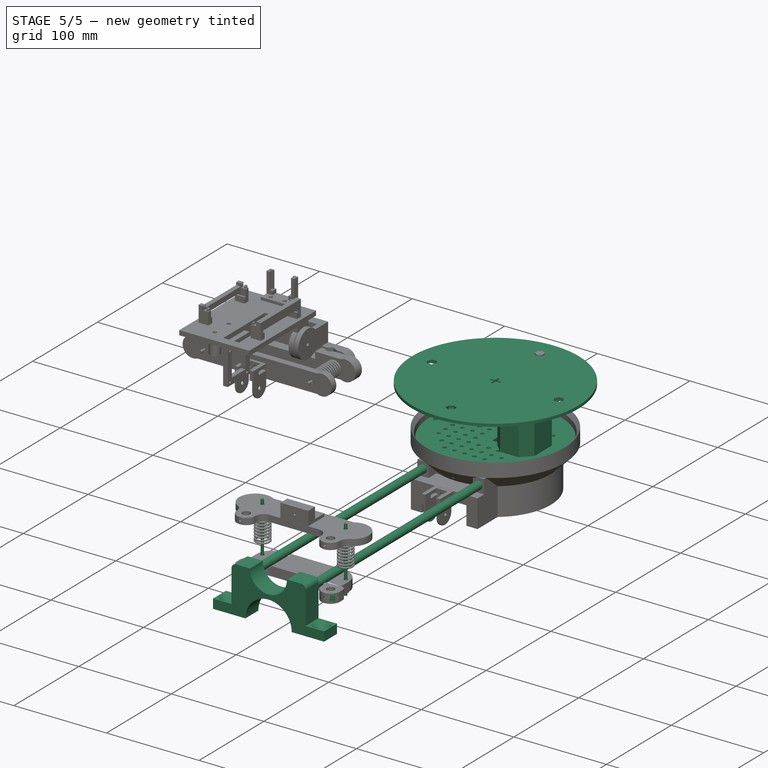
[diagram: stage 5 of 5 — iso view after this stage's code; geometry added in this stage tinted green]
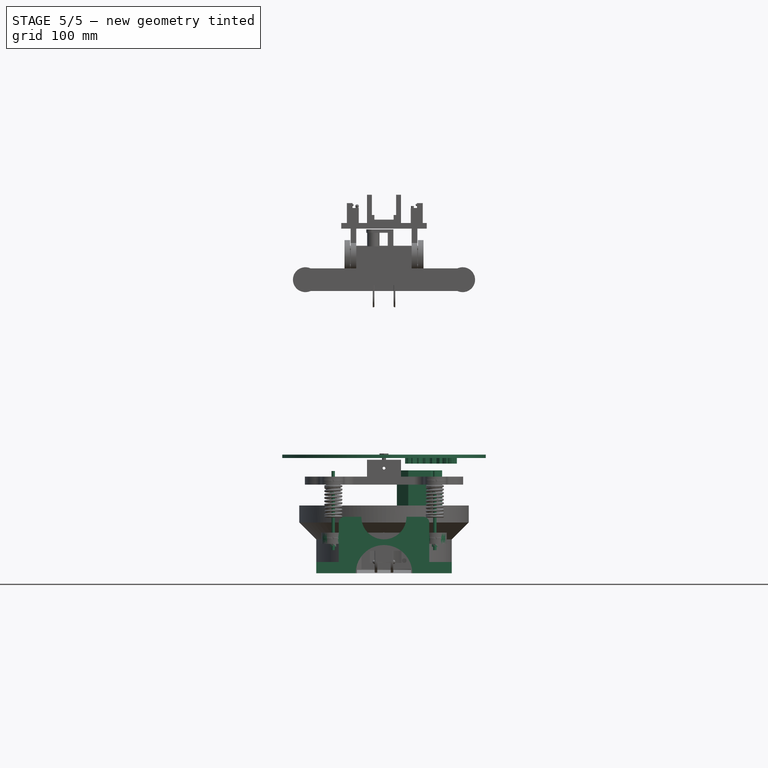
[diagram: stage 5 of 5 — front view after this stage's code; geometry added in this stage tinted green]
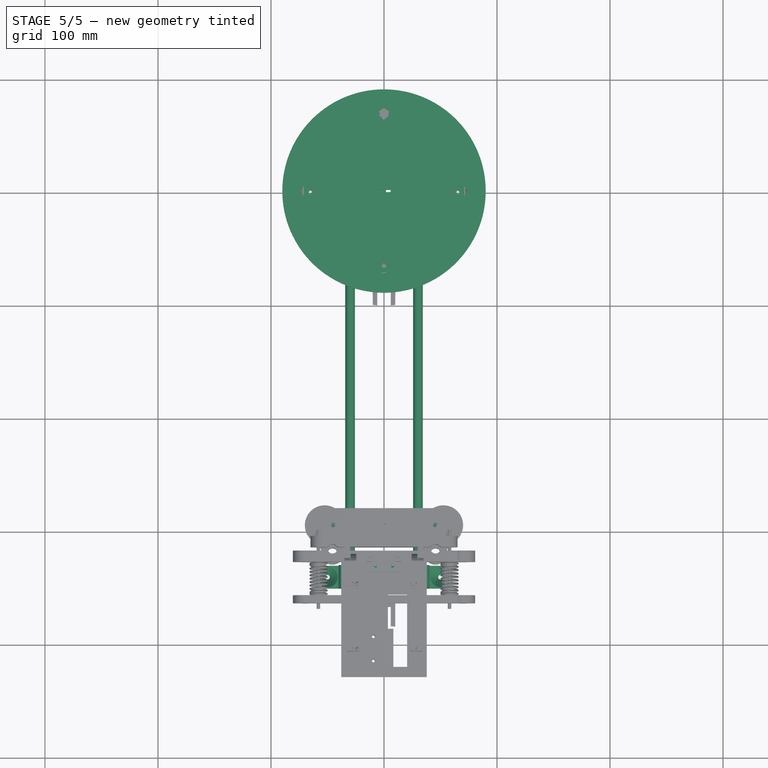
[diagram: stage 5 of 5 — top view after this stage's code; geometry added in this stage tinted green]
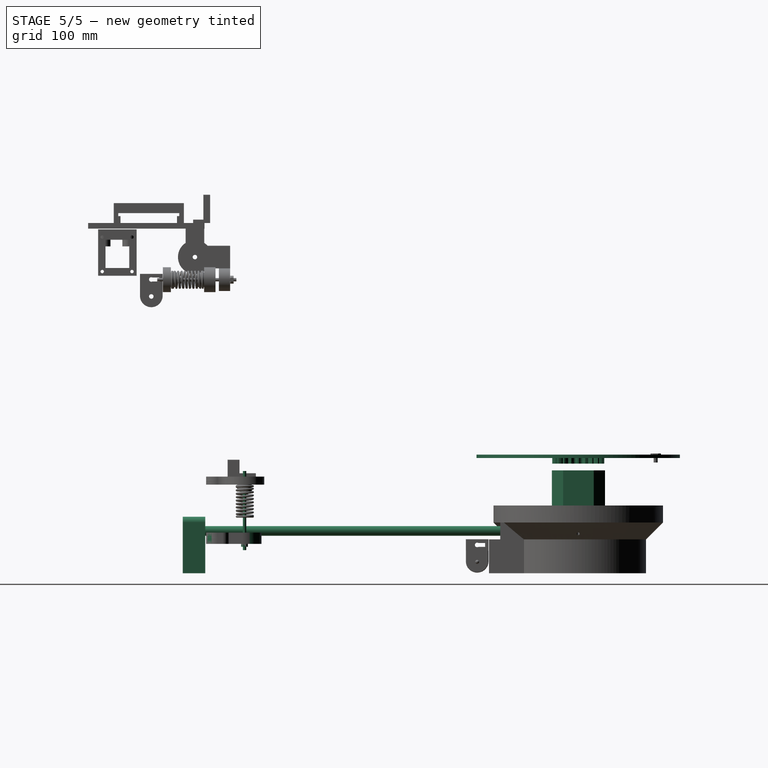
[diagram: stage 5 of 5 — right view after this stage's code; geometry added in this stage tinted green]
FEATURE [Part::Feature] Part__Feature  label="ULN2003"
  Placement = pos=(-15,45,10) rot=(0.57735,0.57735,-0.57735;2.0944rad)
  shape: bbox 35.39 x 11.17 x 31.22 mm, 819 faces (baked)
FEATURE [Sketcher::SketchObject] Sketch001
  Placement = pos=(0,0,0) rot=(1,0,0;1.5708rad)
  sketch-geometry (4):
    g0: LineSegment StartX=0 StartY=20.1 StartZ=0 EndX=71 EndY=20.1 EndZ=0
    g1: LineSegment StartX=71 StartY=20.1 StartZ=0 EndX=71 EndY=15.1 EndZ=0
    g2: LineSegment StartX=71 StartY=15.1 StartZ=0 EndX=0 EndY=15.1 EndZ=0
    g3: LineSegment StartX=0 StartY=15.1 StartZ=0 EndX=0 EndY=20.1 EndZ=0
  constraints (12):
    c: Coincident(g0,g1)
    c: Coincident(g1,g2)
    c: Coincident(g2,g3)
    c: Coincident(g3,g0)
    c: Horizontal(g0)
    c: Horizontal(g2)
    c: Vertical(g1)
    c: Vertical(g3)
    c: PointOnObject(g0,g-2)
    c: DistanceY(g-1,g2) = 15.1
    c: Distance(g0) = 71
    c: Distance(g3) = 5
FEATURE [PartDesign::Revolution] Revolution001  label="intermediaire"
  Angle = 360
  Axis = (0,0,1)
  Base = (0,0,0)
  Placement = pos=(0,0,0) rot=(1,0,0;1.5708rad)
  ReferenceAxis = -> Sketch001 [V_Axis]
  Reversed = true
  Sketch = -> Sketch001
FEATURE [Sketcher::SketchObject] Sketch002
  Placement = pos=(0,0,0) rot=(1,0,0;1.5708rad)
  sketch-geometry (18):
    g0: LineSegment StartX=75 StartY=70 StartZ=0 EndX=75 EndY=30.2 EndZ=0
    g1: LineSegment StartX=55.884 StartY=20.2 StartZ=0 EndX=70.884 EndY=20.2 EndZ=0
    g2: LineSegment [constr] StartX=72 StartY=15 StartZ=0 EndX=72 EndY=25 EndZ=0
    g3: LineSegment [constr] StartX=75 StartY=15 StartZ=0 EndX=75 EndY=30 EndZ=0
    g4: LineSegment [constr] StartX=72 StartY=25 StartZ=0 EndX=75 EndY=30 EndZ=0
    g5: LineSegment [constr] StartX=72 StartY=15 StartZ=0 EndX=75 EndY=15 EndZ=0
    g6: LineSegment [constr] StartX=75 StartY=30.2 StartZ=0 EndX=75 EndY=30 EndZ=0
    g7: LineSegment [constr] StartX=72 StartY=25 StartZ=0 EndX=72 EndY=25.2 EndZ=0
    g8: LineSegment StartX=75 StartY=30.2 StartZ=0 EndX=70.884 EndY=23.3401 EndZ=0
    g9: LineSegment StartX=70.884 StartY=23.3401 StartZ=0 EndX=70.884 EndY=20.2 EndZ=0
    g10: LineSegment StartX=55.884 StartY=23.3401 StartZ=0 EndX=55.884 EndY=20.2 EndZ=0
    g11: LineSegment StartX=55.884 StartY=23.3401 StartZ=0 EndX=67.884 EndY=23.3401 EndZ=0
    g12: LineSegment StartX=72 StartY=30 StartZ=0 EndX=72 EndY=62 EndZ=0
    g13: LineSegment StartX=72 StartY=30 StartZ=0 EndX=67.884 EndY=23.3401 EndZ=0
    g14: LineSegment StartX=73.5 StartY=70 StartZ=0 EndX=75 EndY=70 EndZ=0
    g15: LineSegment StartX=73.5 StartY=70 StartZ=0 EndX=73.5 EndY=67 EndZ=0
    g16: LineSegment StartX=73.5 StartY=67 StartZ=0 EndX=68.5 EndY=67 EndZ=0
    g17: LineSegment StartX=68.5 StartY=67 StartZ=0 EndX=72 EndY=62 EndZ=0
  constraints (54):
    c: Vertical(g0)
    c: DistanceX(g-2,g0) = 75
    c: DistanceY(g-1,g0) = 70
    c: Horizontal(g1)
    c: Vertical(g2)
    c: Vertical(g3)
    c: Coincident(g4,g2)
    c: Coincident(g4,g3)
    c: DistanceY(g3) = 30
    c: Distance(g3) = 15
    c: Distance(g2) = 10
    c: PointOnObject(g0,g3)
    c: Distance(g0,g3) = 0.2
    c: Horizontal(g5)
    c: Coincident(g5,g3)
    c: Coincident(g5,g2)
    c: Distance(g5) = 3
    c: Vertical(g6)
    c: Coincident(g6,g0)
    c: Coincident(g6,g3)
    c: Vertical(g7)
    c: Coincident(g7,g2)
    c: Equal(g6,g7)
    c: Coincident(g8,g0)
    c: PointOnObject(g7,g8)
    c: Distance(g8) = 8
    c: Vertical(g9)
    c: Coincident(g9,g8)
    c: Coincident(g1,g9)
    c: DistanceY(g-1,g1) = 20.2
    c: Vertical(g10)
    c: Coincident(g10,g1)
    c: Distance(g1) = 15
    c: Horizontal(g11)
    c: Coincident(g11,g10)
    c: PointOnObject(g8,g11)
    c: Vertical(g12)
    c: Distance(g12,g0) = 3
    c: DistanceY(g-1,g12) = 30
    c: Coincident(g13,g12)
    c: Coincident(g13,g11)
    c: Distance(g11,g8) = 3
    c: Horizontal(g14)
    c: Coincident(g14,g0)
    c: Distance(g14,g0) = 1.5
    c: Coincident(g15,g14)
    c: Vertical(g15)
    c: Coincident(g16,g15)
    c: Horizontal(g16)
    c: Distance(g12,g16) = 5
    c: Coincident(g17,g16)
    c: Coincident(g17,g12)
    c: Distance(g15,g14) = 3
    c: Distance(g16,g15) = 5
FEATURE [PartDesign::Revolution] Revolution002  label="baseHaute"
  Angle = 360
  Axis = (0,0,1)
  Base = (0,0,0)
  Placement = pos=(0,0,0) rot=(1,0,0;1.5708rad)
  ReferenceAxis = -> Sketch002 [V_Axis]
  Reversed = true
  Sketch = -> Sketch002
FEATURE [Sketcher::SketchObject] Sketch003
  sketch-geometry (4):
    g0: Circle CenterX=-65 CenterY=0 CenterZ=0 NormalX=0 NormalY=0 NormalZ=1 Radius=2
    g1: Circle CenterX=0 CenterY=-65 CenterZ=0 NormalX=0 NormalY=0 NormalZ=1 Radius=2
    g2: Circle CenterX=0 CenterY=65 CenterZ=0 NormalX=0 NormalY=0 NormalZ=1 Radius=2
    g3: Circle CenterX=65 CenterY=0 CenterZ=0 NormalX=0 NormalY=0 NormalZ=1 Radius=2
  constraints (12):
    c: PointOnObject(g0,g-1)
    c: DistanceX(g-2,g0) = -65
    c: PointOnObject(g3,g-1)
    c: PointOnObject(g2,g-2)
    c: PointOnObject(g1,g-2)
    c: Radius(g0) = 2
    c: Equal(g0,g2)
    c: Equal(g0,g3)
    c: Equal(g0,g1)
    c: DistanceY(g-1,g2) = 65
    c: Symmetric(g2,g1,g-1)
    c: Symmetric(g0,g3,g-2)
FEATURE [PartDesign::Pad] Pad
  Length = 60
  Length2 = 100
  Midplane = true
  Sketch = -> Sketch003
  Type = 0
FEATURE [Part::FeaturePython] Clone  label="Clone of Pad"  # Draft clone (typed FeaturePython)
  Objects = -> [Pad]
  Scale = (1,1,1)
FEATURE [Part::Cut] Cut  label="intermediaire001"
  Base = -> Revolution001
  Tool = -> Pad
FEATURE [Part::Cut] Cut001  label="baseHaute001"
  Base = -> Revolution002
  Tool = -> Clone
FEATURE [Sketcher::SketchObject] Sketch005
  ExternalGeometry = -> [Cut001]
  Placement = pos=(0,0,67) rot=(0,0,1;0rad)
  sketch-geometry (2):
    g0: Circle CenterX=0 CenterY=0 CenterZ=0 NormalX=0 NormalY=0 NormalZ=1 Radius=73.25
    g1: Circle CenterX=0 CenterY=0 CenterZ=0 NormalX=0 NormalY=0 NormalZ=1 Radius=60
  constraints (5):
    c: Radius(g-3) = 73.5
    c: Coincident(g0,g-1)
    c: Radius(g0) = 73.25
    c: Coincident(g1,g-1)
    c: Radius(g1) = 60
FEATURE [PartDesign::Pad] Pad002
  Length = 5
  Length2 = 100
  Placement = pos=(0,0,67) rot=(0,0,1;0rad)
  Sketch = -> Sketch005
  Type = 0
FEATURE [Part::Part2DObjectPython] InvoluteGear  # Draft 2D object (typed FeaturePython)
  ExternalGear = true
  HighPrecision = true
  Modules = 2
  NumberOfTeeth = 63
  PressureAngle = 20
FEATURE [PartDesign::Pad] Pad003
  Length = 100
  Length2 = 100
  Sketch = -> InvoluteGear
  Type = 0
FEATURE [Part::Cut] Cut003  label="rouePlateau"
  Base = -> Pad002
  Tool = -> Pad003
FEATURE [Sketcher::SketchObject] Sketch006
  Placement = pos=(0,0,72) rot=(0,0,1;0rad)
  Support = -> Cut003 [Face3]
  sketch-geometry (4):
    g0: Circle CenterX=0 CenterY=-68.5 CenterZ=0 NormalX=0 NormalY=0 NormalZ=1 Radius=2
    g1: Circle CenterX=0 CenterY=68.5 CenterZ=0 NormalX=0 NormalY=0 NormalZ=1 Radius=2
    g2: Circle CenterX=68.5 CenterY=0 CenterZ=0 NormalX=0 NormalY=0 NormalZ=1 Radius=2
    g3: Circle CenterX=-68.5 CenterY=0 CenterZ=0 NormalX=0 NormalY=0 NormalZ=1 Radius=2
  constraints (12):
    c: PointOnObject(g3,g-1)
    c: PointOnObject(g2,g-1)
    c: PointOnObject(g1,g-2)
    c: PointOnObject(g0,g-2)
    c: Symmetric(g3,g2,g-2)
    c: Symmetric(g1,g0,g-1)
    c: DistanceX(g-2,g3) = -68.5
    c: DistanceY(g-1,g1) = 68.5
    c: Radius(g1) = 2
    c: Equal(g1,g2)
    c: Equal(g1,g0)
    c: Equal(g1,g3)
FEATURE [PartDesign::Pocket] Pocket  label="rouePlateau001"
  Length = 5
  Sketch = -> Sketch006
  Type = 1
FEATURE [Part::Part2DObjectPython] InvoluteGear001  # Draft 2D object (typed FeaturePython)
  ExternalGear = true
  HighPrecision = true
  Modules = 2
  NumberOfTeeth = 21
  Placement = pos=(41.5,0,67) rot=(0,0,1;0rad)
  PressureAngle = 20
FEATURE [PartDesign::Pad] Pad004  label="Pignon"
  Length = 5
  Length2 = 100
  Placement = pos=(41.5,0,67) rot=(0,0,1;0rad)
  Sketch = -> InvoluteGear001
  Type = 0
FEATURE [Sketcher::SketchObject] Sketch008
  Placement = pos=(41.5,0,72) rot=(0,0,1;0rad)
  Support = -> Pad004 [Face212]
  sketch-geometry (1):
    g0: Circle CenterX=0 CenterY=0 CenterZ=0 NormalX=0 NormalY=0 NormalZ=1 Radius=0.5
  constraints (2):
    c: Coincident(g0,g-1)
    c: Radius(g0) = 0.5
FEATURE [PartDesign::Pocket] Pocket002  label="Pignon001"
  Length = 5
  Placement = pos=(41.5,0,67) rot=(0,0,1;0rad)
  Sketch = -> Sketch008
  Type = 1
FEATURE [App::DocumentObjectGroup] Groupe007  label="GR_Driver"
  Group = -> [Part__Feature]
FEATURE [Part::Feature] Part__Feature001  label="Step_Motor_28BYJ-048_Repere"
  Placement = pos=(41.4984,0.155591,61.9203) rot=(-0.57735,0.57735,0.57735;4.18879rad)
  shape: bbox 32.05 x 42 x 29 mm, 55 faces (baked)
FEATURE [App::DocumentObjectGroup] Groupe008  label="GR_PAP"
  Group = -> [Part__Feature001]
FEATURE [Part::FeaturePython] Clone001  label="Clone of Step_Motor_28BYJ-048_Repere"  # Draft clone (typed FeaturePython)
  Objects = -> [Part__Feature001]
  Placement = pos=(41.4984,0.17,61.0974) rot=(-0.58068,0.570633,0.58068;4.17868rad)
  Scale = (1,1,1)
FEATURE [Part::Cut] Cut004  label="Pignon002"
  Base = -> Pocket002
  Tool = -> Clone001
FEATURE [Sketcher::SketchObject] Sketch009
  ExternalGeometry = -> [Cut004]
  Placement = pos=(0,0,67) rot=(1,0,0;3.14159rad)
  Support = -> Cut004 [Face4]
  sketch-geometry (4):
    g0: ArcOfCircle CenterX=41.5 CenterY=0 CenterZ=0 NormalX=0 NormalY=0 NormalZ=1 Radius=2.55 StartAngle=2.48825 EndAngle=3.79493
    g1: LineSegment StartX=39.4752 StartY=1.55 StartZ=0 EndX=43.5248 EndY=1.55 EndZ=0
    g2: LineSegment StartX=43.5248 StartY=-1.55 StartZ=0 EndX=39.4752 EndY=-1.55 EndZ=0
    g3: ArcOfCircle CenterX=41.5 CenterY=0 CenterZ=0 NormalX=0 NormalY=0 NormalZ=1 Radius=2.55 StartAngle=5.62984 EndAngle=6.93653
  constraints (12):
    c: Horizontal(g1)
    c: Coincident(g-3,g0)
    c: Radius(g0) = 2.55
    c: Distance(g0,g1) = 1.55
    c: Horizontal(g2)
    c: Coincident(g0,g1)
    c: Coincident(g3,g1)
    c: Equal(g0,g3)
    c: Coincident(g0,g2)
    c: Coincident(g3,g2)
    c: Coincident(g0,g3)
    c: Equal(g1,g2)
FEATURE [PartDesign::Pocket] Pocket003  label="Pignon003"
  Length = 5
  Sketch = -> Sketch009
  Type = 1
FEATURE [Sketcher::SketchObject] Sketch013
  ExternalGeometry = -> [Pocket]
  Placement = pos=(0,0,72) rot=(0,0,1;0rad)
  sketch-geometry (41):
    g0: Circle CenterX=0 CenterY=0 CenterZ=0 NormalX=0 NormalY=0 NormalZ=1 Radius=90
    g1: LineSegment StartX=0 StartY=63.5 StartZ=0 EndX=4.33013 EndY=66 EndZ=0
    g2: LineSegment StartX=4.33013 StartY=66 StartZ=0 EndX=4.33013 EndY=71 EndZ=0
    g3: LineSegment StartX=4.33013 StartY=71 StartZ=0 EndX=0 EndY=73.5 EndZ=0
    g4: LineSegment StartX=0 StartY=73.5 StartZ=0 EndX=-4.33013 EndY=71 EndZ=0
    g5: LineSegment StartX=-4.33013 StartY=71 StartZ=0 EndX=-4.33013 EndY=66 EndZ=0
    g6: LineSegment StartX=-4.33013 StartY=66 StartZ=0 EndX=0 EndY=63.5 EndZ=0
    g7: Circle [constr] CenterX=0 CenterY=68.5 CenterZ=0 NormalX=0 NormalY=0 NormalZ=1 Radius=5
    g8: LineSegment StartX=-66 StartY=-4.33013 StartZ=0 EndX=-63.5 EndY=0 EndZ=0
    g9: LineSegment StartX=-63.5 StartY=0 StartZ=0 EndX=-66 EndY=4.33013 EndZ=0
    g10: LineSegment StartX=-66 StartY=4.33013 StartZ=0 EndX=-71 EndY=4.33013 EndZ=0
    g11: LineSegment StartX=-71 StartY=4.33013 StartZ=0 EndX=-73.5 EndY=0 EndZ=0
    g12: LineSegment StartX=-73.5 StartY=0 StartZ=0 EndX=-71 EndY=-4.33013 EndZ=0
    g13: LineSegment StartX=-71 StartY=-4.33013 StartZ=0 EndX=-66 EndY=-4.33013 EndZ=0
    g14: Circle [constr] CenterX=-68.5 CenterY=0 CenterZ=0 NormalX=0 NormalY=0 NormalZ=1 Radius=5
    g15: LineSegment StartX=0 StartY=-73.5 StartZ=0 EndX=4.33013 EndY=-71 EndZ=0
    g16: LineSegment StartX=4.33013 StartY=-71 StartZ=0 EndX=4.33013 EndY=-66 EndZ=0
    g17: LineSegment StartX=4.33013 StartY=-66 StartZ=0 EndX=0 EndY=-63.5 EndZ=0
    g18: LineSegment StartX=0 StartY=-63.5 StartZ=0 EndX=-4.33013 EndY=-66 EndZ=0
    g19: LineSegment StartX=-4.33013 StartY=-66 StartZ=0 EndX=-4.33013 EndY=-71 EndZ=0
    g20: LineSegment StartX=-4.33013 StartY=-71 StartZ=0 EndX=0 EndY=-73.5 EndZ=0
    g21: Circle [constr] CenterX=0 CenterY=-68.5 CenterZ=0 NormalX=0 NormalY=0 NormalZ=1 Radius=5
    g22: LineSegment StartX=73.5 StartY=0 StartZ=0 EndX=71 EndY=4.33013 EndZ=0
    g23: LineSegment StartX=71 StartY=4.33013 StartZ=0 EndX=66 EndY=4.33013 EndZ=0
    g24: LineSegment StartX=66 StartY=4.33013 StartZ=0 EndX=63.5 EndY=0 EndZ=0
    g25: LineSegment StartX=63.5 StartY=0 StartZ=0 EndX=66 EndY=-4.33013 EndZ=0
    g26: LineSegment StartX=66 StartY=-4.33013 StartZ=0 EndX=71 EndY=-4.33013 EndZ=0
    g27: LineSegment StartX=71 StartY=-4.33013 StartZ=0 EndX=73.5 EndY=0 EndZ=0
    g28: Circle [constr] CenterX=68.5 CenterY=0 CenterZ=0 NormalX=0 NormalY=0 NormalZ=1 Radius=5
    g29: ArcOfCircle CenterX=0 CenterY=5 CenterZ=0 NormalX=0 NormalY=0 NormalZ=1 Radius=1 StartAngle=0 EndAngle=3.14159
    g30: ArcOfCircle CenterX=0 CenterY=-5 CenterZ=0 NormalX=0 NormalY=0 NormalZ=1 Radius=1 StartAngle=3.14159 EndAngle=6.28319
    g31: LineSegment StartX=-1 StartY=5 StartZ=0 EndX=-1 EndY=1 EndZ=0
    g32: LineSegment StartX=1 StartY=5 StartZ=0 EndX=1 EndY=1 EndZ=0
    g33: ArcOfCircle CenterX=-5 CenterY=0 CenterZ=0 NormalX=0 NormalY=0 NormalZ=1 Radius=1 StartAngle=1.5708 EndAngle=4.71239
    g34: ArcOfCircle CenterX=5 CenterY=0 CenterZ=0 NormalX=0 NormalY=0 NormalZ=1 Radius=1 StartAngle=4.71239 EndAngle=7.85398
    g35: LineSegment StartX=-5 StartY=-1 StartZ=0 EndX=-1 EndY=-1 EndZ=0
    g36: LineSegment StartX=-5 StartY=1 StartZ=0 EndX=-1 EndY=1 EndZ=0
    g37: LineSegment StartX=1 StartY=1 StartZ=0 EndX=5 EndY=1 EndZ=0
    g38: LineSegment StartX=1 StartY=-1 StartZ=0 EndX=1 EndY=-5 EndZ=0
    g39: LineSegment StartX=1 StartY=-1 StartZ=0 EndX=5 EndY=-1 EndZ=0
    g40: LineSegment StartX=-1 StartY=-1 StartZ=0 EndX=-1 EndY=-5 EndZ=0
  constraints (108):
    c: Radius(g0) = 90
    c: DistanceX(g14) = -68.5
    c: DistanceY(g14) = 0
    c: DistanceX(g7) = 0
    c: DistanceY(g7) = 68.5
    c: DistanceX(g28) = 68.5
    c: DistanceY(g28) = 0
    c: DistanceX(g21) = 0
    c: DistanceY(g21) = -68.5
    c: Radius(g28) = 5
    c: Equal(g28,g7)
    c: Equal(g28,g14)
    c: Equal(g28,g21)
    c: Radius(g30) = 1
    c: Equal(g36,g35)
    c: Equal(g35,g40)
    c: Equal(g40,g38)
    c: Coincident(g9,g10)
    c: Coincident(g10,g11)
    c: Coincident(g11,g12)
    c: Coincident(g12,g13)
    c: Coincident(g13,g8)
    c: Coincident(g8,g9)
    c: PointOnObject(g9,g14)
    c: PointOnObject(g8,g14)
    c: PointOnObject(g8,g14)
    c: PointOnObject(g12,g14)
    c: PointOnObject(g11,g14)
    c: PointOnObject(g10,g14)
    c: Equal(g8,g9)
    c: Equal(g9,g10)
    c: Equal(g10,g11)
    c: Equal(g11,g12)
    c: Equal(g12,g13)
    c: Horizontal(g10)
    c: Coincident(g16,g17)
    c: Coincident(g17,g18)
    c: Coincident(g18,g19)
    c: Coincident(g19,g20)
    c: Coincident(g20,g15)
    c: PointOnObject(g17,g21)
    c: PointOnObject(g18,g21)
    c: PointOnObject(g19,g21)
    c: PointOnObject(g15,g21)
    c: PointOnObject(g15,g21)
    c: PointOnObject(g16,g21)
    c: Vertical(g19)
    c: Equal(g20,g15)
    c: Equal(g15,g16)
    c: Equal(g16,g17)
    c: Equal(g17,g18)
    c: Equal(g18,g19)
    c: Coincident(g15,g16)
    c: Coincident(g23,g24)
    c: Coincident(g27,g22)
    c: Coincident(g26,g27)
    c: PointOnObject(g23,g28)
    c: PointOnObject(g22,g28)
    c: PointOnObject(g22,g28)
    c: PointOnObject(g26,g28)
    c: PointOnObject(g25,g28)
    c: PointOnObject(g24,g28)
    c: Coincident(g24,g25)
    c: Coincident(g25,g26)
    c: Coincident(g22,g23)
    c: Equal(g23,g24)
    c: Equal(g24,g25)
    c: Equal(g25,g26)
    c: Equal(g26,g27)
    c: Equal(g27,g22)
    c: Horizontal(g23)
    c: Coincident(g3,g4)
    c: Coincident(g4,g5)
    c: Coincident(g5,g6)
    c: Coincident(g6,g1)
    c: Coincident(g1,g2)
    c: PointOnObject(g3,g7)
    c: PointOnObject(g4,g7)
    c: PointOnObject(g5,g7)
    c: PointOnObject(g1,g7)
    c: PointOnObject(g1,g7)
    c: PointOnObject(g2,g7)
    c: Coincident(g2,g3)
    c: Equal(g4,g5)
    c: Equal(g5,g6)
    c: Equal(g6,g1)
    c: Equal(g1,g2)
    c: Equal(g2,g3)
    c: PointOnObject(g3,g-2)
    c: Coincident(g35,g40)
    c: PointOnObject(g30,g-2)
    c: PointOnObject(g29,g-2)
    c: DistanceX(g33) = -5
    c: Coincident(g33,g35)
    c: DistanceY(g30) = -5
    c: Coincident(g40,g30)
    c: DistanceX(g34) = 5
    c: DistanceY(g29) = 5
    c: Vertical(g31)
    c: Vertical(g40)
    c: Vertical(g38)
    c: Horizontal(g36)
    c: Horizontal(g37)
    c: Horizontal(g39)
    c: Horizontal(g35)
    c: Coincident(g30,g38)
    c: Coincident(g34,g39)
    c: Coincident(g38,g39)
FEATURE [PartDesign::Pad] Pad006  label="plateau_01"
  Length = 3
  Length2 = 100
  Placement = pos=(0,0,72) rot=(0,0,1;0rad)
  Sketch = -> Sketch013
  Type = 0
FEATURE [App::DocumentObjectGroup] Groupe009  label="GR_plateau"
  Group = -> [Pad006]
FEATURE [Part::Part2DObjectPython] Shape2DView  label="PR_plateau"  # Draft 2D object (typed FeaturePython)
  Base = -> Pad006
  HiddenLines = false
  Projection = (0,0,1)
  ProjectionMode = 0
  SegmentLength = 0.05
  Tessellation = false
FEATURE [Part::Part2DObjectPython] Shape2DView001  label="PR_pignon"  # Draft 2D object (typed FeaturePython)
  Base = -> Pocket003
  FaceNumbers = [4]
  HiddenLines = false
  Projection = (0,0,1)
  ProjectionMode = 0
  SegmentLength = 0.05
  Tessellation = false
FEATURE [Part::Part2DObjectPython] Shape2DView002  label="PR_rouePlateau"  # Draft 2D object (typed FeaturePython)
  Base = -> Pocket
  FaceNumbers = [2]
  HiddenLines = false
  Projection = (0,0,1)
  ProjectionMode = 0
  SegmentLength = 1
  Tessellation = false
FEATURE [Sketcher::SketchObject] Sketch014  label="supportMoteur_001"
  Placement = pos=(41.4984,0.169901,61.1005) rot=(-0.707107,0.707107,0;3.14159rad)
  sketch-geometry (10):
    g0: LineSegment StartX=-8 StartY=30.0934 StartZ=0 EndX=-23.5 EndY=30.0934 EndZ=0
    g1: LineSegment StartX=-23.5 StartY=30.0934 StartZ=0 EndX=-23.5 EndY=-9.90661 EndZ=0
    g2: LineSegment StartX=-23.5 StartY=-9.90661 StartZ=0 EndX=23.5 EndY=-9.90661 EndZ=0
    g3: LineSegment StartX=23.5 StartY=-9.90661 StartZ=0 EndX=23.5 EndY=30.0934 EndZ=0
    g4: LineSegment StartX=23.5 StartY=30.0934 StartZ=0 EndX=8 EndY=30.0934 EndZ=0
    g5: ArcOfCircle CenterX=0 CenterY=8 CenterZ=0 NormalX=0 NormalY=0 NormalZ=1 Radius=14.5 StartAngle=2.15523 EndAngle=7.26955
    g6: LineSegment StartX=-8 StartY=30.0934 StartZ=0 EndX=-8 EndY=20.0934 EndZ=0
    g7: LineSegment StartX=8 StartY=30.0934 StartZ=0 EndX=8 EndY=20.0934 EndZ=0
    g8: Circle CenterX=-17.5 CenterY=8 CenterZ=0 NormalX=0 NormalY=0 NormalZ=1 Radius=1.25
    g9: Circle CenterX=17.5 CenterY=8 CenterZ=0 NormalX=0 NormalY=0 NormalZ=1 Radius=1.25
  constraints (30):
    c: Horizontal(g0)
    c: Coincident(g0,g1)
    c: Vertical(g1)
    c: Coincident(g1,g2)
    c: Coincident(g2,g3)
    c: Vertical(g3)
    c: Coincident(g3,g4)
    c: Equal(g4,g0)
    c: Horizontal(g4)
    c: Equal(g1,g3)
    c: Symmetric(g2,g1,g-2)
    c: Radius(g5) = 14.5
    c: Vertical(g6)
    c: Vertical(g7)
    c: Coincident(g7,g4)
    c: Coincident(g6,g0)
    c: Radius(g9) = 1.25
    c: Equal(g9,g8)
    c: Coincident(g5,g6)
    c: Coincident(g5,g7)
    c: Equal(g7,g6)
    c: Distance(g5,g4) = 10
    c: Distance(g3) = 40
    c: DistanceX(g-2,g5) = -8
    c: DistanceX(g9) = 17.5
    c: DistanceY(g9) = 8
    c: DistanceX(g8) = -17.5
    c: DistanceY(g8) = 8
    c: DistanceY(g5) = 8
    c: Distance(g8,g1) = 6
FEATURE [PartDesign::Pad] Pad007  label="supportMoteur_002"
  Length = 40.8
  Length2 = 100
  Placement = pos=(41.4984,0.169901,61.1005) rot=(-0.707107,0.707107,0;3.14159rad)
  Sketch = -> Sketch014
  Type = 0
FEATURE [PartDesign::Chamfer] Chamfer001  label="supportMoteur_003"
  Base = -> Pad007 [Edge14,Edge5,Edge8,Edge11]
  Placement = pos=(41.4984,0.169901,61.1005) rot=(-0.707107,0.707107,0;3.14159rad)
  Size = 1
FEATURE [Sketcher::SketchObject] Sketch015
  Placement = pos=(41.4984,0.169901,61.1005) rot=(0,0,-1;1.5708rad)
  sketch-geometry (6):
    g0: Circle CenterX=-17.5 CenterY=-8 CenterZ=0 NormalX=0 NormalY=0 NormalZ=1 Radius=2
    g1: Circle CenterX=17.5 CenterY=-8 CenterZ=0 NormalX=0 NormalY=0 NormalZ=1 Radius=2
    g2: ArcOfCircle CenterX=0 CenterY=-8 CenterZ=0 NormalX=0 NormalY=0 NormalZ=1 Radius=14 StartAngle=5.29507 EndAngle=10.4129
    g3: LineSegment StartX=7.70365 StartY=-19.6899 StartZ=0 EndX=7.70365 EndY=-39.6899 EndZ=0
    g4: LineSegment StartX=7.70365 StartY=-39.6899 StartZ=0 EndX=-7.70365 EndY=-39.6899 EndZ=0
    g5: LineSegment StartX=-7.70365 StartY=-39.6899 StartZ=0 EndX=-7.70365 EndY=-19.6899 EndZ=0
  constraints (21):
    c: DistanceX(g0) = -17.5
    c: DistanceY(g0) = -8
    c: DistanceX(g2) = 0
    c: DistanceY(g2) = -8
    c: DistanceX(g1) = 17.5
    c: DistanceY(g1) = -8
    c: Radius(g0) = 2
    c: Equal(g0,g1)
    c: Radius(g2) = 14
    c: Coincident(g3,g4)
    c: Coincident(g4,g5)
    c: Horizontal(g4)
    c: Vertical(g3)
    c: Vertical(g5)
    c: PointOnObject(g3,g2)
    c: Coincident(g2,g3)
    c: Coincident(g5,g2)
    c: Symmetric(g4,g3,g-2)
    c: Distance(g3) = 20
    c: Distance(g5) = 20
    c: Distance(g4) = 15.4073
FEATURE [PartDesign::Pad] Pad008
  Length = 100
  Length2 = 100
  Midplane = true
  Placement = pos=(41.4984,0.169901,61.1005) rot=(0,0,-1;1.5708rad)
  Sketch = -> Sketch015
  Type = 0
FEATURE [Part::Cut] Cut005  label="intermediaire002"
  Base = -> Cut
  Tool = -> Pad008
FEATURE [Part::FeaturePython] Clone002  label="Clone of Step_Motor_28BYJ-048_Repere001"  # Draft clone (typed FeaturePython)
  Objects = -> [Part__Feature001]
  Placement = pos=(41.4984,0.155591,61.9203) rot=(-0.57735,0.57735,0.57735;4.18879rad)
  Scale = (1,1,1)
FEATURE [Part::Cut] Cut006  label="supportMoteur_004"
  Base = -> Chamfer001
  Tool = -> Clone002
FEATURE [App::DocumentObjectGroup] Groupe011  label="GR_supportMoteur"
  Group = -> [Pad007,Cut006]
FEATURE [Sketcher::SketchObject] Sketch020
  Placement = pos=(-15,45,3.45) rot=(0,1,0;3.14159rad)
  sketch-geometry (2):
    g0: Circle CenterX=-33.84 CenterY=-13.5 CenterZ=0 NormalX=0 NormalY=0 NormalZ=1 Radius=2
    g1: Circle CenterX=-1.55 CenterY=-13.5 CenterZ=0 NormalX=0 NormalY=0 NormalZ=1 Radius=2
  constraints (6):
    c: DistanceX(g0) = -33.84
    c: DistanceY(g0) = -13.5
    c: DistanceX(g1) = -1.55
    c: DistanceY(g1) = -13.5
    c: Radius(g1) = 2
    c: Equal(g1,g0)
FEATURE [PartDesign::Pad] Pad012
  Length = 40
  Length2 = 100
  Midplane = true
  Placement = pos=(-15,45,3.45) rot=(0,1,0;3.14159rad)
  Sketch = -> Sketch020
  Type = 0
FEATURE [Part::Cut] Cut007  label="intermediaire003"
  Base = -> Cut005
  Tool = -> Pad012
FEATURE [Sketcher::SketchObject] Sketch021
  ExternalGeometry = -> [Cut007]
  Placement = pos=(0,0,20.1) rot=(0,0,1;0rad)
  Support = -> Cut007 [Face1]
  sketch-geometry (70):
    g0: Circle [constr] CenterX=0 CenterY=0 CenterZ=0 NormalX=0 NormalY=0 NormalZ=1 Radius=57.5
    g1: LineSegment [constr] StartX=-48.1041 StartY=31.5 StartZ=0 EndX=48.1041 EndY=31.5 EndZ=0
    g2: Circle CenterX=8.08 CenterY=31.5 CenterZ=0 NormalX=0 NormalY=0 NormalZ=1 Radius=2
    g3: Circle CenterX=-2.68 CenterY=31.5 CenterZ=0 NormalX=0 NormalY=0 NormalZ=1 Radius=2
    g4: Circle CenterX=29.6 CenterY=31.5 CenterZ=0 NormalX=0 NormalY=0 NormalZ=1 Radius=2
    g5: Circle CenterX=40.36 CenterY=31.5 CenterZ=0 NormalX=0 NormalY=0 NormalZ=1 Radius=2
    g6: Circle CenterX=-24.21 CenterY=31.5 CenterZ=0 NormalX=0 NormalY=0 NormalZ=1 Radius=2
    g7: Circle CenterX=-34.97 CenterY=31.5 CenterZ=0 NormalX=0 NormalY=0 NormalZ=1 Radius=2
    g8: Circle CenterX=-13.45 CenterY=31.5 CenterZ=0 NormalX=0 NormalY=0 NormalZ=1 Radius=2
    g9: Circle CenterX=18.84 CenterY=31.5 CenterZ=0 NormalX=0 NormalY=0 NormalZ=1 Radius=2
    g10: LineSegment [constr] StartX=-34.97 StartY=45.6437 StartZ=0 EndX=-34.97 EndY=-45.6437 EndZ=0
    g11: Circle CenterX=-34.97 CenterY=20.74 CenterZ=0 NormalX=0 NormalY=0 NormalZ=1 Radius=2
    g12: Circle CenterX=-34.97 CenterY=9.98 CenterZ=0 NormalX=0 NormalY=0 NormalZ=1 Radius=2
    g13: Circle CenterX=-34.97 CenterY=-0.78 CenterZ=0 NormalX=0 NormalY=0 NormalZ=1 Radius=2
    g14: Circle CenterX=-34.97 CenterY=-11.54 CenterZ=0 NormalX=0 NormalY=0 NormalZ=1 Radius=2
    g15: Circle CenterX=-34.97 CenterY=-22.3 CenterZ=0 NormalX=0 NormalY=0 NormalZ=1 Radius=2
    g16: Circle CenterX=-34.97 CenterY=-33.06 CenterZ=0 NormalX=0 NormalY=0 NormalZ=1 Radius=2
    g17: LineSegment [constr] StartX=-47.0456 StartY=-33.06 StartZ=0 EndX=47.0456 EndY=-33.06 EndZ=0
    g18: LineSegment [constr] StartX=-24.21 StartY=52.1548 StartZ=0 EndX=-24.21 EndY=-52.1548 EndZ=0
    g19: LineSegment [constr] StartX=8.08 StartY=56.9295 StartZ=0 EndX=8.08 EndY=-56.9295 EndZ=0
    g20: LineSegment [constr] StartX=18.84 StartY=54.3259 StartZ=0 EndX=18.84 EndY=-54.3259 EndZ=0
    g21: LineSegment [constr] StartX=-13.45 StartY=55.9048 StartZ=0 EndX=-13.45 EndY=-55.9048 EndZ=0
    g22: LineSegment [constr] StartX=-2.68 StartY=57.4375 StartZ=0 EndX=-2.68 EndY=-57.4375 EndZ=0
    g23: LineSegment [constr] StartX=29.6 StartY=49.2959 StartZ=0 EndX=29.6 EndY=-49.2959 EndZ=0
    g24: LineSegment [constr] StartX=40.36 StartY=40.9551 StartZ=0 EndX=40.36 EndY=-40.9551 EndZ=0
    g25: LineSegment [constr] StartX=-56.3301 StartY=-11.54 StartZ=0 EndX=56.3301 EndY=-11.54 EndZ=0
    g26: LineSegment [constr] StartX=-57.4947 StartY=-0.78 StartZ=0 EndX=57.4947 EndY=-0.78 EndZ=0
    g27: LineSegment [constr] StartX=-56.6273 StartY=9.98 StartZ=0 EndX=56.6273 EndY=9.98 EndZ=0
    g28: LineSegment [constr] StartX=-53.6293 StartY=20.74 StartZ=0 EndX=53.6293 EndY=20.74 EndZ=0
    g29: LineSegment [constr] StartX=-52.9996 StartY=-22.3 StartZ=0 EndX=52.9996 EndY=-22.3 EndZ=0
    g30: LineSegment [constr] StartX=-34.97 StartY=-43.82 StartZ=0 EndX=29.6 EndY=-43.82 EndZ=0
    g31: LineSegment [constr] StartX=-34.97 StartY=42.26 StartZ=0 EndX=29.6 EndY=42.26 EndZ=0
    g32: LineSegment [constr] StartX=-45.73 StartY=31.5 StartZ=0 EndX=-45.73 EndY=-33.06 EndZ=0
    g33: Circle CenterX=-24.21 CenterY=20.74 CenterZ=0 NormalX=0 NormalY=0 NormalZ=1 Radius=2
    g34: Circle CenterX=-24.21 CenterY=-43.82 CenterZ=0 NormalX=0 NormalY=0 NormalZ=1 Radius=2
    g35: Circle CenterX=-24.21 CenterY=42.26 CenterZ=0 NormalX=0 NormalY=0 NormalZ=1 Radius=2
    g36: Circle CenterX=-24.21 CenterY=9.98 CenterZ=0 NormalX=0 NormalY=0 NormalZ=1 Radius=2
    g37: Circle CenterX=-24.21 CenterY=-33.06 CenterZ=0 NormalX=0 NormalY=0 NormalZ=1 Radius=2
    g38: Circle CenterX=-24.21 CenterY=-11.54 CenterZ=0 NormalX=0 NormalY=0 NormalZ=1 Radius=2
    g39: Circle CenterX=-24.21 CenterY=-0.78 CenterZ=0 NormalX=0 NormalY=0 NormalZ=1 Radius=2
    g40: Circle CenterX=-24.21 CenterY=-22.3 CenterZ=0 NormalX=0 NormalY=0 NormalZ=1 Radius=2
    g41: Circle CenterX=-13.45 CenterY=42.26 CenterZ=0 NormalX=0 NormalY=0 NormalZ=1 Radius=2
    g42: Circle CenterX=-13.45 CenterY=20.74 CenterZ=0 NormalX=0 NormalY=0 NormalZ=1 Radius=2
    g43: Circle CenterX=-13.45 CenterY=-0.78 CenterZ=0 NormalX=0 NormalY=0 NormalZ=1 Radius=2
    g44: Circle CenterX=8.08 CenterY=20.74 CenterZ=0 NormalX=0 NormalY=0 NormalZ=1 Radius=2
    g45: Circle CenterX=-2.68 CenterY=-22.3 CenterZ=0 NormalX=0 NormalY=0 NormalZ=1 Radius=2
    g46: Circle CenterX=-2.68 CenterY=-43.82 CenterZ=0 NormalX=0 NormalY=0 NormalZ=1 Radius=2
    g47: Circle CenterX=-2.68 CenterY=20.74 CenterZ=0 NormalX=0 NormalY=0 NormalZ=1 Radius=2
    g48: Circle CenterX=18.84 CenterY=20.74 CenterZ=0 NormalX=0 NormalY=0 NormalZ=1 Radius=2
    g49: Circle CenterX=-13.45 CenterY=9.98 CenterZ=0 NormalX=0 NormalY=0 NormalZ=1 Radius=2
    g50: Circle CenterX=-13.45 CenterY=-43.82 CenterZ=0 NormalX=0 NormalY=0 NormalZ=1 Radius=2
    g51: Circle CenterX=-13.45 CenterY=-33.06 CenterZ=0 NormalX=0 NormalY=0 NormalZ=1 Radius=2
    g52: Circle CenterX=-13.45 CenterY=-22.3 CenterZ=0 NormalX=0 NormalY=0 NormalZ=1 Radius=2
    g53: Circle CenterX=-13.45 CenterY=-11.54 CenterZ=0 NormalX=0 NormalY=0 NormalZ=1 Radius=2
    g54: Circle CenterX=-2.68 CenterY=42.26 CenterZ=0 NormalX=0 NormalY=0 NormalZ=1 Radius=2
    g55: Circle CenterX=8.08 CenterY=42.26 CenterZ=0 NormalX=0 NormalY=0 NormalZ=1 Radius=2
    g56: Circle CenterX=18.84 CenterY=42.26 CenterZ=0 NormalX=0 NormalY=0 NormalZ=1 Radius=2
    g57: Circle CenterX=8.08 CenterY=-22.3 CenterZ=0 NormalX=0 NormalY=0 NormalZ=1 Radius=2
    g58: Circle CenterX=18.84 CenterY=-22.3 CenterZ=0 NormalX=0 NormalY=0 NormalZ=1 Radius=2
    g59: Circle CenterX=18.84 CenterY=-43.82 CenterZ=0 NormalX=0 NormalY=0 NormalZ=1 Radius=2
    g60: Circle CenterX=-45.73 CenterY=20.74 CenterZ=0 NormalX=0 NormalY=0 NormalZ=1 Radius=2
    g61: Circle CenterX=8.08 CenterY=-33.06 CenterZ=0 NormalX=0 NormalY=0 NormalZ=1 Radius=2
    g62: Circle CenterX=8.08 CenterY=-43.82 CenterZ=0 NormalX=0 NormalY=0 NormalZ=1 Radius=2
    g63: Circle CenterX=18.84 CenterY=-33.06 CenterZ=0 NormalX=0 NormalY=0 NormalZ=1 Radius=2
    g64: Circle CenterX=29.6 CenterY=-33.06 CenterZ=0 NormalX=0 NormalY=0 NormalZ=1 Radius=2
    g65: Circle CenterX=-45.73 CenterY=-22.3 CenterZ=0 NormalX=0 NormalY=0 NormalZ=1 Radius=2
    g66: Circle CenterX=-45.73 CenterY=-11.54 CenterZ=0 NormalX=0 NormalY=0 NormalZ=1 Radius=2
    g67: Circle CenterX=-45.73 CenterY=9.98 CenterZ=0 NormalX=0 NormalY=0 NormalZ=1 Radius=2
    g68: Circle CenterX=-45.73 CenterY=-0.78 CenterZ=0 NormalX=0 NormalY=0 NormalZ=1 Radius=2
    g69: Circle CenterX=-2.68 CenterY=-33.06 CenterZ=0 NormalX=0 NormalY=0 NormalZ=1 Radius=2
  constraints (226):
    c: PointOnObject(g0,g-1)
    c: PointOnObject(g0,g-2)
    c: Radius(g0) = 57.5
    c: PointOnObject(g-3,g1)
    c: PointOnObject(g-4,g1)
    c: PointOnObject(g2,g1)
    c: Equal(g2,g-3)
    c: PointOnObject(g3,g1)
    c: Equal(g3,g-3)
    c: Distance(g2,g-4) = 10.76
    c: Distance(g2,g3) = 10.76
    c: PointOnObject(g1,g0)
    c: PointOnObject(g1,g0)
    c: PointOnObject(g4,g1)
    c: Distance(g-4,g4) = 10.76
    c: PointOnObject(g5,g1)
    c: Distance(g4,g5) = 10.76
    c: PointOnObject(g6,g1)
    c: Distance(g6,g-3) = 10.76
    c: PointOnObject(g7,g1)
    c: Distance(g7,g6) = 10.76
    c: Equal(g5,g4)
    c: Equal(g4,g6)
    c: Equal(g6,g7)
    c: Equal(g7,g-3)
    c: Coincident(g8,g-3)
    c: Coincident(g9,g-4)
    c: Equal(g8,g9)
    c: Equal(g9,g-4)
    c: Vertical(g10)
    c: PointOnObject(g7,g10)
    c: PointOnObject(g10,g0)
    c: PointOnObject(g10,g0)
    c: PointOnObject(g11,g10)
    c: Equal(g11,g7)
    c: Distance(g11,g7) = 10.76
    c: PointOnObject(g12,g10)
    c: Distance(g12,g11) = 10.76
    c: PointOnObject(g13,g10)
    c: Distance(g13,g12) = 10.76
    c: PointOnObject(g14,g10)
    c: Distance(g13,g14) = 10.76
    c: PointOnObject(g15,g10)
    c: Distance(g14,g15) = 10.76
    c: PointOnObject(g16,g10)
    c: Equal(g12,g13)
    c: Equal(g13,g14)
    c: Equal(g14,g15)
    c: Equal(g15,g16)
    c: Equal(g16,g7)
    c: Distance(g15,g16) = 10.76
    c: Horizontal(g17)
    c: PointOnObject(g16,g17)
    c: PointOnObject(g17,g0)
    c: PointOnObject(g17,g0)
    c: Vertical(g18)
    c: Vertical(g19)
    c: Vertical(g20)
    c: Vertical(g21)
    c: Vertical(g22)
    c: PointOnObject(g6,g18)
    c: PointOnObject(g18,g0)
    c: PointOnObject(g18,g0)
    c: PointOnObject(g8,g21)
    c: PointOnObject(g21,g0)
    c: PointOnObject(g21,g0)
    c: PointOnObject(g3,g22)
    c: PointOnObject(g22,g0)
    c: PointOnObject(g22,g0)
    c: PointOnObject(g2,g19)
    c: PointOnObject(g19,g0)
    c: PointOnObject(g19,g0)
    c: PointOnObject(g9,g20)
    c: PointOnObject(g20,g0)
    c: PointOnObject(g20,g0)
    c: Vertical(g23)
    c: Vertical(g24)
    c: PointOnObject(g4,g23)
    c: PointOnObject(g5,g24)
    c: PointOnObject(g23,g0)
    c: PointOnObject(g23,g0)
    c: PointOnObject(g24,g0)
    c: PointOnObject(g24,g0)
    c: Horizontal(g25)
    c: Horizontal(g26)
    c: Horizontal(g27)
    c: Horizontal(g28)
    c: PointOnObject(g11,g28)
    c: PointOnObject(g28,g0)
    c: PointOnObject(g28,g0)
    c: PointOnObject(g12,g27)
    c: PointOnObject(g27,g0)
    c: PointOnObject(g27,g0)
    c: PointOnObject(g13,g26)
    c: PointOnObject(g26,g0)
    c: PointOnObject(g26,g0)
    c: PointOnObject(g14,g25)
    c: PointOnObject(g25,g0)
    c: PointOnObject(g25,g0)
    c: Horizontal(g29)
    c: PointOnObject(g15,g29)
    c: PointOnObject(g29,g0)
    c: PointOnObject(g29,g0)
    c: Horizontal(g30)
    c: PointOnObject(g30,g10)
    c: Distance(g16,g30) = 10.76
    c: PointOnObject(g30,g23)
    c: Horizontal(g31)
    c: Vertical(g32)
    c: PointOnObject(g32,g1)
    c: Distance(g32,g7) = 10.76
    c: PointOnObject(g32,g17)
    c: PointOnObject(g31,g10)
    c: Distance(g31,g7) = 10.76
    c: PointOnObject(g31,g23)
    c: PointOnObject(g33,g18)
    c: PointOnObject(g33,g28)
    c: PointOnObject(g35,g18)
    c: PointOnObject(g35,g31)
    c: PointOnObject(g36,g27)
    c: PointOnObject(g36,g18)
    c: PointOnObject(g34,g30)
    c: PointOnObject(g34,g18)
    c: PointOnObject(g37,g17)
    c: PointOnObject(g37,g18)
    c: PointOnObject(g40,g29)
    c: PointOnObject(g40,g18)
    c: PointOnObject(g38,g25)
    c: PointOnObject(g38,g18)
    c: PointOnObject(g39,g18)
    c: PointOnObject(g39,g26)
    c: Equal(g34,g40)
    c: Equal(g40,g37)
    c: Equal(g37,g16)
    c: Equal(g16,g38)
    c: Equal(g38,g39)
    c: Equal(g39,g36)
    c: Equal(g36,g33)
    c: Equal(g33,g35)
    c: PointOnObject(g41,g31)
    c: PointOnObject(g41,g21)
    c: PointOnObject(g42,g28)
    c: PointOnObject(g42,g21)
    c: PointOnObject(g43,g21)
    c: PointOnObject(g43,g26)
    c: Equal(g41,g42)
    c: Equal(g42,g43)
    c: Equal(g43,g6)
    c: PointOnObject(g53,g25)
    c: PointOnObject(g53,g21)
    c: PointOnObject(g52,g21)
    c: PointOnObject(g52,g29)
    c: PointOnObject(g51,g17)
    c: PointOnObject(g51,g21)
    c: PointOnObject(g50,g30)
    c: PointOnObject(g50,g21)
    c: Equal(g50,g51)
    c: Equal(g51,g52)
    c: Equal(g52,g53)
    c: Equal(g53,g16)
    c: PointOnObject(g47,g28)
    c: PointOnObject(g47,g22)
    c: PointOnObject(g44,g28)
    c: PointOnObject(g44,g19)
    c: PointOnObject(g48,g20)
    c: PointOnObject(g48,g28)
    c: Equal(g47,g44)
    c: Equal(g44,g48)
    c: Equal(g48,g-3)
    c: PointOnObject(g49,g27)
    c: PointOnObject(g49,g21)
    c: Equal(g49,g-3)
    c: PointOnObject(g45,g29)
    c: PointOnObject(g45,g22)
    c: PointOnObject(g46,g22)
    c: PointOnObject(g46,g30)
    c: Equal(g45,g46)
    c: Equal(g46,g51)
    c: PointOnObject(g54,g31)
    c: PointOnObject(g54,g22)
    c: PointOnObject(g55,g31)
    c: PointOnObject(g55,g19)
    c: PointOnObject(g56,g31)
    c: PointOnObject(g56,g20)
    c: Equal(g54,g55)
    c: Equal(g55,g56)
    c: Equal(g56,g41)
    c: PointOnObject(g57,g19)
    c: PointOnObject(g57,g29)
    c: PointOnObject(g61,g19)
    c: PointOnObject(g61,g17)
    c: PointOnObject(g62,g19)
    c: PointOnObject(g62,g30)
    c: Equal(g57,g61)
    c: Equal(g61,g62)
    c: Equal(g62,g46)
    c: PointOnObject(g58,g20)
    c: PointOnObject(g58,g29)
    c: PointOnObject(g63,g20)
    c: PointOnObject(g63,g17)
    c: PointOnObject(g59,g20)
    c: PointOnObject(g59,g30)
    c: PointOnObject(g64,g23)
    c: PointOnObject(g64,g17)
    c: Equal(g58,g64)
    c: Equal(g64,g63)
    c: Equal(g63,g59)
    c: Equal(g59,g61)
    c: PointOnObject(g60,g28)
    c: PointOnObject(g60,g32)
    c: PointOnObject(g67,g27)
    c: PointOnObject(g67,g32)
    c: PointOnObject(g68,g26)
    c: PointOnObject(g68,g32)
    c: PointOnObject(g66,g25)
    c: PointOnObject(g66,g32)
    c: PointOnObject(g65,g29)
    c: PointOnObject(g65,g32)
    c: Equal(g65,g66)
    c: Equal(g66,g68)
    c: Equal(g68,g67)
    c: Equal(g67,g60)
    c: Equal(g60,g16)
    c: PointOnObject(g69,g17)
    c: PointOnObject(g69,g22)
    c: Equal(g69,g52)
FEATURE [PartDesign::Pocket] Pocket007  label="intermediaire004"
  Length = 5
  Sketch = -> Sketch021
  Type = 1
FEATURE [Part::FeaturePython] Clone003  label="PlanVert"  # Draft clone (typed FeaturePython)
  Objects = -> [Plane]
  Placement = pos=(-60,-51.5,-60) rot=(-0.57735,-0.57735,-0.57735;2.0944rad)
  Scale = (1,1,1)
FEATURE [Part::FeaturePython] Clone004  label="PlanJaune"  # Draft clone (typed FeaturePython)
  Objects = -> [Clone003]
  Placement = pos=(-60,-75,-60) rot=(-0.57735,-0.57735,-0.57735;2.0944rad)
  Scale = (1,1,1)
FEATURE [Sketcher::SketchObject] Sketch027
  Placement = pos=(-60,-75,-60) rot=(-0.57735,-0.57735,-0.57735;2.0944rad)
  Support = -> Clone004 [Face1]
  sketch-geometry (6):
    g0: LineSegment [constr] StartX=75 StartY=0 StartZ=0 EndX=75 EndY=120 EndZ=0
    g1: LineSegment [constr] StartX=60 StartY=0 StartZ=0 EndX=60 EndY=120 EndZ=0
    g2: LineSegment [constr] StartX=67.5 StartY=120 StartZ=0 EndX=67.5 EndY=0 EndZ=0
    g3: GeomPoint [constr] X=67.5 Y=60 Z=0
    g4: Circle CenterX=67.5 CenterY=90 CenterZ=0 NormalX=0 NormalY=0 NormalZ=1 Radius=4.25
    g5: Circle CenterX=67.5 CenterY=30 CenterZ=0 NormalX=0 NormalY=0 NormalZ=1 Radius=4.25
  constraints (19):
    c: Vertical(g0)
    c: Vertical(g1)
    c: PointOnObject(g0,g-1)
    c: PointOnObject(g1,g-1)
    c: Equal(g0,g1)
    c: Distance(g0) = 120
    c: Vertical(g2)
    c: DistanceX(g-2,g1) = 60
    c: DistanceX(g-2,g0) = 75
    c: Equal(g2,g1)
    c: PointOnObject(g2,g-1)
    c: Symmetric(g1,g0,g2)
    c: Symmetric(g2,g2,g3)
    c: PointOnObject(g4,g2)
    c: PointOnObject(g5,g2)
    c: Symmetric(g4,g5,g3)
    c: Radius(g4) = 4.25
    c: Equal(g4,g5)
    c: Distance(g3,g5) = 30
FEATURE [PartDesign::Pad] Pad017  label="tigesLissesH001"
  Length = 25
  Length2 = 275
  Placement = pos=(-60,-75,-60) rot=(-0.57735,-0.57735,-0.57735;2.0944rad)
  Sketch = -> Sketch027
  Type = 4
FEATURE [Sketcher::SketchObject] Sketch033
  Placement = pos=(-60,-350,-60) rot=(-0.57735,-0.57735,-0.57735;2.0944rad)
  sketch-geometry (24):
    g0: LineSegment [constr] StartX=103.099 StartY=10 StartZ=0 EndX=30 EndY=10 EndZ=0
    g1: LineSegment [constr] StartX=30 StartY=10 StartZ=0 EndX=30 EndY=110 EndZ=0
    g2: LineSegment [constr] StartX=30 StartY=110 StartZ=0 EndX=103.099 EndY=110 EndZ=0
    g3: LineSegment [constr] StartX=103.099 StartY=110 StartZ=0 EndX=103.099 EndY=10 EndZ=0
    g4: Circle CenterX=67.5 CenterY=90 CenterZ=0 NormalX=0 NormalY=0 NormalZ=1 Radius=4.25
    g5: Circle CenterX=67.5 CenterY=30 CenterZ=0 NormalX=0 NormalY=0 NormalZ=1 Radius=4.25
    g6: GeomPoint [constr] X=30 Y=60 Z=0
    g7: LineSegment [constr] StartX=67.5 StartY=90 StartZ=0 EndX=67.5 EndY=30 EndZ=0
    g8: GeomPoint [constr] X=67.5 Y=60 Z=0
    g9: LineSegment [constr] StartX=67.5 StartY=60 StartZ=0 EndX=30 EndY=60 EndZ=0
    g10: ArcOfCircle CenterX=30 CenterY=60 CenterZ=0 NormalX=0 NormalY=0 NormalZ=1 Radius=25 StartAngle=4.71239 EndAngle=7.85398
    g11: LineSegment StartX=30 StartY=85 StartZ=0 EndX=30 EndY=110 EndZ=0
    g12: LineSegment StartX=30 StartY=110 StartZ=0 EndX=40 EndY=110 EndZ=0
    g13: LineSegment StartX=40 StartY=110 StartZ=0 EndX=40 EndY=100 EndZ=0
    g14: LineSegment StartX=40 StartY=100 StartZ=0 EndX=75 EndY=100 EndZ=0
    g15: LineSegment StartX=75 StartY=20 StartZ=0 EndX=40 EndY=20 EndZ=0
    g16: LineSegment StartX=40 StartY=20 StartZ=0 EndX=40 EndY=10 EndZ=0
    g17: LineSegment StartX=40 StartY=10 StartZ=0 EndX=30 EndY=10 EndZ=0
    g18: LineSegment StartX=30 StartY=10 StartZ=0 EndX=30 EndY=35 EndZ=0
    g19: ArcOfCircle CenterX=75 CenterY=95 CenterZ=0 NormalX=0 NormalY=0 NormalZ=1 Radius=5 StartAngle=0 EndAngle=1.5708
    g20: ArcOfCircle CenterX=75 CenterY=25 CenterZ=0 NormalX=0 NormalY=0 NormalZ=1 Radius=5 StartAngle=4.71239 EndAngle=6.28319
    g21: LineSegment StartX=80 StartY=95 StartZ=0 EndX=80 EndY=79.9093 EndZ=0
    g22: LineSegment StartX=80 StartY=39.9095 StartZ=0 EndX=80 EndY=25 EndZ=0
    g23: ArcOfCircle CenterX=80.0554 CenterY=59.9094 CenterZ=0 NormalX=0 NormalY=0 NormalZ=1 Radius=20 StartAngle=1.57357 EndAngle=4.70962
  constraints (62):
    c: Coincident(g0,g1)
    c: Coincident(g1,g2)
    c: Coincident(g2,g3)
    c: Coincident(g3,g0)
    c: Horizontal(g0)
    c: Horizontal(g2)
    c: Vertical(g1)
    c: Vertical(g3)
    c: DistanceX(g-2,g0) = 30
    c: Equal(g4,g5)
    c: PointOnObject(g6,g1)
    c: Symmetric(g1,g0,g6)
    c: Vertical(g7)
    c: Coincident(g7,g5)
    c: Coincident(g7,g4)
    c: PointOnObject(g8,g7)
    c: Symmetric(g4,g5,g8)
    c: Horizontal(g9)
    c: Coincident(g9,g8)
    c: Coincident(g9,g6)
    c: Distance(g0,g6) = 50
    c: Coincident(g10,g6)
    c: PointOnObject(g10,g1)
    c: PointOnObject(g10,g1)
    c: Radius(g10) = 25
    c: Vertical(g11)
    c: Coincident(g11,g12)
    c: Horizontal(g12)
    c: Coincident(g12,g13)
    c: Vertical(g13)
    c: Coincident(g13,g14)
    c: Horizontal(g14)
    c: Horizontal(g15)
    c: Coincident(g15,g16)
    c: Vertical(g16)
    c: Coincident(g16,g17)
    c: Horizontal(g17)
    c: Coincident(g17,g18)
    c: Vertical(g18)
    c: Equal(g17,g12)
    c: PointOnObject(g16,g0)
    c: PointOnObject(g12,g2)
    c: Coincident(g11,g10)
    c: Coincident(g18,g10)
    c: Distance(g12) = 10
    c: Tangent(g14,g19) = 1.5708
    c: Tangent(g15,g20) = 1.5708
    c: Equal(g16,g13)
    c: Distance(g13) = 10
    c: Radius(g19) = 5
    c: Equal(g19,g20)
    c: Vertical(g21)
    c: Vertical(g22)
    c: DistanceX(g19) = 80
    c: DistanceY(g19) = 95
    c: DistanceX(g20) = 80
    c: DistanceY(g20) = 25
    c: Coincident(g21,g19)
    c: Coincident(g22,g20)
    c: Radius(g23) = 20
    c: Coincident(g23,g21)
    c: Coincident(g22,g23)
FEATURE [PartDesign::Pad] Pad021  label="supportTiges001"
  Length = 20
  Length2 = 100
  Placement = pos=(-60,-350,-60) rot=(-0.57735,-0.57735,-0.57735;2.0944rad)
  Sketch = -> Sketch033
  Type = 0
FEATURE [Sketcher::SketchObject] Sketch034
  ExternalGeometry = -> [Pad021]
  Placement = pos=(-50,-350,-60) rot=(0,-1,0;1.5708rad)
  Support = -> Pad021 [Face3]
  sketch-geometry (4):
    g0: LineSegment StartX=30 StartY=20 StartZ=0 EndX=40 EndY=20 EndZ=0
    g1: LineSegment StartX=40 StartY=20 StartZ=0 EndX=40 EndY=0 EndZ=0
    g2: LineSegment StartX=40 StartY=0 StartZ=0 EndX=30 EndY=0 EndZ=0
    g3: LineSegment StartX=30 StartY=0 StartZ=0 EndX=30 EndY=20 EndZ=0
  constraints (10):
    c: Coincident(g0,g1)
    c: Coincident(g1,g2)
    c: Coincident(g2,g3)
    c: Coincident(g3,g0)
    c: Horizontal(g0)
    c: Horizontal(g2)
    c: Vertical(g1)
    c: Vertical(g3)
    c: Coincident(g0,g-3)
    c: Coincident(g2,g-4)
FEATURE [PartDesign::Pad] Pad022  label="supportTiges002"
  Length = 10
  Length2 = 100
  Placement = pos=(-60,-350,-60) rot=(-0.57735,-0.57735,-0.57735;2.0944rad)
  Sketch = -> Sketch034
  Type = 0
FEATURE [Sketcher::SketchObject] Sketch035
  ExternalGeometry = -> [Pad022]
  Placement = pos=(50,-350,-60) rot=(0,1,0;1.5708rad)
  Support = -> Pad022 [Face16]
  sketch-geometry (4):
    g0: LineSegment StartX=-30 StartY=20 StartZ=0 EndX=-40 EndY=20 EndZ=0
    g1: LineSegment StartX=-40 StartY=20 StartZ=0 EndX=-40 EndY=0 EndZ=0
    g2: LineSegment StartX=-40 StartY=0 StartZ=0 EndX=-30 EndY=0 EndZ=0
    g3: LineSegment StartX=-30 StartY=0 StartZ=0 EndX=-30 EndY=20 EndZ=0
  constraints (10):
    c: Coincident(g0,g1)
    c: Coincident(g1,g2)
    c: Coincident(g2,g3)
    c: Coincident(g3,g0)
    c: Horizontal(g0)
    c: Horizontal(g2)
    c: Vertical(g1)
    c: Vertical(g3)
    c: Coincident(g0,g-3)
    c: Coincident(g2,g-4)
FEATURE [PartDesign::Pad] Pad023  label="supportTiges003"
  Length = 10
  Length2 = 100
  Placement = pos=(-60,-350,-60) rot=(-0.57735,-0.57735,-0.57735;2.0944rad)
  Sketch = -> Sketch035
  Type = 0
FEATURE [Sketcher::SketchObject] Sketch036
  ExternalGeometry = -> [Pad023]
  Placement = pos=(-60,-350,-20) rot=(0,0,1;0rad)
  Support = -> Pad023 [Face7]
  sketch-geometry (12):
    g0: LineSegment [constr] StartX=0 StartY=20 StartZ=0 EndX=10 EndY=20 EndZ=0
    g1: LineSegment [constr] StartX=10 StartY=20 StartZ=0 EndX=10 EndY=0 EndZ=0
    g2: LineSegment [constr] StartX=10 StartY=0 StartZ=0 EndX=0 EndY=0 EndZ=0
    g3: LineSegment [constr] StartX=0 StartY=0 StartZ=0 EndX=0 EndY=20 EndZ=0
    g4: LineSegment [constr] StartX=120 StartY=20 StartZ=0 EndX=110 EndY=20 EndZ=0
    g5: LineSegment [constr] StartX=110 StartY=20 StartZ=0 EndX=110 EndY=0 EndZ=0
    g6: LineSegment [constr] StartX=110 StartY=0 StartZ=0 EndX=120 EndY=0 EndZ=0
    g7: LineSegment [constr] StartX=120 StartY=0 StartZ=0 EndX=120 EndY=20 EndZ=0
    g8: GeomPoint [constr] X=10 Y=10 Z=0
    g9: GeomPoint [constr] X=110 Y=10 Z=0
    g10: Circle CenterX=10 CenterY=10 CenterZ=0 NormalX=0 NormalY=0 NormalZ=1 Radius=2
    g11: Circle CenterX=110 CenterY=10 CenterZ=0 NormalX=0 NormalY=0 NormalZ=1 Radius=2
  constraints (28):
    c: Coincident(g0,g1)
    c: Coincident(g1,g2)
    c: Coincident(g2,g3)
    c: Coincident(g3,g0)
    c: Horizontal(g0)
    c: Horizontal(g2)
    c: Vertical(g1)
    c: Vertical(g3)
    c: Coincident(g4,g5)
    c: Coincident(g5,g6)
    c: Coincident(g6,g7)
    c: Coincident(g7,g4)
    c: Horizontal(g4)
    c: Horizontal(g6)
    c: Vertical(g5)
    c: Vertical(g7)
    c: Coincident(g4,g-4)
    c: Coincident(g6,g-5)
    c: Coincident(g0,g-3)
    c: Coincident(g2,g-1)
    c: PointOnObject(g8,g1)
    c: PointOnObject(g9,g5)
    c: Symmetric(g0,g1,g8)
    c: Symmetric(g4,g5,g9)
    c: Coincident(g10,g8)
    c: Coincident(g11,g9)
    c: Radius(g10) = 2
    c: Equal(g10,g11)
FEATURE [PartDesign::Pocket] Pocket010  label="supportTiges004"
  Length = 5
  Placement = pos=(-60,-350,-60) rot=(-0.57735,-0.57735,-0.57735;2.0944rad)
  Sketch = -> Sketch036
  Type = 1
FEATURE [PartDesign::Chamfer] Chamfer002  label="supportTiges005"
  Base = -> Pocket010 [Edge79,Edge80,Edge66,Edge10,Edge41,Edge11]
  Placement = pos=(-60,-350,-60) rot=(-0.57735,-0.57735,-0.57735;2.0944rad)
  Size = 1
FEATURE [Sketcher::SketchObject] Sketch043
  Placement = pos=(0,0,55.5) rot=(0,0,1;0rad)
  sketch-geometry (2):
    g0: Circle CenterX=-45 CenterY=-295.297 CenterZ=0 NormalX=0 NormalY=0 NormalZ=1 Radius=1.5
    g1: Circle CenterX=45 CenterY=-295.297 CenterZ=0 NormalX=0 NormalY=0 NormalZ=1 Radius=1.5
  constraints (6):
    c: Radius(g0) = 1.5
    c: Equal(g0,g1)
    c: DistanceX(g1) = 45
    c: DistanceY(g1) = -295.297
    c: DistanceX(g0) = -45
    c: DistanceY(g0) = -295.297
FEATURE [PartDesign::Pad] Pad028  label="visPince"
  Length = 5
  Length2 = 65
  Placement = pos=(0,0,55.5) rot=(0,0,1;0rad)
  Sketch = -> Sketch043
  Type = 4
FEATURE [App::DocumentObjectGroup] Groupe021  label="GR_visPince"
  Group = -> [Pad028]
FEATURE [Sketcher::SketchObject] Sketch044
  Placement = pos=(0,0,55.5) rot=(0,0,1;0rad)
  sketch-geometry (16):
    g0: LineSegment StartX=-47.5981 StartY=-296.797 StartZ=0 EndX=-45 EndY=-298.297 EndZ=0
    g1: LineSegment StartX=-45 StartY=-298.297 StartZ=0 EndX=-42.4019 EndY=-296.797 EndZ=0
    g2: LineSegment StartX=-42.4019 StartY=-296.797 StartZ=0 EndX=-42.4019 EndY=-293.797 EndZ=0
    g3: LineSegment StartX=-42.4019 StartY=-293.797 StartZ=0 EndX=-45 EndY=-292.297 EndZ=0
    g4: LineSegment StartX=-45 StartY=-292.297 StartZ=0 EndX=-47.5981 EndY=-293.797 EndZ=0
    g5: LineSegment StartX=-47.5981 StartY=-293.797 StartZ=0 EndX=-47.5981 EndY=-296.797 EndZ=0
    g6: Circle [constr] CenterX=-45 CenterY=-295.297 CenterZ=0 NormalX=0 NormalY=0 NormalZ=1 Radius=3
    g7: LineSegment StartX=45 StartY=-298.297 StartZ=0 EndX=47.5981 EndY=-296.797 EndZ=0
    g8: LineSegment StartX=47.5981 StartY=-296.797 StartZ=0 EndX=47.5981 EndY=-293.797 EndZ=0
    g9: LineSegment StartX=47.5981 StartY=-293.797 StartZ=0 EndX=45 EndY=-292.297 EndZ=0
    g10: LineSegment StartX=45 StartY=-292.297 StartZ=0 EndX=42.4019 EndY=-293.797 EndZ=0
    g11: LineSegment StartX=42.4019 StartY=-293.797 StartZ=0 EndX=42.4019 EndY=-296.797 EndZ=0
    g12: LineSegment StartX=42.4019 StartY=-296.797 StartZ=0 EndX=45 EndY=-298.297 EndZ=0
    g13: Circle [constr] CenterX=45 CenterY=-295.297 CenterZ=0 NormalX=0 NormalY=0 NormalZ=1 Radius=3
    g14: Circle CenterX=-45 CenterY=-295.297 CenterZ=0 NormalX=0 NormalY=0 NormalZ=1 Radius=1.5
    g15: Circle CenterX=45 CenterY=-295.297 CenterZ=0 NormalX=0 NormalY=0 NormalZ=1 Radius=1.5
  constraints (38):
    c: Coincident(g0,g1)
    c: Coincident(g1,g2)
    c: Coincident(g2,g3)
    c: Coincident(g3,g4)
    c: Coincident(g4,g5)
    c: Coincident(g5,g0)
    c: Equal(g0, g1-g5) x5
    c: PointOnObject(g0,g6)
    c: PointOnObject(g1,g6)
    c: PointOnObject(g2,g6)
    c: PointOnObject(g3,g6)
    c: PointOnObject(g4,g6)
    c: PointOnObject(g5,g6)
    c: Vertical(g5)
    c: Coincident(g7,g8)
    c: Coincident(g8,g9)
    c: Coincident(g9,g10)
    c: Coincident(g10,g11)
    c: Coincident(g11,g12)
    c: Coincident(g12,g7)
    c: Equal(g7, g8-g12) x5
    c: PointOnObject(g7,g13)
    c: PointOnObject(g8,g13)
    c: PointOnObject(g9,g13)
    c: PointOnObject(g10,g13)
    c: PointOnObject(g11,g13)
    c: PointOnObject(g12,g13)
    c: Equal(g6,g13)
    c: Vertical(g8)
    c: Coincident(g6,g14)
    c: Coincident(g13,g15)
    c: Radius(g14) = 1.5
    c: Equal(g14,g15)
    c: Radius(g6) = 3
    c: DistanceX(g6) = -45
    c: DistanceY(g6) = -295.297
    c: DistanceX(g13) = 45
    c: DistanceY(g13) = -295.297
FEATURE [PartDesign::Pad] Pad029  label="ecrou"
  Length = 2.5
  Length2 = 100
  Placement = pos=(0,0,55.5) rot=(0,0,1;0rad)
  Sketch = -> Sketch044
  Type = 0
FEATURE [Part::FeaturePython] Clone008  label="Clone of ecrou"  # Draft clone (typed FeaturePython)
  Objects = -> [Pad029]
  Placement = pos=(0,0,40) rot=(0,0,1;0rad)
  Scale = (1,1,1)
FEATURE [Part::FeaturePython] Clone009  label="Clone of ecrou001"  # Draft clone (typed FeaturePython)
  Objects = -> [Pad029]
  Placement = pos=(0,0,-6.5) rot=(0,0,1;0rad)
  Scale = (1,1,1)
FEATURE [Sketcher::SketchObject] Sketch047
  ExternalGeometry = -> [Pad030]
  Placement = pos=(0,-329.297,-4) rot=(1,0,0;1.5708rad)
  Support = -> Pad030 [Face29]
  sketch-geometry (9):
    g0: GeomPoint [constr] X=-55.5621 Y=5 Z=0
    g1: GeomPoint [constr] X=55.5621 Y=5 Z=0
    g2: GeomPoint [constr] X=45.5621 Y=10 Z=0
    g3: GeomPoint [constr] X=-45.5621 Y=10 Z=0
    g4: LineSegment [constr] StartX=-55.5621 StartY=5 StartZ=0 EndX=55.5621 EndY=5 EndZ=0
    g5: LineSegment [constr] StartX=-45.5621 StartY=10 StartZ=0 EndX=-45.5621 EndY=5 EndZ=0
    g6: LineSegment [constr] StartX=45.5621 StartY=10 StartZ=0 EndX=45.5621 EndY=5 EndZ=0
    g7: Circle CenterX=-45.5621 CenterY=5 CenterZ=0 NormalX=0 NormalY=0 NormalZ=1 Radius=1.25
    g8: Circle CenterX=45.5621 CenterY=5 CenterZ=0 NormalX=0 NormalY=0 NormalZ=1 Radius=1.25
  constraints (20):
    c: PointOnObject(g0,g-3)
    c: PointOnObject(g2,g-6)
    c: PointOnObject(g3,g-4)
    c: Horizontal(g4)
    c: Coincident(g4,g0)
    c: Coincident(g4,g1)
    c: PointOnObject(g1,g-5)
    c: Symmetric(g-6,g-5,g1)
    c: Symmetric(g-6,g-6,g2)
    c: Symmetric(g-4,g-4,g3)
    c: Vertical(g6)
    c: Vertical(g5)
    c: Coincident(g5,g3)
    c: PointOnObject(g5,g4)
    c: Coincident(g6,g2)
    c: PointOnObject(g6,g4)
    c: Coincident(g8,g6)
    c: Coincident(g7,g5)
    c: Radius(g7) = 1.25
    c: Equal(g7,g8)
FEATURE [PartDesign::Pocket] Pocket013  label="pinceBas004"
  Length = 10
  Placement = pos=(0,0,-4) rot=(0,0,1;0rad)
  Sketch = -> Sketch047
  Type = 0
FEATURE [PartDesign::Fillet] Fillet001  label="pinceBas005"
  Base = -> Pocket013 [Edge72,Edge58,Edge68,Edge61]
  Placement = pos=(0,0,-4) rot=(0,0,1;0rad)
  Radius = 9.95
FEATURE [PartDesign::Fillet] Fillet002  label="pinceBas006"
  Base = -> Fillet001 [Edge28,Edge59]
  Placement = pos=(0,0,-4) rot=(0,0,1;0rad)
  Radius = 9
FEATURE [PartDesign::Fillet] Fillet003  label="pinceBas007"
  Base = -> Fillet002 [Edge75,Edge71]
  Placement = pos=(0,0,-4) rot=(0,0,1;0rad)
  Radius = 17
FEATURE [PartDesign::Fillet] Fillet004  label="pinceBas008"
  Base = -> Fillet003 [Edge96,Edge64]
  Placement = pos=(0,0,-4) rot=(0,0,1;0rad)
  Radius = 5.5
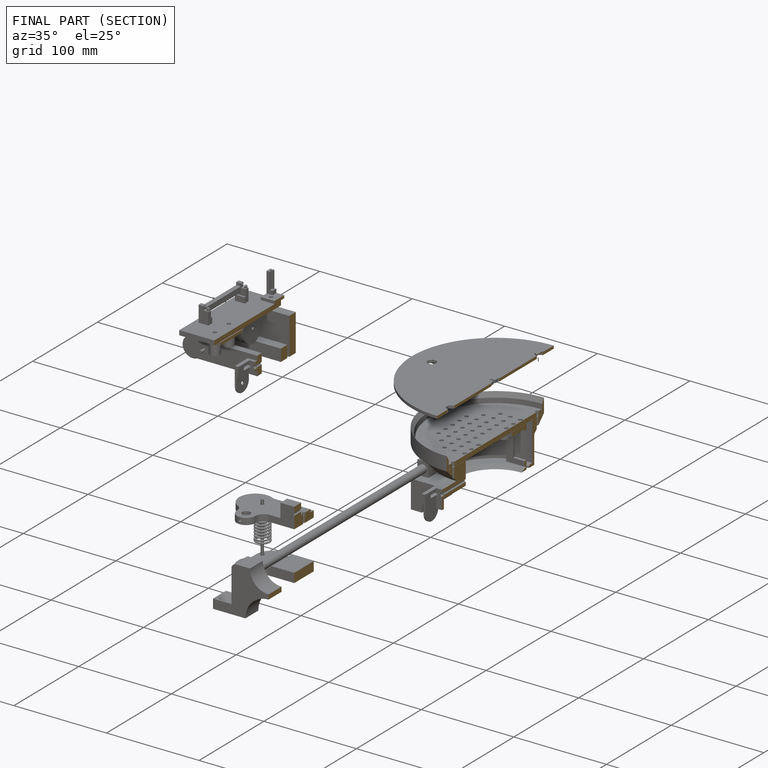
[diagram: finished part — half-section view (interior)]
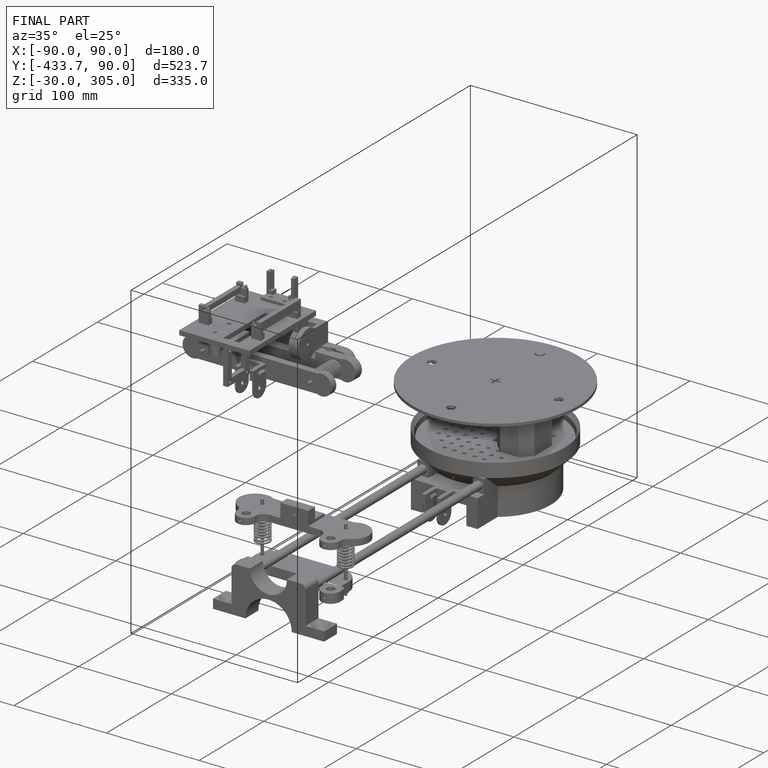
[diagram: finished part — iso view with bounding-box wireframe]
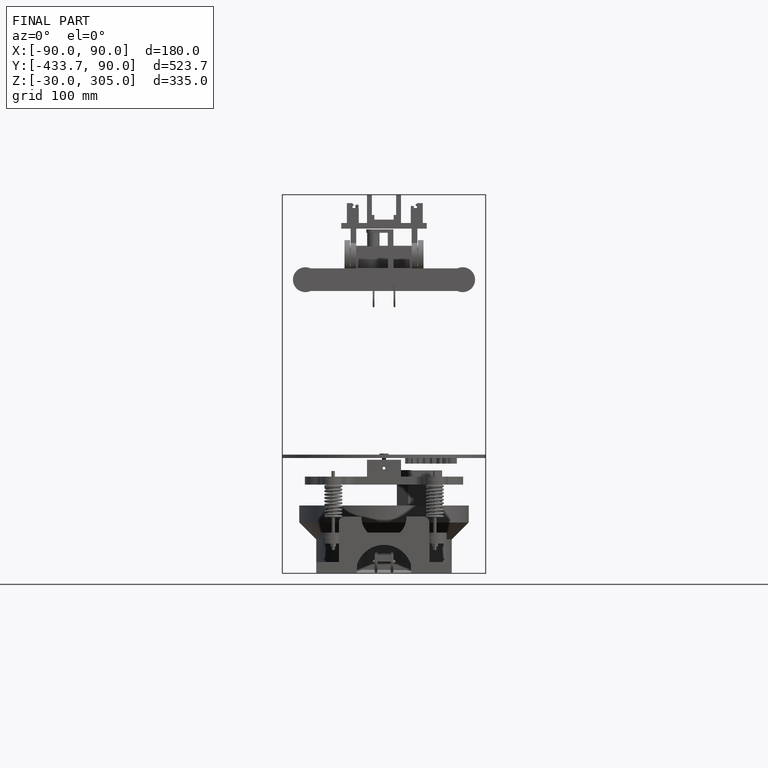
[diagram: finished part — front view with bounding-box wireframe]
